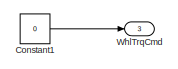
[diagram: root canvas - part 1/3, top right region]
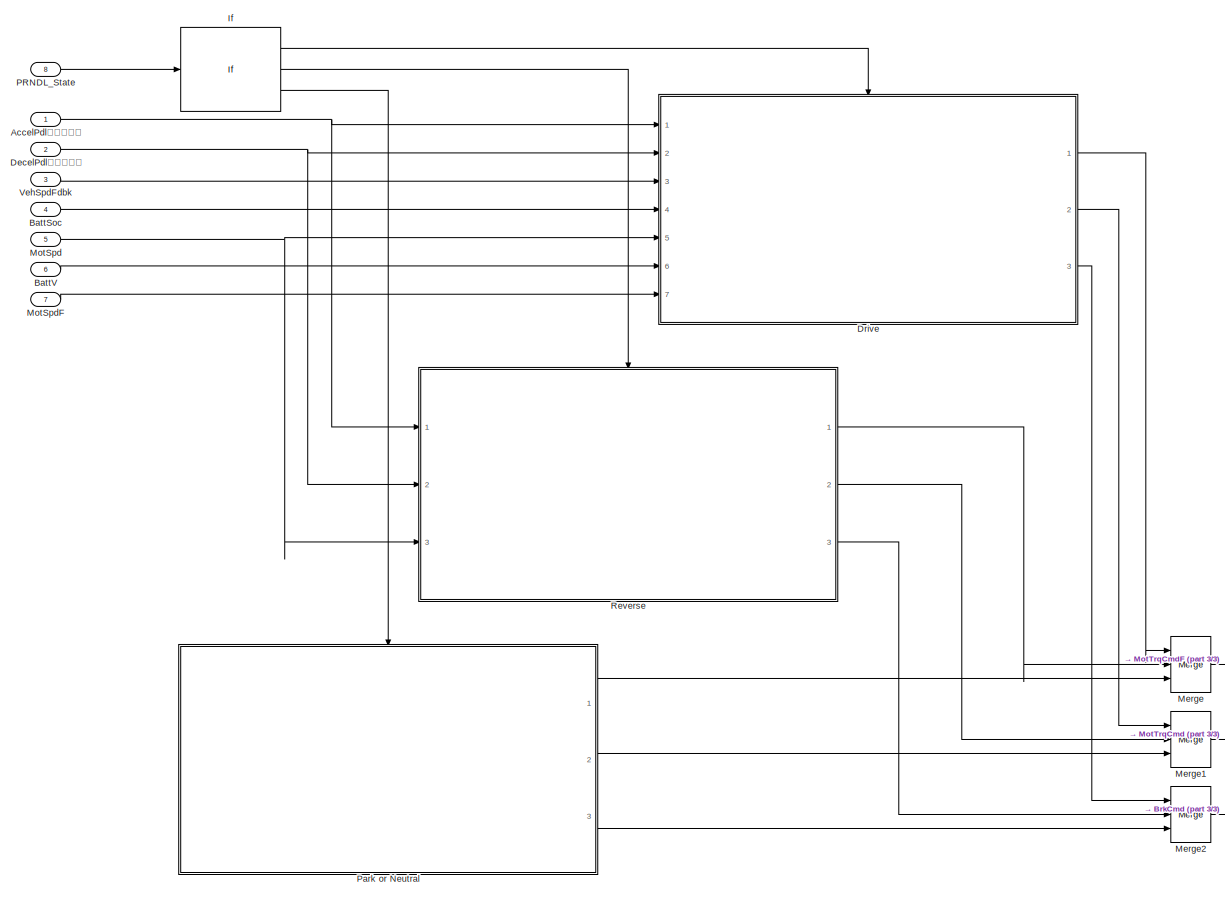
[diagram: root canvas - part 2/3, most of the canvas]
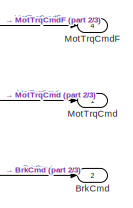
[diagram: root canvas - part 3/3, bottom right region]
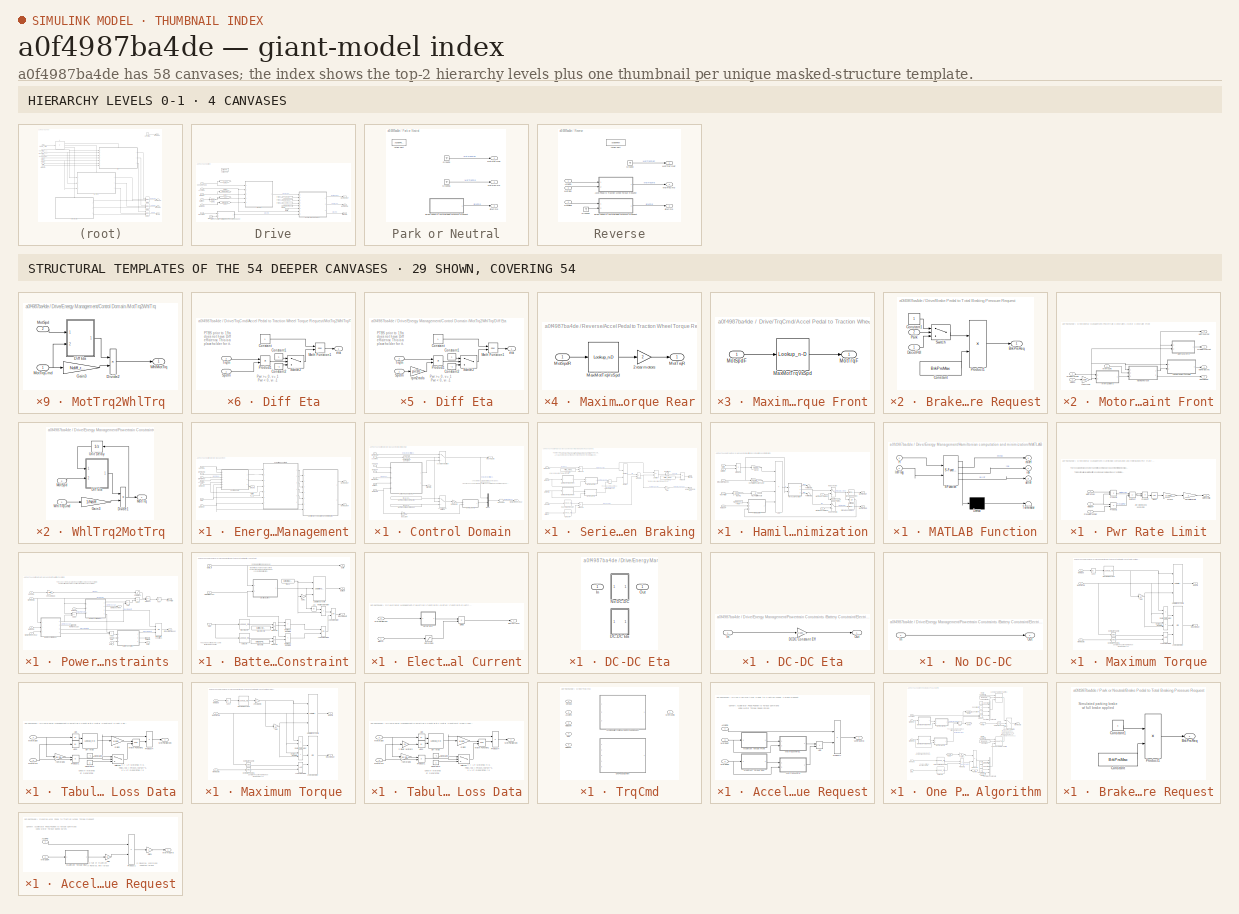
[diagram: thumbnail index - top-2 hierarchy levels (4 canvases) + 29 structural-template representatives of the remaining 54 canvases]
MODEL slx_a0f4987ba4de
KIND model
CONFIG AbsTol = auto
CONFIG EnableMultiTasking = on
CONFIG FixedStep = 0.01
CONFIG MaxStep = auto
CONFIG MinStep = auto
CONFIG RelTol = 1e-3
CONFIG SampleTimeConstraint = Unconstrained
CONFIG Solver = FixedStepDiscrete
CONFIG SolverName = FixedStepDiscrete
CONFIG StartTime = 0
CONFIG StopTime = inf
BLOCK [Inport] AccelPdl（加速器）
  OutDataTypeStr = double
  PortDimensions = 1
  SampleTime = [0.01,0]
  SamplingMode = Sample based
  SignalType = real
BLOCK [Inport] BattSoc
  OutDataTypeStr = double
  Port = 4
  PortDimensions = 1
  SampleTime = [0.01,0]
  SamplingMode = Sample based
  SignalType = real
BLOCK [Inport] BattV
  OutDataTypeStr = double
  Port = 6
  PortDimensions = 1
  SampleTime = [0.01,0]
  SamplingMode = Sample based
  SignalType = real
BLOCK [Outport] BrkCmd
  OutDataTypeStr = double
  Port = 2
  PortDimensions = 1
  SampleTime = [0.01,0]
  SamplingMode = Sample based
  SignalType = real
  VectorParamsAs1DForOutWhenUnconnected = off
BLOCK [Constant] Constant1
  SampleTime = 0.01
  Value = 0
BLOCK [Inport] DecelPdl（减速器）
  OutDataTypeStr = double
  Port = 2
  PortDimensions = 1
  SampleTime = [0.01,0]
  SamplingMode = Sample based
  SignalType = real
BLOCK [SubSystem] Drive
  Ports = [7, 3, 0, 0, 0, 0, 0, 1]
  RequestExecContextInheritance = off
  TreatAsAtomicUnit = on
BLOCK [Inport] Drive/AccelPdl
  OutDataTypeStr = double
  PortDimensions = 1
  SampleTime = [0.01,0]
  SamplingMode = Sample based
  SignalType = real
BLOCK [ActionPort] Drive/Action Port
  ActionPortLabel = if(u1 >= 1)
  InitializeStates = reset
BLOCK [Inport] Drive/BattSoc
  OutDataTypeStr = double
  Port = 4
  PortDimensions = 1
  SampleTime = [0.01,0]
  SamplingMode = Sample based
  SignalType = real
BLOCK [Inport] Drive/BattV
  OutDataTypeStr = double
  Port = 6
  PortDimensions = 1
  SampleTime = [0.01,0]
  SamplingMode = Sample based
  SignalType = real
BLOCK [SubSystem] Drive/Brake Pedal to Total Braking Pressure Request
  Ports = [2, 1]
  RequestExecContextInheritance = off
BLOCK [Outport] Drive/Brake Pedal to Total Braking Pressure Request/BrkPrsReq
  VectorParamsAs1DForOutWhenUnconnected = off
BLOCK [Constant] Drive/Brake Pedal to Total Braking Pressure Request/Constant
  Value = BrkPrsMax
BLOCK [Constant] Drive/Brake Pedal to Total Braking Pressure Request/Constant1
BLOCK [Inport] Drive/Brake Pedal to Total Braking Pressure Request/DecelPdl
BLOCK [Inport] Drive/Brake Pedal to Total Braking Pressure Request/Park
  Port = 2
BLOCK [Product] Drive/Brake Pedal to Total Braking Pressure Request/Product1
  Ports = [2, 1]
BLOCK [Switch] Drive/Brake Pedal to Total Braking Pressure Request/Switch
  Criteria = u2 > Threshold
  InputSameDT = off
  SaturateOnIntegerOverflow = off
BLOCK [Outport] Drive/BrkCmd
  OutDataTypeStr = double
  Port = 3
  PortDimensions = 1
  SampleTime = [0.01,0]
  SamplingMode = Sample based
  SignalType = real
  VectorParamsAs1DForOutWhenUnconnected = off
BLOCK [Inport] Drive/DecelPdl
  OutDataTypeStr = double
  Port = 2
  PortDimensions = 1
  SampleTime = [0.01,0]
  SamplingMode = Sample based
  SignalType = real
BLOCK [SubSystem] Drive/Energy Management
  InitFcn = [~] =  autosharedeval('1');
  Ports = [8, 3]
  RequestExecContextInheritance = off
  TreatAsAtomicUnit = on
BLOCK [Inport] Drive/Energy Management/AccelPdl
  Port = 7
BLOCK [Inport] Drive/Energy Management/BattV
  Port = 6
BLOCK [Outport] Drive/Energy Management/BrkCmd
  Port = 3
  VectorParamsAs1DForOutWhenUnconnected = off
BLOCK [Inport] Drive/Energy Management/BrkPrsReq 
  Port = 8
BLOCK [SubSystem] Drive/Energy Management/Control Domain 
  InitFcn = [~] =  autosharedeval('1');
  Ports = [7, 3]
  RequestExecContextInheritance = off
BLOCK [Gain] Drive/Energy Management/Control Domain /2 rear motors
  Gain = 2
BLOCK [Switch] Drive/Energy Management/Control Domain /Accel Decel Switch
  Criteria = u2 > Threshold
  InputSameDT = off
  SaturateOnIntegerOverflow = off
BLOCK [Switch] Drive/Energy Management/Control Domain /Accel Decel Switch1
  Criteria = u2 > Threshold
  InputSameDT = off
  SaturateOnIntegerOverflow = off
BLOCK [Inport] Drive/Energy Management/Control Domain /AccelPdl
  Port = 4
BLOCK [Inport] Drive/Energy Management/Control Domain /BattSoc
  Port = 6
BLOCK [Outport] Drive/Energy Management/Control Domain /BrkCmd
  Port = 3
  VectorParamsAs1DForOutWhenUnconnected = off
BLOCK [Inport] Drive/Energy Management/Control Domain /BrkPrsReq 
  Port = 3
BLOCK [Reference] Drive/Energy Management/Control Domain /Compare To Constant  REF=simulink/Logic and Bit
Operations/Compare
To Constant
  Ports = [1, 1]
  SourceBlock = simulink/Logic and Bit\nOperations/Compare\nTo Constant
  SourceProductBaseCode = SL
  SourceType = Compare To Constant
BLOCK [Inport] Drive/Energy Management/Control Domain /MotSpdF
  Port = 7
BLOCK [Inport] Drive/Energy Management/Control Domain /MotSpdR
  Port = 5
BLOCK [Constant] Drive/Energy Management/Control Domain /MotTrq Control Vector Regen
  Value = linspace( -max(T_t_EV_rear), 0, Ngrid)
BLOCK [Constant] Drive/Energy Management/Control Domain /MotTrq Control Vector Traction
  Value = linspace(0, max(T_t_EV_rear), Ngrid)
BLOCK [SubSystem] Drive/Energy Management/Control Domain /MotTrq2WhlTrq
  Ports = [2, 1]
  RequestExecContextInheritance = off
  VariantControl = 3
BLOCK [SubSystem] Drive/Energy Management/Control Domain /MotTrq2WhlTrq/Diff Eta
  Ports = [2, 1]
  RequestExecContextInheritance = off
BLOCK [Constant] Drive/Energy Management/Control Domain /MotTrq2WhlTrq/Diff Eta/Constant
BLOCK [Constant] Drive/Energy Management/Control Domain /MotTrq2WhlTrq/Diff Eta/Constant1
  SampleTime = -1
BLOCK [Constant] Drive/Energy Management/Control Domain /MotTrq2WhlTrq/Diff Eta/Constant2
  SampleTime = -1
  Value = -1
BLOCK [Math] Drive/Energy Management/Control Domain /MotTrq2WhlTrq/Diff Eta/Math Function1
  Operator = pow
  OutputSignalType = real
  Ports = [2, 1]
  SignedPower = on
BLOCK [Product] Drive/Energy Management/Control Domain /MotTrq2WhlTrq/Diff Eta/Product1
  Ports = [2, 1]
BLOCK [Inport] Drive/Energy Management/Control Domain /MotTrq2WhlTrq/Diff Eta/SpdIn
BLOCK [Switch] Drive/Energy Management/Control Domain /MotTrq2WhlTrq/Diff Eta/Switch2
  InputSameDT = off
  SaturateOnIntegerOverflow = off
BLOCK [Inport] Drive/Energy Management/Control Domain /MotTrq2WhlTrq/Diff Eta/TrqIn
  Port = 2
BLOCK [Outport] Drive/Energy Management/Control Domain /MotTrq2WhlTrq/Diff Eta/eta
  VectorParamsAs1DForOutWhenUnconnected = off
BLOCK [Gain] Drive/Energy Management/Control Domain /MotTrq2WhlTrq/Diff Eta/rpm2rads
  Gain = pi/30
BLOCK [Product] Drive/Energy Management/Control Domain /MotTrq2WhlTrq/Divide2
  Inputs = **
  Ports = [2, 1]
BLOCK [Gain] Drive/Energy Management/Control Domain /MotTrq2WhlTrq/Gain3
  Gain = Ndiff_rear
BLOCK [Inport] Drive/Energy Management/Control Domain /MotTrq2WhlTrq/MotSpd
  Port = 2
BLOCK [Inport] Drive/Energy Management/Control Domain /MotTrq2WhlTrq/MotTrqCmd
BLOCK [Outport] Drive/Energy Management/Control Domain /MotTrq2WhlTrq/WhlMotTrq
  VectorParamsAs1DForOutWhenUnconnected = off
BLOCK [Mux] Drive/Energy Management/Control Domain /Mux1
  DisplayOption = bar
  Inputs = 2
  Ports = [2, 1]
BLOCK [Reshape] Drive/Energy Management/Control Domain /Reshape
  Ports = [1, 1]
BLOCK [SubSystem] Drive/Energy Management/Control Domain /Series Regen Braking
  InitFcn = %[~]=autosharedicon('autolibutils',gcb,0);
  Ports = [5, 2]
  RequestExecContextInheritance = off
  VariantControl = Variant
BLOCK [Outport] Drive/Energy Management/Control Domain /Series Regen Braking/ BrkCmd
  Port = 2
  VectorParamsAs1DForOutWhenUnconnected = off
BLOCK [Outport] Drive/Energy Management/Control Domain /Series Regen Braking/ WhlMotTrqCmdRegen
  VectorParamsAs1DForOutWhenUnconnected = off
BLOCK [Sum] Drive/Energy Management/Control Domain /Series Regen Braking/Add
  IconShape = rectangular
  Ports = [2, 1]
BLOCK [Inport] Drive/Energy Management/Control Domain /Series Regen Braking/BattSoc
  Port = 4
BLOCK [Inport] Drive/Energy Management/Control Domain /Series Regen Braking/BrkPrsReq 
  Port = 3
BLOCK [Lookup_n-D] Drive/Energy Management/Control Domain /Series Regen Braking/ChrgLmt
  BeginIndexSearchUsingPreviousIndexResult = on
  BreakpointsForDimension1 = SOC_bpt
  ExtrapMethod = Clip
  InternalRulePriority = Speed
  NumberOfTableDimensions = 1
  Ports = [1, 1]
  RndMeth = Simplest
  Table = ChrgLmt_bpt
  UseLastTableValue = on
BLOCK [Constant] Drive/Energy Management/Control Domain /Series Regen Braking/Constant
  Value = 4*(mu_kinetic*pi*disk_abore^2*Rm*num_pads/4)
BLOCK [Constant] Drive/Energy Management/Control Domain /Series Regen Braking/Constant1
  Value = 4*(mu_kinetic*pi*disk_abore^2*Rm*num_pads/4)
BLOCK [Gain] Drive/Energy Management/Control Domain /Series Regen Braking/Gain
  Gain = -1
BLOCK [SubSystem] Drive/Energy Management/Control Domain /Series Regen Braking/Maximum Torque Front
  Ports = [1, 1]
  RequestExecContextInheritance = off
BLOCK [Lookup_n-D] Drive/Energy Management/Control Domain /Series Regen Braking/Maximum Torque Front/MaxMotTrqVsSpd
  BeginIndexSearchUsingPreviousIndexResult = on
  BreakpointsForDimension1 = w_eff_bp_EV_front
  ExtrapMethod = Clip
  InternalRulePriority = Speed
  NumberOfTableDimensions = 1
  OutDataTypeStr = Inherit: Inherit from 'Table data'
  Ports = [1, 1]
  RndMeth = Simplest
  Table = T_t_EV_front
  UseLastTableValue = on
BLOCK [Inport] Drive/Energy Management/Control Domain /Series Regen Braking/Maximum Torque Front/MotSpdF
BLOCK [Outport] Drive/Energy Management/Control Domain /Series Regen Braking/Maximum Torque Front/MotTrqF
  VectorParamsAs1DForOutWhenUnconnected = off
BLOCK [SubSystem] Drive/Energy Management/Control Domain /Series Regen Braking/Maximum Torque Rear
  Ports = [1, 1]
  RequestExecContextInheritance = off
BLOCK [Gain] Drive/Energy Management/Control Domain /Series Regen Braking/Maximum Torque Rear/2 rear motors
  Gain = 2
BLOCK [Lookup_n-D] Drive/Energy Management/Control Domain /Series Regen Braking/Maximum Torque Rear/MaxMotTrqVsSpd
  BeginIndexSearchUsingPreviousIndexResult = on
  BreakpointsForDimension1 = w_eff_bp_EV_rear
  ExtrapMethod = Clip
  InternalRulePriority = Speed
  NumberOfTableDimensions = 1
  OutDataTypeStr = Inherit: Inherit from 'Table data'
  Ports = [1, 1]
  RndMeth = Simplest
  Table = T_t_EV_rear
  UseLastTableValue = on
BLOCK [Inport] Drive/Energy Management/Control Domain /Series Regen Braking/Maximum Torque Rear/MotSpdR
BLOCK [Outport] Drive/Energy Management/Control Domain /Series Regen Braking/Maximum Torque Rear/MotTrqR
  VectorParamsAs1DForOutWhenUnconnected = off
BLOCK [MinMax] Drive/Energy Management/Control Domain /Series Regen Braking/MinMax
  Inputs = 2
  Ports = [2, 1]
BLOCK [Inport] Drive/Energy Management/Control Domain /Series Regen Braking/MotSpdF
  Port = 2
BLOCK [Inport] Drive/Energy Management/Control Domain /Series Regen Braking/MotSpdR
  Port = 5
BLOCK [SubSystem] Drive/Energy Management/Control Domain /Series Regen Braking/MotTrq2WhlTrq
  Ports = [2, 1]
  RequestExecContextInheritance = off
  VariantControl = 3
BLOCK [SubSystem] Drive/Energy Management/Control Domain /Series Regen Braking/MotTrq2WhlTrq/Diff Eta
  Ports = [2, 1]
  RequestExecContextInheritance = off
BLOCK [Constant] Drive/Energy Management/Control Domain /Series Regen Braking/MotTrq2WhlTrq/Diff Eta/Constant
BLOCK [Constant] Drive/Energy Management/Control Domain /Series Regen Braking/MotTrq2WhlTrq/Diff Eta/Constant1
  SampleTime = -1
BLOCK [Constant] Drive/Energy Management/Control Domain /Series Regen Braking/MotTrq2WhlTrq/Diff Eta/Constant2
  SampleTime = -1
  Value = -1
BLOCK [Math] Drive/Energy Management/Control Domain /Series Regen Braking/MotTrq2WhlTrq/Diff Eta/Math Function1
  Operator = pow
  OutputSignalType = real
  Ports = [2, 1]
  SignedPower = on
BLOCK [Product] Drive/Energy Management/Control Domain /Series Regen Braking/MotTrq2WhlTrq/Diff Eta/Product1
  Ports = [2, 1]
BLOCK [Inport] Drive/Energy Management/Control Domain /Series Regen Braking/MotTrq2WhlTrq/Diff Eta/SpdIn
BLOCK [Switch] Drive/Energy Management/Control Domain /Series Regen Braking/MotTrq2WhlTrq/Diff Eta/Switch2
  InputSameDT = off
  SaturateOnIntegerOverflow = off
BLOCK [Inport] Drive/Energy Management/Control Domain /Series Regen Braking/MotTrq2WhlTrq/Diff Eta/TrqIn
  Port = 2
BLOCK [Outport] Drive/Energy Management/Control Domain /Series Regen Braking/MotTrq2WhlTrq/Diff Eta/eta
  VectorParamsAs1DForOutWhenUnconnected = off
BLOCK [Product] Drive/Energy Management/Control Domain /Series Regen Braking/MotTrq2WhlTrq/Divide2
  Inputs = **
  Ports = [2, 1]
BLOCK [Gain] Drive/Energy Management/Control Domain /Series Regen Braking/MotTrq2WhlTrq/Gain3
  Gain = Ndiff_rear
BLOCK [Inport] Drive/Energy Management/Control Domain /Series Regen Braking/MotTrq2WhlTrq/MotSpd
  Port = 2
BLOCK [Inport] Drive/Energy Management/Control Domain /Series Regen Braking/MotTrq2WhlTrq/MotTrqCmd
BLOCK [Outport] Drive/Energy Management/Control Domain /Series Regen Braking/MotTrq2WhlTrq/WhlMotTrq
  VectorParamsAs1DForOutWhenUnconnected = off
BLOCK [SubSystem] Drive/Energy Management/Control Domain /Series Regen Braking/MotTrq2WhlTrq1
  Ports = [2, 1]
  RequestExecContextInheritance = off
  VariantControl = 3
BLOCK [SubSystem] Drive/Energy Management/Control Domain /Series Regen Braking/MotTrq2WhlTrq1/Diff Eta
  Ports = [2, 1]
  RequestExecContextInheritance = off
BLOCK [Constant] Drive/Energy Management/Control Domain /Series Regen Braking/MotTrq2WhlTrq1/Diff Eta/Constant
BLOCK [Constant] Drive/Energy Management/Control Domain /Series Regen Braking/MotTrq2WhlTrq1/Diff Eta/Constant1
  SampleTime = -1
BLOCK [Constant] Drive/Energy Management/Control Domain /Series Regen Braking/MotTrq2WhlTrq1/Diff Eta/Constant2
  SampleTime = -1
  Value = -1
BLOCK [Math] Drive/Energy Management/Control Domain /Series Regen Braking/MotTrq2WhlTrq1/Diff Eta/Math Function1
  Operator = pow
  OutputSignalType = real
  Ports = [2, 1]
  SignedPower = on
BLOCK [Product] Drive/Energy Management/Control Domain /Series Regen Braking/MotTrq2WhlTrq1/Diff Eta/Product1
  Ports = [2, 1]
BLOCK [Inport] Drive/Energy Management/Control Domain /Series Regen Braking/MotTrq2WhlTrq1/Diff Eta/SpdIn
BLOCK [Switch] Drive/Energy Management/Control Domain /Series Regen Braking/MotTrq2WhlTrq1/Diff Eta/Switch2
  InputSameDT = off
  SaturateOnIntegerOverflow = off
BLOCK [Inport] Drive/Energy Management/Control Domain /Series Regen Braking/MotTrq2WhlTrq1/Diff Eta/TrqIn
  Port = 2
BLOCK [Outport] Drive/Energy Management/Control Domain /Series Regen Braking/MotTrq2WhlTrq1/Diff Eta/eta
  VectorParamsAs1DForOutWhenUnconnected = off
BLOCK [Product] Drive/Energy Management/Control Domain /Series Regen Braking/MotTrq2WhlTrq1/Divide2
  Inputs = **
  Ports = [2, 1]
BLOCK [Gain] Drive/Energy Management/Control Domain /Series Regen Braking/MotTrq2WhlTrq1/Gain3
  Gain = Ndiff_front
BLOCK [Inport] Drive/Energy Management/Control Domain /Series Regen Braking/MotTrq2WhlTrq1/MotSpd
  Port = 2
BLOCK [Inport] Drive/Energy Management/Control Domain /Series Regen Braking/MotTrq2WhlTrq1/MotTrqCmd
BLOCK [Outport] Drive/Energy Management/Control Domain /Series Regen Braking/MotTrq2WhlTrq1/WhlMotTrq
  VectorParamsAs1DForOutWhenUnconnected = off
BLOCK [Saturate] Drive/Energy Management/Control Domain /Series Regen Braking/Negative 5
  LowerLimit = 0
  UpperLimit = inf
BLOCK [Product] Drive/Energy Management/Control Domain /Series Regen Braking/Product1
  Ports = [2, 1]
BLOCK [Product] Drive/Energy Management/Control Domain /Series Regen Braking/Product2
  Ports = [2, 1]
BLOCK [Product] Drive/Energy Management/Control Domain /Series Regen Braking/Product3
  Ports = [2, 1]
BLOCK [Product] Drive/Energy Management/Control Domain /Series Regen Braking/Product4
  Inputs = */
  Ports = [2, 1]
BLOCK [Lookup_n-D] Drive/Energy Management/Control Domain /Series Regen Braking/RegenBrakingCutoff
  BeginIndexSearchUsingPreviousIndexResult = on
  BreakpointsForDimension1 = RegenBrkSpd_bpt
  ExtrapMethod = Clip
  InternalRulePriority = Speed
  NumberOfTableDimensions = 1
  Ports = [1, 1]
  RndMeth = Simplest
  Table = RegenBrkCutOff
  UseLastTableValue = on
BLOCK [Sum] Drive/Energy Management/Control Domain /Series Regen Braking/Subtract
  IconShape = rectangular
  Inputs = +-
  Ports = [2, 1]
BLOCK [Inport] Drive/Energy Management/Control Domain /Series Regen Braking/VehSpd
BLOCK [Inport] Drive/Energy Management/Control Domain /VehSpd
BLOCK [Outport] Drive/Energy Management/Control Domain /WHLTQCMD
  VectorParamsAs1DForOutWhenUnconnected = off
BLOCK [Outport] Drive/Energy Management/Control Domain /WhlMotTrqVecRear
  Port = 2
  VectorParamsAs1DForOutWhenUnconnected = off
BLOCK [Inport] Drive/Energy Management/Control Domain /WhlTrqCmd
  Port = 2
BLOCK [Gain] Drive/Energy Management/Control Domain /rads2rpm
  Gain = 30/pi
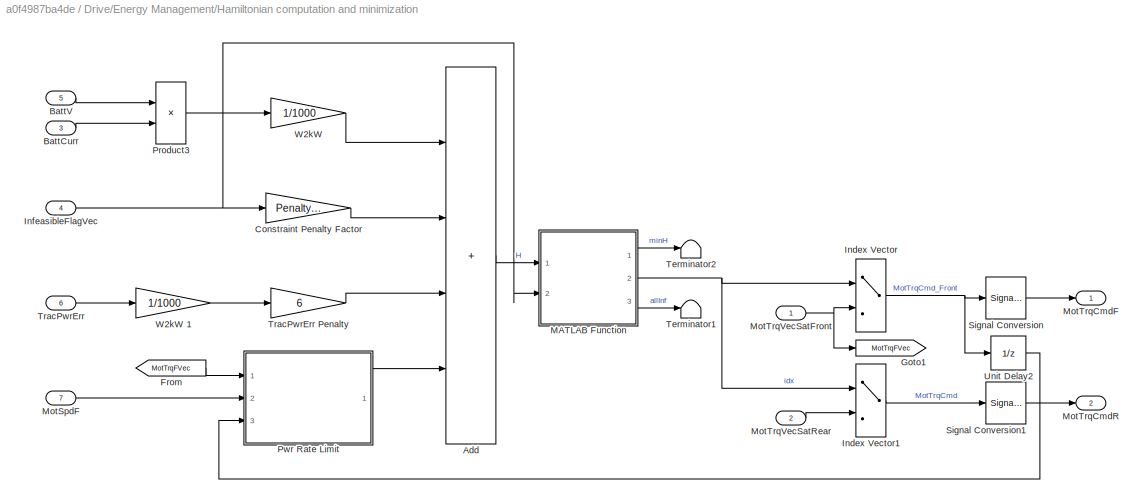
BLOCK [SubSystem] Drive/Energy Management/Hamiltonian computation and minimization
  InitFcn = [~] =  autosharedeval('1');
  Ports = [7, 2]
  RequestExecContextInheritance = off
BLOCK [Sum] Drive/Energy Management/Hamiltonian computation and minimization/Add
  IconShape = rectangular
  Inputs = ++++
  Ports = [4, 1]
BLOCK [Inport] Drive/Energy Management/Hamiltonian computation and minimization/BattCurr
  Port = 3
BLOCK [Inport] Drive/Energy Management/Hamiltonian computation and minimization/BattV
  Port = 5
BLOCK [Gain] Drive/Energy Management/Hamiltonian computation and minimization/Constraint Penalty Factor
  Gain = PenaltyFctr
BLOCK [From] Drive/Energy Management/Hamiltonian computation and minimization/From
  GotoTag = MotTrqFVec
BLOCK [Goto] Drive/Energy Management/Hamiltonian computation and minimization/Goto1
  GotoTag = MotTrqFVec
BLOCK [MultiPortSwitch] Drive/Energy Management/Hamiltonian computation and minimization/Index Vector
  InputSameDT = off
  Inputs = 1
  Ports = [2, 1]
  SaturateOnIntegerOverflow = off
BLOCK [MultiPortSwitch] Drive/Energy Management/Hamiltonian computation and minimization/Index Vector1
  InputSameDT = off
  Inputs = 1
  Ports = [2, 1]
  SaturateOnIntegerOverflow = off
BLOCK [Inport] Drive/Energy Management/Hamiltonian computation and minimization/InfeasibleFlagVec
  Port = 4
BLOCK [SubSystem] Drive/Energy Management/Hamiltonian computation and minimization/MATLAB Function
  ErrorFcn = Stateflow.Translate.translate
  InitFcn = [~] =  autosharedeval('1');
  PermitHierarchicalResolution = ExplicitOnly
  Ports = [2, 3]
  RequestExecContextInheritance = off
  SFBlockType = MATLAB Function
  TreatAsAtomicUnit = on
BLOCK [Demux] Drive/Energy Management/Hamiltonian computation and minimization/MATLAB Function/ Demux 
  Outputs = 1
  Ports = [1, 1]
BLOCK [S-Function] Drive/Energy Management/Hamiltonian computation and minimization/MATLAB Function/ SFunction 
  EnableBusSupport = on
  FunctionName = sf_sfun
  PortCounts = [2 4]
  Ports = [2, 4]
  SFcnIsStateOwnerBlock = off
  SFunctionDeploymentMode = off
  Tag = Stateflow S-Function 1
BLOCK [Terminator] Drive/Energy Management/Hamiltonian computation and minimization/MATLAB Function/ Terminator 
BLOCK [Inport] Drive/Energy Management/Hamiltonian computation and minimization/MATLAB Function/H
BLOCK [Inport] Drive/Energy Management/Hamiltonian computation and minimization/MATLAB Function/InfFlag
  Port = 2
BLOCK [Outport] Drive/Energy Management/Hamiltonian computation and minimization/MATLAB Function/allInf
  Port = 3
BLOCK [Outport] Drive/Energy Management/Hamiltonian computation and minimization/MATLAB Function/idx
  Port = 2
  VectorParamsAs1DForOutWhenUnconnected = off
BLOCK [Outport] Drive/Energy Management/Hamiltonian computation and minimization/MATLAB Function/minH
  VectorParamsAs1DForOutWhenUnconnected = off
BLOCK [Inport] Drive/Energy Management/Hamiltonian computation and minimization/MotSpdF
  Port = 7
BLOCK [Outport] Drive/Energy Management/Hamiltonian computation and minimization/MotTrqCmdF
  VectorParamsAs1DForOutWhenUnconnected = off
BLOCK [Outport] Drive/Energy Management/Hamiltonian computation and minimization/MotTrqCmdR
  Port = 2
  VectorParamsAs1DForOutWhenUnconnected = off
BLOCK [Inport] Drive/Energy Management/Hamiltonian computation and minimization/MotTrqVecSatFront
BLOCK [Inport] Drive/Energy Management/Hamiltonian computation and minimization/MotTrqVecSatRear
  Port = 2
BLOCK [Product] Drive/Energy Management/Hamiltonian computation and minimization/Product3
  Ports = [2, 1]
BLOCK [SubSystem] Drive/Energy Management/Hamiltonian computation and minimization/Pwr Rate Limit
  InitFcn = [~] =  autosharedeval('1');
  Ports = [3, 1]
  RequestExecContextInheritance = off
BLOCK [Outport] Drive/Energy Management/Hamiltonian computation and minimization/Pwr Rate Limit/MotPwrDelta
  VectorParamsAs1DForOutWhenUnconnected = off
BLOCK [Inport] Drive/Energy Management/Hamiltonian computation and minimization/Pwr Rate Limit/MotSpdF
  Port = 2
BLOCK [Inport] Drive/Energy Management/Hamiltonian computation and minimization/Pwr Rate Limit/MotTrqFVec
BLOCK [Inport] Drive/Energy Management/Hamiltonian computation and minimization/Pwr Rate Limit/PrevMotTrqCmdF
  Port = 3
BLOCK [Product] Drive/Energy Management/Hamiltonian computation and minimization/Pwr Rate Limit/Product1
  Ports = [2, 1]
BLOCK [Product] Drive/Energy Management/Hamiltonian computation and minimization/Pwr Rate Limit/Product6
  Ports = [2, 1]
BLOCK [Product] Drive/Energy Management/Hamiltonian computation and minimization/Pwr Rate Limit/Product7
  Ports = [2, 1]
BLOCK [Gain] Drive/Energy Management/Hamiltonian computation and minimization/Pwr Rate Limit/PwrDelta Penalty
  Gain = 2
BLOCK [Sqrt] Drive/Energy Management/Hamiltonian computation and minimization/Pwr Rate Limit/Sqrt1
BLOCK [Sum] Drive/Energy Management/Hamiltonian computation and minimization/Pwr Rate Limit/Subtract
  IconShape = rectangular
  Inputs = +-
  Ports = [2, 1]
BLOCK [Gain] Drive/Energy Management/Hamiltonian computation and minimization/Pwr Rate Limit/W2kW
  Gain = 1/1000
BLOCK [SignalConversion] Drive/Energy Management/Hamiltonian computation and minimization/Signal Conversion
  OverrideOpt = off
BLOCK [SignalConversion] Drive/Energy Management/Hamiltonian computation and minimization/Signal Conversion1
  OverrideOpt = off
BLOCK [Terminator] Drive/Energy Management/Hamiltonian computation and minimization/Terminator1
BLOCK [Terminator] Drive/Energy Management/Hamiltonian computation and minimization/Terminator2
BLOCK [Inport] Drive/Energy Management/Hamiltonian computation and minimization/TracPwrErr
  Port = 6
BLOCK [Gain] Drive/Energy Management/Hamiltonian computation and minimization/TracPwrErr Penalty
  Gain = 6
BLOCK [UnitDelay] Drive/Energy Management/Hamiltonian computation and minimization/Unit Delay2
  HasFrameUpgradeWarning = on
  SampleTime = -1
BLOCK [Gain] Drive/Energy Management/Hamiltonian computation and minimization/W2kW 
  Gain = 1/1000
BLOCK [Gain] Drive/Energy Management/Hamiltonian computation and minimization/W2kW 1
  Gain = 1/1000
BLOCK [Inport] Drive/Energy Management/MotSpdF
  Port = 5
BLOCK [Inport] Drive/Energy Management/MotSpdR
  Port = 3
BLOCK [Outport] Drive/Energy Management/MotTrqCmdF
  InitialOutput = 0
  VectorParamsAs1DForOutWhenUnconnected = off
BLOCK [Outport] Drive/Energy Management/MotTrqCmdR
  InitialOutput = 0
  Port = 2
  VectorParamsAs1DForOutWhenUnconnected = off
BLOCK [SubSystem] Drive/Energy Management/Powertrain Constraints 
  InitFcn = [~] =  autosharedeval('1');
  Ports = [7, 6]
  RequestExecContextInheritance = off
BLOCK [Abs] Drive/Energy Management/Powertrain Constraints /Abs
  SaturateOnIntegerOverflow = off
BLOCK [Sum] Drive/Energy Management/Powertrain Constraints /Add
  IconShape = rectangular
  Ports = [2, 1]
BLOCK [Sum] Drive/Energy Management/Powertrain Constraints /Add1
  IconShape = rectangular
  Inputs = +-
  Ports = [2, 1]
BLOCK [Sum] Drive/Energy Management/Powertrain Constraints /Add2
  IconShape = rectangular
  Ports = [2, 1]
BLOCK [Sum] Drive/Energy Management/Powertrain Constraints /Add3
  IconShape = rectangular
  Inputs = +-
  Ports = [2, 1]
BLOCK [Outport] Drive/Energy Management/Powertrain Constraints /BattCurr
  Port = 3
  VectorParamsAs1DForOutWhenUnconnected = off
BLOCK [Outport] Drive/Energy Management/Powertrain Constraints /BattV
  Port = 5
  VectorParamsAs1DForOutWhenUnconnected = off
BLOCK [Inport] Drive/Energy Management/Powertrain Constraints /BattV_in
  Port = 5
BLOCK [SubSystem] Drive/Energy Management/Powertrain Constraints /Battery Constraint
  InitFcn = [~] =  autosharedeval('1');
  Ports = [3, 3]
  RequestExecContextInheritance = off
BLOCK [Abs] Drive/Energy Management/Powertrain Constraints /Battery Constraint/Abs
  SaturateOnIntegerOverflow = off
BLOCK [Outport] Drive/Energy Management/Powertrain Constraints /Battery Constraint/BattCurr
  Port = 2
  VectorParamsAs1DForOutWhenUnconnected = off
BLOCK [Outport] Drive/Energy Management/Powertrain Constraints /Battery Constraint/BattV
  Port = 3
  VectorParamsAs1DForOutWhenUnconnected = off
BLOCK [Inport] Drive/Energy Management/Powertrain Constraints /Battery Constraint/BattV_in
  Port = 3
BLOCK [Lookup_n-D] Drive/Energy Management/Powertrain Constraints /Battery Constraint/ChrgLmt
  BeginIndexSearchUsingPreviousIndexResult = on
  BreakpointsForDimension1 = SOC_bpt
  ExtrapMethod = Clip
  InternalRulePriority = Speed
  NumberOfTableDimensions = 1
  Ports = [1, 1]
  RndMeth = Simplest
  Table = ChrgLmt_bpt
  UseLastTableValue = on
BLOCK [Lookup_n-D] Drive/Energy Management/Powertrain Constraints /Battery Constraint/DischrgLmt
  BeginIndexSearchUsingPreviousIndexResult = on
  BreakpointsForDimension1 = SOC_bpt
  ExtrapMethod = Clip
  InternalRulePriority = Speed
  NumberOfTableDimensions = 1
  Ports = [1, 1]
  RndMeth = Simplest
  Table = DischrgLmt_bpt
  UseLastTableValue = on
BLOCK [SubSystem] Drive/Energy Management/Powertrain Constraints /Battery Constraint/Electrical Current
  Ports = [2, 1]
  RequestExecContextInheritance = off
BLOCK [Inport] Drive/Energy Management/Powertrain Constraints /Battery Constraint/Electrical Current/BattV
BLOCK [Outport] Drive/Energy Management/Powertrain Constraints /Battery Constraint/Electrical Current/BatteryAmp
  VectorParamsAs1DForOutWhenUnconnected = off
BLOCK [SubSystem] Drive/Energy Management/Powertrain Constraints /Battery Constraint/Electrical Current/DC-DC Eta
  LabelModeActiveChoice = 0
  Ports = [1, 1]
  RequestExecContextInheritance = off
  Variant = on
  VariantControl = Variant1
  VariantControlMode = Label
BLOCK [SubSystem] Drive/Energy Management/Powertrain Constraints /Battery Constraint/Electrical Current/DC-DC Eta/DC-DC Eta
  Ports = [1, 1]
  RequestExecContextInheritance = off
  VariantControl = 1
BLOCK [Gain] Drive/Energy Management/Powertrain Constraints /Battery Constraint/Electrical Current/DC-DC Eta/DC-DC Eta/DCDC Constant Eff
  Gain = 1+(100-eff)/100
BLOCK [Inport] Drive/Energy Management/Powertrain Constraints /Battery Constraint/Electrical Current/DC-DC Eta/DC-DC Eta/In
BLOCK [Outport] Drive/Energy Management/Powertrain Constraints /Battery Constraint/Electrical Current/DC-DC Eta/DC-DC Eta/Out
  VectorParamsAs1DForOutWhenUnconnected = off
BLOCK [Inport] Drive/Energy Management/Powertrain Constraints /Battery Constraint/Electrical Current/DC-DC Eta/In
BLOCK [SubSystem] Drive/Energy Management/Powertrain Constraints /Battery Constraint/Electrical Current/DC-DC Eta/No DC-DC
  Ports = [1, 1]
  RequestExecContextInheritance = off
  VariantControl = 0
BLOCK [Inport] Drive/Energy Management/Powertrain Constraints /Battery Constraint/Electrical Current/DC-DC Eta/No DC-DC/In
BLOCK [Outport] Drive/Energy Management/Powertrain Constraints /Battery Constraint/Electrical Current/DC-DC Eta/No DC-DC/Out
  VectorParamsAs1DForOutWhenUnconnected = off
BLOCK [Outport] Drive/Energy Management/Powertrain Constraints /Battery Constraint/Electrical Current/DC-DC Eta/Out
  VectorParamsAs1DForOutWhenUnconnected = off
BLOCK [Product] Drive/Energy Management/Powertrain Constraints /Battery Constraint/Electrical Current/Divide
  Inputs = */
  Ports = [2, 1]
BLOCK [Inport] Drive/Energy Management/Powertrain Constraints /Battery Constraint/Electrical Current/MotPwrElecVec
  Port = 2
BLOCK [Saturate] Drive/Energy Management/Powertrain Constraints /Battery Constraint/Electrical Current/Saturation
  LowerLimit = 0.0001
  UpperLimit = Inf
BLOCK [Gain] Drive/Energy Management/Powertrain Constraints /Battery Constraint/Gain1
  Gain = -1
BLOCK [Constant] Drive/Energy Management/Powertrain Constraints /Battery Constraint/Imax3
  Value = BattCurrMax_EV
BLOCK [Outport] Drive/Energy Management/Powertrain Constraints /Battery Constraint/InfeasibleBatt
  VectorParamsAs1DForOutWhenUnconnected = off
BLOCK [Logic] Drive/Energy Management/Powertrain Constraints /Battery Constraint/Logical Operator
  AllPortsSameDT = off
  Operator = OR
  OutDataTypeStr = boolean
  Ports = [2, 1]
BLOCK [Logic] Drive/Energy Management/Powertrain Constraints /Battery Constraint/Logical Operator1
  AllPortsSameDT = off
  Operator = OR
  OutDataTypeStr = boolean
  Ports = [2, 1]
BLOCK [Constant] Drive/Energy Management/Powertrain Constraints /Battery Constraint/MaxChrg
  Value = BattChrgPwrMax_EV
BLOCK [Constant] Drive/Energy Management/Powertrain Constraints /Battery Constraint/MaxDischrg
  Value = BattDischrgPwrMax_EV
BLOCK [Inport] Drive/Energy Management/Powertrain Constraints /Battery Constraint/MotPwrElecVec
BLOCK [Product] Drive/Energy Management/Powertrain Constraints /Battery Constraint/Product5
  Ports = [2, 1]
BLOCK [Product] Drive/Energy Management/Powertrain Constraints /Battery Constraint/Product6
  Ports = [2, 1]
BLOCK [RelationalOperator] Drive/Energy Management/Powertrain Constraints /Battery Constraint/Relational Operator
  InputSameDT = off
  Operator = >
  OutDataTypeStr = boolean
  Ports = [2, 1]
BLOCK [RelationalOperator] Drive/Energy Management/Powertrain Constraints /Battery Constraint/Relational Operator1
  InputSameDT = off
  Operator = >
  OutDataTypeStr = boolean
  Ports = [2, 1]
BLOCK [RelationalOperator] Drive/Energy Management/Powertrain Constraints /Battery Constraint/Relational Operator2
  InputSameDT = off
  Operator = <
  OutDataTypeStr = boolean
  Ports = [2, 1]
BLOCK [Inport] Drive/Energy Management/Powertrain Constraints /Battery Constraint/SOC
  Port = 2
BLOCK [Reference] Drive/Energy Management/Powertrain Constraints /Battery Constraint/Saturation Dynamic  REF=simulink/Discontinuities/Saturation
Dynamic
  Ports = [3, 1]
  SourceBlock = simulink/Discontinuities/Saturation\nDynamic
  SourceProductBaseCode = SL
  SourceType = Saturation Dynamic
BLOCK [Logic] Drive/Energy Management/Powertrain Constraints /Infeasible conditions
  AllPortsSameDT = off
  Inputs = 3
  Operator = OR
  OutDataTypeStr = boolean
  Ports = [3, 1]
BLOCK [Outport] Drive/Energy Management/Powertrain Constraints /InfeasibleFlagVec
  Port = 4
  VectorParamsAs1DForOutWhenUnconnected = off
BLOCK [Inport] Drive/Energy Management/Powertrain Constraints /MotSpdF
  Port = 7
BLOCK [Inport] Drive/Energy Management/Powertrain Constraints /MotSpdR
  Port = 4
BLOCK [Outport] Drive/Energy Management/Powertrain Constraints /MotTrqVecFront
  VectorParamsAs1DForOutWhenUnconnected = off
BLOCK [Outport] Drive/Energy Management/Powertrain Constraints /MotTrqVecSat
  Port = 2
  VectorParamsAs1DForOutWhenUnconnected = off
BLOCK [SubSystem] Drive/Energy Management/Powertrain Constraints /Motor Constraint Front
  InitFcn = [~] =  autosharedeval('1');
  Ports = [3, 4]
  RequestExecContextInheritance = off
BLOCK [Outport] Drive/Energy Management/Powertrain Constraints /Motor Constraint Front/InfeasibleMot
  Port = 3
  VectorParamsAs1DForOutWhenUnconnected = off
BLOCK [SubSystem] Drive/Energy Management/Powertrain Constraints /Motor Constraint Front/Maximum Torque
  Ports = [3, 2]
  RequestExecContextInheritance = off
BLOCK [Abs] Drive/Energy Management/Powertrain Constraints /Motor Constraint Front/Maximum Torque/Abs1
  SaturateOnIntegerOverflow = off
BLOCK [Reference] Drive/Energy Management/Powertrain Constraints /Motor Constraint Front/Maximum Torque/Compare To Zero  REF=simulink/Logic and Bit
Operations/Compare
To Zero
  Ports = [1, 1]
  SourceBlock = simulink/Logic and Bit\nOperations/Compare\nTo Zero
  SourceProductBaseCode = SL
  SourceType = Compare To Zero
BLOCK [Reference] Drive/Energy Management/Powertrain Constraints /Motor Constraint Front/Maximum Torque/Compare To Zero1  REF=simulink/Logic and Bit
Operations/Compare
To Zero
  Ports = [1, 1]
  SourceBlock = simulink/Logic and Bit\nOperations/Compare\nTo Zero
  SourceProductBaseCode = SL
  SourceType = Compare To Zero
BLOCK [Gain] Drive/Energy Management/Powertrain Constraints /Motor Constraint Front/Maximum Torque/Gain
  Gain = -1
BLOCK [Outport] Drive/Energy Management/Powertrain Constraints /Motor Constraint Front/Maximum Torque/InfeasibleMot
  Port = 2
  VectorParamsAs1DForOutWhenUnconnected = off
BLOCK [Logic] Drive/Energy Management/Powertrain Constraints /Motor Constraint Front/Maximum Torque/Logical Operator
  AllPortsSameDT = off
  Inputs = 3
  Operator = OR
  OutDataTypeStr = boolean
  Ports = [3, 1]
BLOCK [Logic] Drive/Energy Management/Powertrain Constraints /Motor Constraint Front/Maximum Torque/Logical Operator1
  AllPortsSameDT = off
  OutDataTypeStr = boolean
  Ports = [2, 1]
BLOCK [Lookup_n-D] Drive/Energy Management/Powertrain Constraints /Motor Constraint Front/Maximum Torque/MaxMotTrqVsSpd
  BeginIndexSearchUsingPreviousIndexResult = on
  BreakpointsForDimension1 = w_eff_bp_EV_front
  ExtrapMethod = Clip
  InternalRulePriority = Speed
  NumberOfTableDimensions = 1
  OutDataTypeStr = Inherit: Inherit from 'Table data'
  Ports = [1, 1]
  RndMeth = Simplest
  Table = T_t_EV_front
  UseLastTableValue = on
BLOCK [Inport] Drive/Energy Management/Powertrain Constraints /Motor Constraint Front/Maximum Torque/MotorSpd
BLOCK [Outport] Drive/Energy Management/Powertrain Constraints /Motor Constraint Front/Maximum Torque/MotorTrq
  VectorParamsAs1DForOutWhenUnconnected = off
BLOCK [Inport] Drive/Energy Management/Powertrain Constraints /Motor Constraint Front/Maximum Torque/MotorTrqCmd
  Port = 3
BLOCK [RelationalOperator] Drive/Energy Management/Powertrain Constraints /Motor Constraint Front/Maximum Torque/Relational Operator
  InputSameDT = off
  Operator = <
  OutDataTypeStr = boolean
  Ports = [2, 1]
  RndMeth = Simplest
BLOCK [RelationalOperator] Drive/Energy Management/Powertrain Constraints /Motor Constraint Front/Maximum Torque/Relational Operator1
  InputSameDT = off
  Operator = <
  OutDataTypeStr = boolean
  Ports = [2, 1]
  RndMeth = Simplest
BLOCK [Reference] Drive/Energy Management/Powertrain Constraints /Motor Constraint Front/Maximum Torque/Saturation Dynamic  REF=simulink/Discontinuities/Saturation
Dynamic
  Ports = [3, 1]
  SourceBlock = simulink/Discontinuities/Saturation\nDynamic
  SourceProductBaseCode = SL
  SourceType = Saturation Dynamic
BLOCK [Inport] Drive/Energy Management/Powertrain Constraints /Motor Constraint Front/Maximum Torque/WhlTrqCmd
  Port = 2
BLOCK [Outport] Drive/Energy Management/Powertrain Constraints /Motor Constraint Front/MotPwrElecVec
  Port = 4
  VectorParamsAs1DForOutWhenUnconnected = off
BLOCK [Inport] Drive/Energy Management/Powertrain Constraints /Motor Constraint Front/MotSpd
  Port = 2
BLOCK [SubSystem] Drive/Energy Management/Powertrain Constraints /Motor Constraint Front/MotTrq2WhlTrq
  Ports = [2, 1]
  RequestExecContextInheritance = off
  VariantControl = 3
BLOCK [SubSystem] Drive/Energy Management/Powertrain Constraints /Motor Constraint Front/MotTrq2WhlTrq/Diff Eta
  Ports = [2, 1]
  RequestExecContextInheritance = off
BLOCK [Constant] Drive/Energy Management/Powertrain Constraints /Motor Constraint Front/MotTrq2WhlTrq/Diff Eta/Constant
BLOCK [Constant] Drive/Energy Management/Powertrain Constraints /Motor Constraint Front/MotTrq2WhlTrq/Diff Eta/Constant1
  SampleTime = -1
BLOCK [Constant] Drive/Energy Management/Powertrain Constraints /Motor Constraint Front/MotTrq2WhlTrq/Diff Eta/Constant2
  SampleTime = -1
  Value = -1
BLOCK [Math] Drive/Energy Management/Powertrain Constraints /Motor Constraint Front/MotTrq2WhlTrq/Diff Eta/Math Function1
  Operator = pow
  OutputSignalType = real
  Ports = [2, 1]
  SignedPower = on
BLOCK [Product] Drive/Energy Management/Powertrain Constraints /Motor Constraint Front/MotTrq2WhlTrq/Diff Eta/Product1
  Ports = [2, 1]
BLOCK [Inport] Drive/Energy Management/Powertrain Constraints /Motor Constraint Front/MotTrq2WhlTrq/Diff Eta/SpdIn
BLOCK [Switch] Drive/Energy Management/Powertrain Constraints /Motor Constraint Front/MotTrq2WhlTrq/Diff Eta/Switch2
  InputSameDT = off
  SaturateOnIntegerOverflow = off
BLOCK [Inport] Drive/Energy Management/Powertrain Constraints /Motor Constraint Front/MotTrq2WhlTrq/Diff Eta/TrqIn
  Port = 2
BLOCK [Outport] Drive/Energy Management/Powertrain Constraints /Motor Constraint Front/MotTrq2WhlTrq/Diff Eta/eta
  VectorParamsAs1DForOutWhenUnconnected = off
BLOCK [Gain] Drive/Energy Management/Powertrain Constraints /Motor Constraint Front/MotTrq2WhlTrq/Diff Eta/rpm2rads
  Gain = pi/30
BLOCK [Product] Drive/Energy Management/Powertrain Constraints /Motor Constraint Front/MotTrq2WhlTrq/Divide2
  Inputs = **
  Ports = [2, 1]
BLOCK [Gain] Drive/Energy Management/Powertrain Constraints /Motor Constraint Front/MotTrq2WhlTrq/Gain3
  Gain = Ndiff_front
BLOCK [Inport] Drive/Energy Management/Powertrain Constraints /Motor Constraint Front/MotTrq2WhlTrq/MotSpd
  Port = 2
BLOCK [Inport] Drive/Energy Management/Powertrain Constraints /Motor Constraint Front/MotTrq2WhlTrq/MotTrqCmd
BLOCK [Outport] Drive/Energy Management/Powertrain Constraints /Motor Constraint Front/MotTrq2WhlTrq/WhlMotTrq
  VectorParamsAs1DForOutWhenUnconnected = off
BLOCK [Outport] Drive/Energy Management/Powertrain Constraints /Motor Constraint Front/MotTrqVecSat
  Port = 2
  VectorParamsAs1DForOutWhenUnconnected = off
BLOCK [SubSystem] Drive/Energy Management/Powertrain Constraints /Motor Constraint Front/Tabular Power Loss Data
  Ports = [2, 1]
  RequestExecContextInheritance = off
BLOCK [Abs] Drive/Energy Management/Powertrain Constraints /Motor Constraint Front/Tabular Power Loss Data/Abs
  SaturateOnIntegerOverflow = off
BLOCK [Abs] Drive/Energy Management/Powertrain Constraints /Motor Constraint Front/Tabular Power Loss Data/Abs1
  SaturateOnIntegerOverflow = off
BLOCK [Constant] Drive/Energy Management/Powertrain Constraints /Motor Constraint Front/Tabular Power Loss Data/Constant1
  SampleTime = -1
  Value = -1
BLOCK [Constant] Drive/Energy Management/Powertrain Constraints /Motor Constraint Front/Tabular Power Loss Data/Constant2
  SampleTime = -1
BLOCK [Lookup_n-D] Drive/Energy Management/Powertrain Constraints /Motor Constraint Front/Tabular Power Loss Data/Eff Map
  BeginIndexSearchUsingPreviousIndexResult = on
  BreakpointsForDimension1 = w_eff_bp_EV_front
  BreakpointsForDimension2 = T_eff_bp_EV_front
  ExtrapMethod = Clip
  InternalRulePriority = Speed
  OutDataTypeStr = Inherit: Inherit from 'Table data'
  Ports = [2, 1]
  RndMeth = Simplest
  Table = efficiency_table_EV
  UseLastTableValue = on
BLOCK [Gain] Drive/Energy Management/Powertrain Constraints /Motor Constraint Front/Tabular Power Loss Data/Gain2
  Gain = 1/100
BLOCK [Math] Drive/Energy Management/Powertrain Constraints /Motor Constraint Front/Tabular Power Loss Data/Math Function1
  Operator = pow
  OutputSignalType = real
  Ports = [2, 1]
  SignedPower = on
BLOCK [Outport] Drive/Energy Management/Powertrain Constraints /Motor Constraint Front/Tabular Power Loss Data/MotPwrElecVec
  VectorParamsAs1DForOutWhenUnconnected = off
BLOCK [Inport] Drive/Energy Management/Powertrain Constraints /Motor Constraint Front/Tabular Power Loss Data/MotorSpd
BLOCK [Inport] Drive/Energy Management/Powertrain Constraints /Motor Constraint Front/Tabular Power Loss Data/MotorTrq
  Port = 2
BLOCK [Product] Drive/Energy Management/Powertrain Constraints /Motor Constraint Front/Tabular Power Loss Data/Product1
  Ports = [2, 1]
BLOCK [Product] Drive/Energy Management/Powertrain Constraints /Motor Constraint Front/Tabular Power Loss Data/Product4
  Ports = [2, 1]
BLOCK [Switch] Drive/Energy Management/Powertrain Constraints /Motor Constraint Front/Tabular Power Loss Data/Switch2
  InputSameDT = off
  SaturateOnIntegerOverflow = off
BLOCK [Gain] Drive/Energy Management/Powertrain Constraints /Motor Constraint Front/Tabular Power Loss Data/rpm2rads
  Gain = pi/30
BLOCK [Inport] Drive/Energy Management/Powertrain Constraints /Motor Constraint Front/WhlMotTrqFCmd
  Port = 3
BLOCK [Outport] Drive/Energy Management/Powertrain Constraints /Motor Constraint Front/WhlMotTrqVecSat
  VectorParamsAs1DForOutWhenUnconnected = off
BLOCK [SubSystem] Drive/Energy Management/Powertrain Constraints /Motor Constraint Front/WhlTrq2MotTrq
  Ports = [2, 1]
  RequestExecContextInheritance = off
  VariantControl = 3
BLOCK [SubSystem] Drive/Energy Management/Powertrain Constraints /Motor Constraint Front/WhlTrq2MotTrq/Diff Eta
  Ports = [2, 1]
  RequestExecContextInheritance = off
BLOCK [Constant] Drive/Energy Management/Powertrain Constraints /Motor Constraint Front/WhlTrq2MotTrq/Diff Eta/Constant
BLOCK [Constant] Drive/Energy Management/Powertrain Constraints /Motor Constraint Front/WhlTrq2MotTrq/Diff Eta/Constant1
  SampleTime = -1
BLOCK [Constant] Drive/Energy Management/Powertrain Constraints /Motor Constraint Front/WhlTrq2MotTrq/Diff Eta/Constant2
  SampleTime = -1
  Value = -1
BLOCK [Math] Drive/Energy Management/Powertrain Constraints /Motor Constraint Front/WhlTrq2MotTrq/Diff Eta/Math Function1
  Operator = pow
  OutputSignalType = real
  Ports = [2, 1]
  SignedPower = on
BLOCK [Product] Drive/Energy Management/Powertrain Constraints /Motor Constraint Front/WhlTrq2MotTrq/Diff Eta/Product1
  Ports = [2, 1]
BLOCK [Inport] Drive/Energy Management/Powertrain Constraints /Motor Constraint Front/WhlTrq2MotTrq/Diff Eta/SpdIn
  Port = 2
BLOCK [Switch] Drive/Energy Management/Powertrain Constraints /Motor Constraint Front/WhlTrq2MotTrq/Diff Eta/Switch2
  InputSameDT = off
  SaturateOnIntegerOverflow = off
BLOCK [Inport] Drive/Energy Management/Powertrain Constraints /Motor Constraint Front/WhlTrq2MotTrq/Diff Eta/TrqIn
BLOCK [Outport] Drive/Energy Management/Powertrain Constraints /Motor Constraint Front/WhlTrq2MotTrq/Diff Eta/eta
  VectorParamsAs1DForOutWhenUnconnected = off
BLOCK [Gain] Drive/Energy Management/Powertrain Constraints /Motor Constraint Front/WhlTrq2MotTrq/Diff Eta/rpm2rads
  Gain = pi/30
BLOCK [Product] Drive/Energy Management/Powertrain Constraints /Motor Constraint Front/WhlTrq2MotTrq/Divide1
  Inputs = /*
  Ports = [2, 1]
BLOCK [Gain] Drive/Energy Management/Powertrain Constraints /Motor Constraint Front/WhlTrq2MotTrq/Gain3
  Gain = 1/Ndiff_front
BLOCK [Inport] Drive/Energy Management/Powertrain Constraints /Motor Constraint Front/WhlTrq2MotTrq/MotSpd
  Port = 2
BLOCK [Outport] Drive/Energy Management/Powertrain Constraints /Motor Constraint Front/WhlTrq2MotTrq/MotTrq
  VectorParamsAs1DForOutWhenUnconnected = off
BLOCK [UnitDelay] Drive/Energy Management/Powertrain Constraints /Motor Constraint Front/WhlTrq2MotTrq/Unit Delay
  HasFrameUpgradeWarning = on
  SampleTime = -1
BLOCK [Inport] Drive/Energy Management/Powertrain Constraints /Motor Constraint Front/WhlTrq2MotTrq/WhlTrqCmd
BLOCK [Inport] Drive/Energy Management/Powertrain Constraints /Motor Constraint Front/WhlTrqCmd
BLOCK [Gain] Drive/Energy Management/Powertrain Constraints /Motor Constraint Front/rads2rpm1
  Gain = 30/pi
BLOCK [SubSystem] Drive/Energy Management/Powertrain Constraints /Motor Constraint Rear
  InitFcn = [~] =  autosharedeval('1');
  Ports = [3, 4]
  RequestExecContextInheritance = off
BLOCK [Outport] Drive/Energy Management/Powertrain Constraints /Motor Constraint Rear/InfeasibleMot
  Port = 3
  VectorParamsAs1DForOutWhenUnconnected = off
BLOCK [SubSystem] Drive/Energy Management/Powertrain Constraints /Motor Constraint Rear/Maximum Torque
  Ports = [3, 2]
  RequestExecContextInheritance = off
BLOCK [Gain] Drive/Energy Management/Powertrain Constraints /Motor Constraint Rear/Maximum Torque/2 Rear Motors
  Gain = 2
BLOCK [Abs] Drive/Energy Management/Powertrain Constraints /Motor Constraint Rear/Maximum Torque/Abs1
  SaturateOnIntegerOverflow = off
BLOCK [Reference] Drive/Energy Management/Powertrain Constraints /Motor Constraint Rear/Maximum Torque/Compare To Zero  REF=simulink/Logic and Bit
Operations/Compare
To Zero
  Ports = [1, 1]
  SourceBlock = simulink/Logic and Bit\nOperations/Compare\nTo Zero
  SourceProductBaseCode = SL
  SourceType = Compare To Zero
BLOCK [Reference] Drive/Energy Management/Powertrain Constraints /Motor Constraint Rear/Maximum Torque/Compare To Zero1  REF=simulink/Logic and Bit
Operations/Compare
To Zero
  Ports = [1, 1]
  SourceBlock = simulink/Logic and Bit\nOperations/Compare\nTo Zero
  SourceProductBaseCode = SL
  SourceType = Compare To Zero
BLOCK [Gain] Drive/Energy Management/Powertrain Constraints /Motor Constraint Rear/Maximum Torque/Gain
  Gain = -1
BLOCK [Outport] Drive/Energy Management/Powertrain Constraints /Motor Constraint Rear/Maximum Torque/InfeasibleMot
  Port = 2
  VectorParamsAs1DForOutWhenUnconnected = off
BLOCK [Logic] Drive/Energy Management/Powertrain Constraints /Motor Constraint Rear/Maximum Torque/Logical Operator
  AllPortsSameDT = off
  Inputs = 3
  Operator = OR
  OutDataTypeStr = boolean
  Ports = [3, 1]
BLOCK [Logic] Drive/Energy Management/Powertrain Constraints /Motor Constraint Rear/Maximum Torque/Logical Operator1
  AllPortsSameDT = off
  OutDataTypeStr = boolean
  Ports = [2, 1]
BLOCK [Lookup_n-D] Drive/Energy Management/Powertrain Constraints /Motor Constraint Rear/Maximum Torque/MaxMotTrqVsSpd
  BeginIndexSearchUsingPreviousIndexResult = on
  BreakpointsForDimension1 = w_eff_bp_EV_rear
  ExtrapMethod = Clip
  InternalRulePriority = Speed
  NumberOfTableDimensions = 1
  OutDataTypeStr = Inherit: Inherit from 'Table data'
  Ports = [1, 1]
  RndMeth = Simplest
  Table = T_t_EV_rear
  UseLastTableValue = on
BLOCK [Inport] Drive/Energy Management/Powertrain Constraints /Motor Constraint Rear/Maximum Torque/MotorSpd
BLOCK [Outport] Drive/Energy Management/Powertrain Constraints /Motor Constraint Rear/Maximum Torque/MotorTrq
  VectorParamsAs1DForOutWhenUnconnected = off
BLOCK [Inport] Drive/Energy Management/Powertrain Constraints /Motor Constraint Rear/Maximum Torque/MotorTrqCmd
  Port = 3
BLOCK [RelationalOperator] Drive/Energy Management/Powertrain Constraints /Motor Constraint Rear/Maximum Torque/Relational Operator
  InputSameDT = off
  Operator = <
  OutDataTypeStr = boolean
  Ports = [2, 1]
  RndMeth = Simplest
BLOCK [RelationalOperator] Drive/Energy Management/Powertrain Constraints /Motor Constraint Rear/Maximum Torque/Relational Operator1
  InputSameDT = off
  Operator = <
  OutDataTypeStr = boolean
  Ports = [2, 1]
  RndMeth = Simplest
BLOCK [Reference] Drive/Energy Management/Powertrain Constraints /Motor Constraint Rear/Maximum Torque/Saturation Dynamic  REF=simulink/Discontinuities/Saturation
Dynamic
  Ports = [3, 1]
  SourceBlock = simulink/Discontinuities/Saturation\nDynamic
  SourceProductBaseCode = SL
  SourceType = Saturation Dynamic
BLOCK [Inport] Drive/Energy Management/Powertrain Constraints /Motor Constraint Rear/Maximum Torque/WhlTrqCmd
  Port = 2
BLOCK [Outport] Drive/Energy Management/Powertrain Constraints /Motor Constraint Rear/MotPwrElecVec
  Port = 4
  VectorParamsAs1DForOutWhenUnconnected = off
BLOCK [Inport] Drive/Energy Management/Powertrain Constraints /Motor Constraint Rear/MotSpd
  Port = 2
BLOCK [SubSystem] Drive/Energy Management/Powertrain Constraints /Motor Constraint Rear/MotTrq2WhlTrq
  Ports = [2, 1]
  RequestExecContextInheritance = off
  VariantControl = 3
BLOCK [SubSystem] Drive/Energy Management/Powertrain Constraints /Motor Constraint Rear/MotTrq2WhlTrq/Diff Eta
  Ports = [2, 1]
  RequestExecContextInheritance = off
BLOCK [Constant] Drive/Energy Management/Powertrain Constraints /Motor Constraint Rear/MotTrq2WhlTrq/Diff Eta/Constant
BLOCK [Constant] Drive/Energy Management/Powertrain Constraints /Motor Constraint Rear/MotTrq2WhlTrq/Diff Eta/Constant1
  SampleTime = -1
BLOCK [Constant] Drive/Energy Management/Powertrain Constraints /Motor Constraint Rear/MotTrq2WhlTrq/Diff Eta/Constant2
  SampleTime = -1
  Value = -1
BLOCK [Math] Drive/Energy Management/Powertrain Constraints /Motor Constraint Rear/MotTrq2WhlTrq/Diff Eta/Math Function1
  Operator = pow
  OutputSignalType = real
  Ports = [2, 1]
  SignedPower = on
BLOCK [Product] Drive/Energy Management/Powertrain Constraints /Motor Constraint Rear/MotTrq2WhlTrq/Diff Eta/Product1
  Ports = [2, 1]
BLOCK [Inport] Drive/Energy Management/Powertrain Constraints /Motor Constraint Rear/MotTrq2WhlTrq/Diff Eta/SpdIn
BLOCK [Switch] Drive/Energy Management/Powertrain Constraints /Motor Constraint Rear/MotTrq2WhlTrq/Diff Eta/Switch2
  InputSameDT = off
  SaturateOnIntegerOverflow = off
BLOCK [Inport] Drive/Energy Management/Powertrain Constraints /Motor Constraint Rear/MotTrq2WhlTrq/Diff Eta/TrqIn
  Port = 2
BLOCK [Outport] Drive/Energy Management/Powertrain Constraints /Motor Constraint Rear/MotTrq2WhlTrq/Diff Eta/eta
  VectorParamsAs1DForOutWhenUnconnected = off
BLOCK [Gain] Drive/Energy Management/Powertrain Constraints /Motor Constraint Rear/MotTrq2WhlTrq/Diff Eta/rpm2rads
  Gain = pi/30
BLOCK [Product] Drive/Energy Management/Powertrain Constraints /Motor Constraint Rear/MotTrq2WhlTrq/Divide2
  Inputs = **
  Ports = [2, 1]
BLOCK [Gain] Drive/Energy Management/Powertrain Constraints /Motor Constraint Rear/MotTrq2WhlTrq/Gain3
  Gain = Ndiff_rear
BLOCK [Inport] Drive/Energy Management/Powertrain Constraints /Motor Constraint Rear/MotTrq2WhlTrq/MotSpd
  Port = 2
BLOCK [Inport] Drive/Energy Management/Powertrain Constraints /Motor Constraint Rear/MotTrq2WhlTrq/MotTrqCmd
BLOCK [Outport] Drive/Energy Management/Powertrain Constraints /Motor Constraint Rear/MotTrq2WhlTrq/WhlMotTrq
  VectorParamsAs1DForOutWhenUnconnected = off
BLOCK [Outport] Drive/Energy Management/Powertrain Constraints /Motor Constraint Rear/MotTrqVecSat
  Port = 2
  VectorParamsAs1DForOutWhenUnconnected = off
BLOCK [SubSystem] Drive/Energy Management/Powertrain Constraints /Motor Constraint Rear/Tabular Power Loss Data
  Ports = [2, 1]
  RequestExecContextInheritance = off
BLOCK [Gain] Drive/Energy Management/Powertrain Constraints /Motor Constraint Rear/Tabular Power Loss Data/2 Rear Motors
  Gain = 1/2
BLOCK [Abs] Drive/Energy Management/Powertrain Constraints /Motor Constraint Rear/Tabular Power Loss Data/Abs
  SaturateOnIntegerOverflow = off
BLOCK [Abs] Drive/Energy Management/Powertrain Constraints /Motor Constraint Rear/Tabular Power Loss Data/Abs1
  SaturateOnIntegerOverflow = off
BLOCK [Constant] Drive/Energy Management/Powertrain Constraints /Motor Constraint Rear/Tabular Power Loss Data/Constant1
  SampleTime = -1
  Value = -1
BLOCK [Constant] Drive/Energy Management/Powertrain Constraints /Motor Constraint Rear/Tabular Power Loss Data/Constant2
  SampleTime = -1
BLOCK [Lookup_n-D] Drive/Energy Management/Powertrain Constraints /Motor Constraint Rear/Tabular Power Loss Data/Eff Map
  BeginIndexSearchUsingPreviousIndexResult = on
  BreakpointsForDimension1 = w_eff_bp_EV_rear
  BreakpointsForDimension2 = T_eff_bp_EV_rear
  ExtrapMethod = Clip
  InternalRulePriority = Speed
  OutDataTypeStr = Inherit: Inherit from 'Table data'
  Ports = [2, 1]
  RndMeth = Simplest
  Table = efficiency_table_EV
  UseLastTableValue = on
BLOCK [Gain] Drive/Energy Management/Powertrain Constraints /Motor Constraint Rear/Tabular Power Loss Data/Gain2
  Gain = 1/100
BLOCK [Math] Drive/Energy Management/Powertrain Constraints /Motor Constraint Rear/Tabular Power Loss Data/Math Function1
  Operator = pow
  OutputSignalType = real
  Ports = [2, 1]
  SignedPower = on
BLOCK [Outport] Drive/Energy Management/Powertrain Constraints /Motor Constraint Rear/Tabular Power Loss Data/MotPwrElecVec
  VectorParamsAs1DForOutWhenUnconnected = off
BLOCK [Inport] Drive/Energy Management/Powertrain Constraints /Motor Constraint Rear/Tabular Power Loss Data/MotorSpd
BLOCK [Inport] Drive/Energy Management/Powertrain Constraints /Motor Constraint Rear/Tabular Power Loss Data/MotorTrq
  Port = 2
BLOCK [Product] Drive/Energy Management/Powertrain Constraints /Motor Constraint Rear/Tabular Power Loss Data/Product1
  Ports = [2, 1]
BLOCK [Product] Drive/Energy Management/Powertrain Constraints /Motor Constraint Rear/Tabular Power Loss Data/Product4
  Ports = [2, 1]
BLOCK [Switch] Drive/Energy Management/Powertrain Constraints /Motor Constraint Rear/Tabular Power Loss Data/Switch2
  InputSameDT = off
  SaturateOnIntegerOverflow = off
BLOCK [Gain] Drive/Energy Management/Powertrain Constraints /Motor Constraint Rear/Tabular Power Loss Data/rpm2rads
  Gain = pi/30
BLOCK [Inport] Drive/Energy Management/Powertrain Constraints /Motor Constraint Rear/WhlMotTrqRCmd
  Port = 3
BLOCK [Outport] Drive/Energy Management/Powertrain Constraints /Motor Constraint Rear/WhlMotTrqVecSat
  VectorParamsAs1DForOutWhenUnconnected = off
BLOCK [SubSystem] Drive/Energy Management/Powertrain Constraints /Motor Constraint Rear/WhlTrq2MotTrq
  Ports = [2, 1]
  RequestExecContextInheritance = off
  VariantControl = 3
BLOCK [SubSystem] Drive/Energy Management/Powertrain Constraints /Motor Constraint Rear/WhlTrq2MotTrq/Diff Eta
  Ports = [2, 1]
  RequestExecContextInheritance = off
BLOCK [Constant] Drive/Energy Management/Powertrain Constraints /Motor Constraint Rear/WhlTrq2MotTrq/Diff Eta/Constant
BLOCK [Constant] Drive/Energy Management/Powertrain Constraints /Motor Constraint Rear/WhlTrq2MotTrq/Diff Eta/Constant1
  SampleTime = -1
BLOCK [Constant] Drive/Energy Management/Powertrain Constraints /Motor Constraint Rear/WhlTrq2MotTrq/Diff Eta/Constant2
  SampleTime = -1
  Value = -1
BLOCK [Math] Drive/Energy Management/Powertrain Constraints /Motor Constraint Rear/WhlTrq2MotTrq/Diff Eta/Math Function1
  Operator = pow
  OutputSignalType = real
  Ports = [2, 1]
  SignedPower = on
BLOCK [Product] Drive/Energy Management/Powertrain Constraints /Motor Constraint Rear/WhlTrq2MotTrq/Diff Eta/Product1
  Ports = [2, 1]
BLOCK [Inport] Drive/Energy Management/Powertrain Constraints /Motor Constraint Rear/WhlTrq2MotTrq/Diff Eta/SpdIn
  Port = 2
BLOCK [Switch] Drive/Energy Management/Powertrain Constraints /Motor Constraint Rear/WhlTrq2MotTrq/Diff Eta/Switch2
  InputSameDT = off
  SaturateOnIntegerOverflow = off
BLOCK [Inport] Drive/Energy Management/Powertrain Constraints /Motor Constraint Rear/WhlTrq2MotTrq/Diff Eta/TrqIn
BLOCK [Outport] Drive/Energy Management/Powertrain Constraints /Motor Constraint Rear/WhlTrq2MotTrq/Diff Eta/eta
  VectorParamsAs1DForOutWhenUnconnected = off
BLOCK [Gain] Drive/Energy Management/Powertrain Constraints /Motor Constraint Rear/WhlTrq2MotTrq/Diff Eta/rpm2rads
  Gain = pi/30
BLOCK [Product] Drive/Energy Management/Powertrain Constraints /Motor Constraint Rear/WhlTrq2MotTrq/Divide1
  Inputs = /*
  Ports = [2, 1]
BLOCK [Gain] Drive/Energy Management/Powertrain Constraints /Motor Constraint Rear/WhlTrq2MotTrq/Gain3
  Gain = 1/Ndiff_rear
BLOCK [Inport] Drive/Energy Management/Powertrain Constraints /Motor Constraint Rear/WhlTrq2MotTrq/MotSpd
  Port = 2
BLOCK [Outport] Drive/Energy Management/Powertrain Constraints /Motor Constraint Rear/WhlTrq2MotTrq/MotTrq
  VectorParamsAs1DForOutWhenUnconnected = off
BLOCK [UnitDelay] Drive/Energy Management/Powertrain Constraints /Motor Constraint Rear/WhlTrq2MotTrq/Unit Delay
  HasFrameUpgradeWarning = on
  SampleTime = -1
BLOCK [Inport] Drive/Energy Management/Powertrain Constraints /Motor Constraint Rear/WhlTrq2MotTrq/WhlTrqCmd
BLOCK [Inport] Drive/Energy Management/Powertrain Constraints /Motor Constraint Rear/WhlTrqCmd
BLOCK [Gain] Drive/Energy Management/Powertrain Constraints /Motor Constraint Rear/rads2rpm1
  Gain = 30/pi
BLOCK [Product] Drive/Energy Management/Powertrain Constraints /Product
  Ports = [2, 1]
BLOCK [Inport] Drive/Energy Management/Powertrain Constraints /SOC
  Port = 6
BLOCK [Saturate] Drive/Energy Management/Powertrain Constraints /Saturation1
  LowerLimit = 0.001
  UpperLimit = inf
BLOCK [Outport] Drive/Energy Management/Powertrain Constraints /TracPwrErr
  Port = 6
  VectorParamsAs1DForOutWhenUnconnected = off
BLOCK [Gain] Drive/Energy Management/Powertrain Constraints /Veh2WhlSpd
  Gain = 1 / Re
BLOCK [Inport] Drive/Energy Management/Powertrain Constraints /VehSpd
BLOCK [Inport] Drive/Energy Management/Powertrain Constraints /WhlMotTrqVecRear
  Port = 3
BLOCK [Inport] Drive/Energy Management/Powertrain Constraints /WhlTrqCmd
  Port = 2
BLOCK [Inport] Drive/Energy Management/SOC
  Port = 4
BLOCK [Inport] Drive/Energy Management/VehSpd
  Port = 2
BLOCK [Inport] Drive/Energy Management/WhlTrqCmd
BLOCK [From] Drive/From2
  GotoTag = MotSpdRear
BLOCK [From] Drive/From3
  GotoTag = VehSpd
BLOCK [From] Drive/From5
  GotoTag = MotSpdFront
BLOCK [From] Drive/From6
  GotoTag = SOC
BLOCK [Gain] Drive/Gain2
  Gain = 1/100
BLOCK [Goto] Drive/Goto1
  GotoTag = MotSpdFront
BLOCK [Goto] Drive/Goto2
  GotoTag = VehSpd
BLOCK [Goto] Drive/Goto3
  GotoTag = MotSpdRear
BLOCK [Goto] Drive/Goto4
  GotoTag = SOC
BLOCK [Ground] Drive/Ground2
BLOCK [Inport] Drive/MotSpd
  OutDataTypeStr = double
  Port = 5
  PortDimensions = 1
  SampleTime = [0.01,0]
  SamplingMode = Sample based
  SignalType = real
BLOCK [Inport] Drive/MotSpdF
  OutDataTypeStr = double
  Port = 7
  PortDimensions = 1
  SampleTime = [0.01,0]
  SamplingMode = Sample based
  SignalType = real
BLOCK [Outport] Drive/MotTrqCmd
  OutDataTypeStr = double
  Port = 2
  PortDimensions = 1
  SampleTime = [0.01,0]
  SamplingMode = Sample based
  SignalType = real
  VectorParamsAs1DForOutWhenUnconnected = off
BLOCK [Outport] Drive/MotTrqCmdF
  OutDataTypeStr = double
  PortDimensions = 1
  SampleTime = [0.01,0]
  SamplingMode = Sample based
  SignalType = real
  VectorParamsAs1DForOutWhenUnconnected = off
BLOCK [SubSystem] Drive/TrqCmd
  LabelModeActiveChoice = 0
  Ports = [5, 1]
  RequestExecContextInheritance = off
  Variant = on
  VariantControlMode = Label
BLOCK [SubSystem] Drive/TrqCmd/Accel Pedal to Traction Wheel Torque Request
  Ports = [3, 1]
  RequestExecContextInheritance = off
  VariantControl = 0
BLOCK [Inport] Drive/TrqCmd/Accel Pedal to Traction Wheel Torque Request/AccelPdl
BLOCK [Sum] Drive/TrqCmd/Accel Pedal to Traction Wheel Torque Request/Add
  IconShape = rectangular
  Ports = [2, 1]
BLOCK [SubSystem] Drive/TrqCmd/Accel Pedal to Traction Wheel Torque Request/Maximum Torque Front
  Ports = [1, 1]
  RequestExecContextInheritance = off
BLOCK [Lookup_n-D] Drive/TrqCmd/Accel Pedal to Traction Wheel Torque Request/Maximum Torque Front/MaxMotTrqVsSpd
  BeginIndexSearchUsingPreviousIndexResult = on
  BreakpointsForDimension1 = w_eff_bp_EV_front
  ExtrapMethod = Clip
  InternalRulePriority = Speed
  NumberOfTableDimensions = 1
  OutDataTypeStr = Inherit: Inherit from 'Table data'
  Ports = [1, 1]
  RndMeth = Simplest
  Table = T_t_EV_front
  UseLastTableValue = on
BLOCK [Inport] Drive/TrqCmd/Accel Pedal to Traction Wheel Torque Request/Maximum Torque Front/MotSpdF
BLOCK [Outport] Drive/TrqCmd/Accel Pedal to Traction Wheel Torque Request/Maximum Torque Front/MotTrqF
  VectorParamsAs1DForOutWhenUnconnected = off
BLOCK [SubSystem] Drive/TrqCmd/Accel Pedal to Traction Wheel Torque Request/Maximum Torque Rear
  Ports = [1, 1]
  RequestExecContextInheritance = off
BLOCK [Gain] Drive/TrqCmd/Accel Pedal to Traction Wheel Torque Request/Maximum Torque Rear/2 rear motors
  Gain = 2
BLOCK [Lookup_n-D] Drive/TrqCmd/Accel Pedal to Traction Wheel Torque Request/Maximum Torque Rear/MaxMotTrqVsSpd
  BeginIndexSearchUsingPreviousIndexResult = on
  BreakpointsForDimension1 = w_eff_bp_EV_rear
  ExtrapMethod = Clip
  InternalRulePriority = Speed
  NumberOfTableDimensions = 1
  OutDataTypeStr = Inherit: Inherit from 'Table data'
  Ports = [1, 1]
  RndMeth = Simplest
  Table = T_t_EV_rear
  UseLastTableValue = on
BLOCK [Inport] Drive/TrqCmd/Accel Pedal to Traction Wheel Torque Request/Maximum Torque Rear/MotSpdR
BLOCK [Outport] Drive/TrqCmd/Accel Pedal to Traction Wheel Torque Request/Maximum Torque Rear/MotTrqR
  VectorParamsAs1DForOutWhenUnconnected = off
BLOCK [Inport] Drive/TrqCmd/Accel Pedal to Traction Wheel Torque Request/MotSpdF
  Port = 3
BLOCK [Inport] Drive/TrqCmd/Accel Pedal to Traction Wheel Torque Request/MotSpdR
  Port = 2
BLOCK [SubSystem] Drive/TrqCmd/Accel Pedal to Traction Wheel Torque Request/MotTrq2WhlTrq
  Ports = [2, 1]
  RequestExecContextInheritance = off
  VariantControl = 3
BLOCK [SubSystem] Drive/TrqCmd/Accel Pedal to Traction Wheel Torque Request/MotTrq2WhlTrq/Diff Eta
  Ports = [2, 1]
  RequestExecContextInheritance = off
BLOCK [Constant] Drive/TrqCmd/Accel Pedal to Traction Wheel Torque Request/MotTrq2WhlTrq/Diff Eta/Constant
BLOCK [Constant] Drive/TrqCmd/Accel Pedal to Traction Wheel Torque Request/MotTrq2WhlTrq/Diff Eta/Constant1
  SampleTime = -1
BLOCK [Constant] Drive/TrqCmd/Accel Pedal to Traction Wheel Torque Request/MotTrq2WhlTrq/Diff Eta/Constant2
  SampleTime = -1
  Value = -1
BLOCK [Math] Drive/TrqCmd/Accel Pedal to Traction Wheel Torque Request/MotTrq2WhlTrq/Diff Eta/Math Function1
  Operator = pow
  OutputSignalType = real
  Ports = [2, 1]
  SignedPower = on
BLOCK [Product] Drive/TrqCmd/Accel Pedal to Traction Wheel Torque Request/MotTrq2WhlTrq/Diff Eta/Product1
  Ports = [2, 1]
BLOCK [Inport] Drive/TrqCmd/Accel Pedal to Traction Wheel Torque Request/MotTrq2WhlTrq/Diff Eta/SpdIn
BLOCK [Switch] Drive/TrqCmd/Accel Pedal to Traction Wheel Torque Request/MotTrq2WhlTrq/Diff Eta/Switch2
  InputSameDT = off
  SaturateOnIntegerOverflow = off
BLOCK [Inport] Drive/TrqCmd/Accel Pedal to Traction Wheel Torque Request/MotTrq2WhlTrq/Diff Eta/TrqIn
  Port = 2
BLOCK [Outport] Drive/TrqCmd/Accel Pedal to Traction Wheel Torque Request/MotTrq2WhlTrq/Diff Eta/eta
  VectorParamsAs1DForOutWhenUnconnected = off
BLOCK [Product] Drive/TrqCmd/Accel Pedal to Traction Wheel Torque Request/MotTrq2WhlTrq/Divide2
  Inputs = **
  Ports = [2, 1]
BLOCK [Gain] Drive/TrqCmd/Accel Pedal to Traction Wheel Torque Request/MotTrq2WhlTrq/Gain3
  Gain = Ndiff_rear
BLOCK [Inport] Drive/TrqCmd/Accel Pedal to Traction Wheel Torque Request/MotTrq2WhlTrq/MotSpd
  Port = 2
BLOCK [Inport] Drive/TrqCmd/Accel Pedal to Traction Wheel Torque Request/MotTrq2WhlTrq/MotTrqCmd
BLOCK [Outport] Drive/TrqCmd/Accel Pedal to Traction Wheel Torque Request/MotTrq2WhlTrq/WhlMotTrq
  VectorParamsAs1DForOutWhenUnconnected = off
BLOCK [SubSystem] Drive/TrqCmd/Accel Pedal to Traction Wheel Torque Request/MotTrq2WhlTrq1
  Ports = [2, 1]
  RequestExecContextInheritance = off
  VariantControl = 3
BLOCK [SubSystem] Drive/TrqCmd/Accel Pedal to Traction Wheel Torque Request/MotTrq2WhlTrq1/Diff Eta
  Ports = [2, 1]
  RequestExecContextInheritance = off
BLOCK [Constant] Drive/TrqCmd/Accel Pedal to Traction Wheel Torque Request/MotTrq2WhlTrq1/Diff Eta/Constant
BLOCK [Constant] Drive/TrqCmd/Accel Pedal to Traction Wheel Torque Request/MotTrq2WhlTrq1/Diff Eta/Constant1
  SampleTime = -1
BLOCK [Constant] Drive/TrqCmd/Accel Pedal to Traction Wheel Torque Request/MotTrq2WhlTrq1/Diff Eta/Constant2
  SampleTime = -1
  Value = -1
BLOCK [Math] Drive/TrqCmd/Accel Pedal to Traction Wheel Torque Request/MotTrq2WhlTrq1/Diff Eta/Math Function1
  Operator = pow
  OutputSignalType = real
  Ports = [2, 1]
  SignedPower = on
BLOCK [Product] Drive/TrqCmd/Accel Pedal to Traction Wheel Torque Request/MotTrq2WhlTrq1/Diff Eta/Product1
  Ports = [2, 1]
BLOCK [Inport] Drive/TrqCmd/Accel Pedal to Traction Wheel Torque Request/MotTrq2WhlTrq1/Diff Eta/SpdIn
BLOCK [Switch] Drive/TrqCmd/Accel Pedal to Traction Wheel Torque Request/MotTrq2WhlTrq1/Diff Eta/Switch2
  InputSameDT = off
  SaturateOnIntegerOverflow = off
BLOCK [Inport] Drive/TrqCmd/Accel Pedal to Traction Wheel Torque Request/MotTrq2WhlTrq1/Diff Eta/TrqIn
  Port = 2
BLOCK [Outport] Drive/TrqCmd/Accel Pedal to Traction Wheel Torque Request/MotTrq2WhlTrq1/Diff Eta/eta
  VectorParamsAs1DForOutWhenUnconnected = off
BLOCK [Product] Drive/TrqCmd/Accel Pedal to Traction Wheel Torque Request/MotTrq2WhlTrq1/Divide2
  Inputs = **
  Ports = [2, 1]
BLOCK [Gain] Drive/TrqCmd/Accel Pedal to Traction Wheel Torque Request/MotTrq2WhlTrq1/Gain3
  Gain = Ndiff_front
BLOCK [Inport] Drive/TrqCmd/Accel Pedal to Traction Wheel Torque Request/MotTrq2WhlTrq1/MotSpd
  Port = 2
BLOCK [Inport] Drive/TrqCmd/Accel Pedal to Traction Wheel Torque Request/MotTrq2WhlTrq1/MotTrqCmd
BLOCK [Outport] Drive/TrqCmd/Accel Pedal to Traction Wheel Torque Request/MotTrq2WhlTrq1/WhlMotTrq
  VectorParamsAs1DForOutWhenUnconnected = off
BLOCK [Product] Drive/TrqCmd/Accel Pedal to Traction Wheel Torque Request/Product1
  Ports = [2, 1]
BLOCK [Outport] Drive/TrqCmd/Accel Pedal to Traction Wheel Torque Request/WhlTrqCmd
  VectorParamsAs1DForOutWhenUnconnected = off
BLOCK [Inport] Drive/TrqCmd/AccelPdl
  Port = 2
BLOCK [Inport] Drive/TrqCmd/MotSpdF
  Port = 5
BLOCK [Inport] Drive/TrqCmd/MotSpdR
  Port = 3
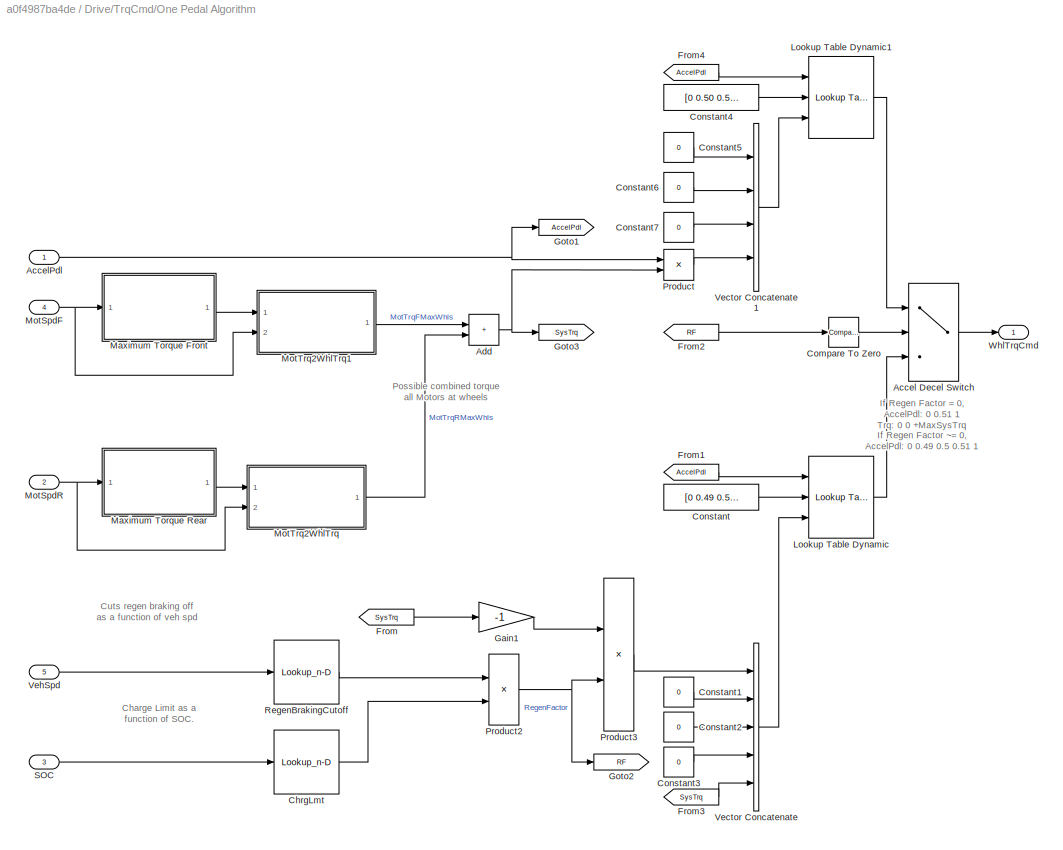
BLOCK [SubSystem] Drive/TrqCmd/One Pedal Algorithm
  InitFcn = [~] =  autosharedeval('1');
  Ports = [5, 1]
  RequestExecContextInheritance = off
  VariantControl = 1
BLOCK [Switch] Drive/TrqCmd/One Pedal Algorithm/Accel Decel Switch
  Criteria = u2 > Threshold
  InputSameDT = off
  SaturateOnIntegerOverflow = off
BLOCK [Inport] Drive/TrqCmd/One Pedal Algorithm/AccelPdl
BLOCK [Sum] Drive/TrqCmd/One Pedal Algorithm/Add
  IconShape = rectangular
  Ports = [2, 1]
BLOCK [Lookup_n-D] Drive/TrqCmd/One Pedal Algorithm/ChrgLmt
  BreakpointsForDimension1 = SOC_bpt
  ExtrapMethod = Clip
  InternalRulePriority = Speed
  NumberOfTableDimensions = 1
  Ports = [1, 1]
  RndMeth = Simplest
  Table = ChrgLmt_bpt
  UseLastTableValue = on
BLOCK [Reference] Drive/TrqCmd/One Pedal Algorithm/Compare To Zero  REF=simulink/Logic and Bit
Operations/Compare
To Zero
  Ports = [1, 1]
  SourceBlock = simulink/Logic and Bit\nOperations/Compare\nTo Zero
  SourceProductBaseCode = SL
  SourceType = Compare To Zero
BLOCK [Constant] Drive/TrqCmd/One Pedal Algorithm/Constant
  Value = [0 0.49 0.50 0.51 1]
BLOCK [Constant] Drive/TrqCmd/One Pedal Algorithm/Constant1
  Value = 0
BLOCK [Constant] Drive/TrqCmd/One Pedal Algorithm/Constant2
  Value = 0
BLOCK [Constant] Drive/TrqCmd/One Pedal Algorithm/Constant3
  Value = 0
BLOCK [Constant] Drive/TrqCmd/One Pedal Algorithm/Constant4
  Value = [0 0.50 0.51 1]
BLOCK [Constant] Drive/TrqCmd/One Pedal Algorithm/Constant5
  Value = 0
BLOCK [Constant] Drive/TrqCmd/One Pedal Algorithm/Constant6
  Value = 0
BLOCK [Constant] Drive/TrqCmd/One Pedal Algorithm/Constant7
  Value = 0
BLOCK [From] Drive/TrqCmd/One Pedal Algorithm/From
  GotoTag = SysTrq
BLOCK [From] Drive/TrqCmd/One Pedal Algorithm/From1
  GotoTag = AccelPdl
BLOCK [From] Drive/TrqCmd/One Pedal Algorithm/From2
  GotoTag = RF
BLOCK [From] Drive/TrqCmd/One Pedal Algorithm/From3
  GotoTag = SysTrq
BLOCK [From] Drive/TrqCmd/One Pedal Algorithm/From4
  GotoTag = AccelPdl
BLOCK [Gain] Drive/TrqCmd/One Pedal Algorithm/Gain1
  Gain = -1
BLOCK [Goto] Drive/TrqCmd/One Pedal Algorithm/Goto1
  GotoTag = AccelPdl
BLOCK [Goto] Drive/TrqCmd/One Pedal Algorithm/Goto2
  GotoTag = RF
BLOCK [Goto] Drive/TrqCmd/One Pedal Algorithm/Goto3
  GotoTag = SysTrq
BLOCK [Reference] Drive/TrqCmd/One Pedal Algorithm/Lookup Table Dynamic  REF=simulink/Lookup
Tables/Lookup
Table
Dynamic
  Ports = [3, 1]
  SourceBlock = simulink/Lookup\nTables/Lookup\nTable\nDynamic
  SourceProductBaseCode = SL
  SourceType = Lookup Table Dynamic
BLOCK [Reference] Drive/TrqCmd/One Pedal Algorithm/Lookup Table Dynamic1  REF=simulink/Lookup
Tables/Lookup
Table
Dynamic
  Ports = [3, 1]
  SourceBlock = simulink/Lookup\nTables/Lookup\nTable\nDynamic
  SourceProductBaseCode = SL
  SourceType = Lookup Table Dynamic
BLOCK [SubSystem] Drive/TrqCmd/One Pedal Algorithm/Maximum Torque Front
  Ports = [1, 1]
  RequestExecContextInheritance = off
BLOCK [Lookup_n-D] Drive/TrqCmd/One Pedal Algorithm/Maximum Torque Front/MaxMotTrqVsSpd
  BreakpointsForDimension1 = w_eff_bp_EV_front
  ExtrapMethod = Clip
  InternalRulePriority = Speed
  NumberOfTableDimensions = 1
  OutDataTypeStr = Inherit: Inherit from 'Table data'
  Ports = [1, 1]
  RndMeth = Simplest
  Table = T_t_EV_front
  UseLastTableValue = on
BLOCK [Inport] Drive/TrqCmd/One Pedal Algorithm/Maximum Torque Front/MotSpdF
BLOCK [Outport] Drive/TrqCmd/One Pedal Algorithm/Maximum Torque Front/MotTrqF
  VectorParamsAs1DForOutWhenUnconnected = off
BLOCK [SubSystem] Drive/TrqCmd/One Pedal Algorithm/Maximum Torque Rear
  Ports = [1, 1]
  RequestExecContextInheritance = off
BLOCK [Gain] Drive/TrqCmd/One Pedal Algorithm/Maximum Torque Rear/2 rear motors
  Gain = 2
BLOCK [Lookup_n-D] Drive/TrqCmd/One Pedal Algorithm/Maximum Torque Rear/MaxMotTrqVsSpd
  BreakpointsForDimension1 = w_eff_bp_EV_rear
  ExtrapMethod = Clip
  InternalRulePriority = Speed
  NumberOfTableDimensions = 1
  OutDataTypeStr = Inherit: Inherit from 'Table data'
  Ports = [1, 1]
  RndMeth = Simplest
  Table = T_t_EV_rear
  UseLastTableValue = on
BLOCK [Inport] Drive/TrqCmd/One Pedal Algorithm/Maximum Torque Rear/MotSpdR
BLOCK [Outport] Drive/TrqCmd/One Pedal Algorithm/Maximum Torque Rear/MotTrqR
  VectorParamsAs1DForOutWhenUnconnected = off
BLOCK [Inport] Drive/TrqCmd/One Pedal Algorithm/MotSpdF
  Port = 4
BLOCK [Inport] Drive/TrqCmd/One Pedal Algorithm/MotSpdR
  Port = 2
BLOCK [SubSystem] Drive/TrqCmd/One Pedal Algorithm/MotTrq2WhlTrq
  Ports = [2, 1]
  RequestExecContextInheritance = off
  VariantControl = 3
BLOCK [SubSystem] Drive/TrqCmd/One Pedal Algorithm/MotTrq2WhlTrq/Diff Eta
  Ports = [2, 1]
  RequestExecContextInheritance = off
BLOCK [Constant] Drive/TrqCmd/One Pedal Algorithm/MotTrq2WhlTrq/Diff Eta/Constant
BLOCK [Constant] Drive/TrqCmd/One Pedal Algorithm/MotTrq2WhlTrq/Diff Eta/Constant1
  SampleTime = -1
BLOCK [Constant] Drive/TrqCmd/One Pedal Algorithm/MotTrq2WhlTrq/Diff Eta/Constant2
  SampleTime = -1
  Value = -1
BLOCK [Math] Drive/TrqCmd/One Pedal Algorithm/MotTrq2WhlTrq/Diff Eta/Math Function1
  Operator = pow
  OutputSignalType = real
  Ports = [2, 1]
  SignedPower = on
BLOCK [Product] Drive/TrqCmd/One Pedal Algorithm/MotTrq2WhlTrq/Diff Eta/Product1
  Ports = [2, 1]
BLOCK [Inport] Drive/TrqCmd/One Pedal Algorithm/MotTrq2WhlTrq/Diff Eta/SpdIn
BLOCK [Switch] Drive/TrqCmd/One Pedal Algorithm/MotTrq2WhlTrq/Diff Eta/Switch2
  InputSameDT = off
  SaturateOnIntegerOverflow = off
BLOCK [Inport] Drive/TrqCmd/One Pedal Algorithm/MotTrq2WhlTrq/Diff Eta/TrqIn
  Port = 2
BLOCK [Outport] Drive/TrqCmd/One Pedal Algorithm/MotTrq2WhlTrq/Diff Eta/eta
  VectorParamsAs1DForOutWhenUnconnected = off
BLOCK [Product] Drive/TrqCmd/One Pedal Algorithm/MotTrq2WhlTrq/Divide2
  Inputs = **
  Ports = [2, 1]
BLOCK [Gain] Drive/TrqCmd/One Pedal Algorithm/MotTrq2WhlTrq/Gain3
  Gain = Ndiff_rear
BLOCK [Inport] Drive/TrqCmd/One Pedal Algorithm/MotTrq2WhlTrq/MotSpd
  Port = 2
BLOCK [Inport] Drive/TrqCmd/One Pedal Algorithm/MotTrq2WhlTrq/MotTrqCmd
BLOCK [Outport] Drive/TrqCmd/One Pedal Algorithm/MotTrq2WhlTrq/WhlMotTrq
  VectorParamsAs1DForOutWhenUnconnected = off
BLOCK [SubSystem] Drive/TrqCmd/One Pedal Algorithm/MotTrq2WhlTrq1
  Ports = [2, 1]
  RequestExecContextInheritance = off
  VariantControl = 3
BLOCK [SubSystem] Drive/TrqCmd/One Pedal Algorithm/MotTrq2WhlTrq1/Diff Eta
  Ports = [2, 1]
  RequestExecContextInheritance = off
BLOCK [Constant] Drive/TrqCmd/One Pedal Algorithm/MotTrq2WhlTrq1/Diff Eta/Constant
BLOCK [Constant] Drive/TrqCmd/One Pedal Algorithm/MotTrq2WhlTrq1/Diff Eta/Constant1
  SampleTime = -1
BLOCK [Constant] Drive/TrqCmd/One Pedal Algorithm/MotTrq2WhlTrq1/Diff Eta/Constant2
  SampleTime = -1
  Value = -1
BLOCK [Math] Drive/TrqCmd/One Pedal Algorithm/MotTrq2WhlTrq1/Diff Eta/Math Function1
  Operator = pow
  OutputSignalType = real
  Ports = [2, 1]
  SignedPower = on
BLOCK [Product] Drive/TrqCmd/One Pedal Algorithm/MotTrq2WhlTrq1/Diff Eta/Product1
  Ports = [2, 1]
BLOCK [Inport] Drive/TrqCmd/One Pedal Algorithm/MotTrq2WhlTrq1/Diff Eta/SpdIn
BLOCK [Switch] Drive/TrqCmd/One Pedal Algorithm/MotTrq2WhlTrq1/Diff Eta/Switch2
  InputSameDT = off
  SaturateOnIntegerOverflow = off
BLOCK [Inport] Drive/TrqCmd/One Pedal Algorithm/MotTrq2WhlTrq1/Diff Eta/TrqIn
  Port = 2
BLOCK [Outport] Drive/TrqCmd/One Pedal Algorithm/MotTrq2WhlTrq1/Diff Eta/eta
  VectorParamsAs1DForOutWhenUnconnected = off
BLOCK [Product] Drive/TrqCmd/One Pedal Algorithm/MotTrq2WhlTrq1/Divide2
  Inputs = **
  Ports = [2, 1]
BLOCK [Gain] Drive/TrqCmd/One Pedal Algorithm/MotTrq2WhlTrq1/Gain3
  Gain = Ndiff_front
BLOCK [Inport] Drive/TrqCmd/One Pedal Algorithm/MotTrq2WhlTrq1/MotSpd
  Port = 2
BLOCK [Inport] Drive/TrqCmd/One Pedal Algorithm/MotTrq2WhlTrq1/MotTrqCmd
BLOCK [Outport] Drive/TrqCmd/One Pedal Algorithm/MotTrq2WhlTrq1/WhlMotTrq
  VectorParamsAs1DForOutWhenUnconnected = off
BLOCK [Product] Drive/TrqCmd/One Pedal Algorithm/Product
  Ports = [2, 1]
BLOCK [Product] Drive/TrqCmd/One Pedal Algorithm/Product2
  Ports = [2, 1]
BLOCK [Product] Drive/TrqCmd/One Pedal Algorithm/Product3
  Ports = [2, 1]
BLOCK [Lookup_n-D] Drive/TrqCmd/One Pedal Algorithm/RegenBrakingCutoff
  BreakpointsForDimension1 = RegenBrkSpd_bpt
  ExtrapMethod = Clip
  InternalRulePriority = Speed
  NumberOfTableDimensions = 1
  Ports = [1, 1]
  RndMeth = Simplest
  Table = RegenBrkCutOff
  UseLastTableValue = on
BLOCK [Inport] Drive/TrqCmd/One Pedal Algorithm/SOC
  Port = 3
BLOCK [Concatenate] Drive/TrqCmd/One Pedal Algorithm/Vector Concatenate
  NumInputs = 5
  Ports = [5, 1]
BLOCK [Concatenate] Drive/TrqCmd/One Pedal Algorithm/Vector Concatenate1
  NumInputs = 4
  Ports = [4, 1]
BLOCK [Inport] Drive/TrqCmd/One Pedal Algorithm/VehSpd
  Port = 5
BLOCK [Outport] Drive/TrqCmd/One Pedal Algorithm/WhlTrqCmd
  VectorParamsAs1DForOutWhenUnconnected = off
BLOCK [Inport] Drive/TrqCmd/SOC
  Port = 4
BLOCK [Inport] Drive/TrqCmd/VehSpd
BLOCK [Outport] Drive/TrqCmd/WhlTrqCmd
  VectorParamsAs1DForOutWhenUnconnected = off
BLOCK [Inport] Drive/VehSpdFdbk
  OutDataTypeStr = double
  Port = 3
  PortDimensions = 1
  SampleTime = [0.01,0]
  SamplingMode = Sample based
  SignalType = real
BLOCK [If] If
  ElseIfExpressions = u1 == -1
  IfExpression = u1 >= 1
  Ports = [1, 3]
BLOCK [Merge] Merge
  Inputs = 3
  Ports = [3, 1]
BLOCK [Merge] Merge1
  Inputs = 3
  Ports = [3, 1]
BLOCK [Merge] Merge2
  Inputs = 3
  Ports = [3, 1]
BLOCK [Inport] MotSpd
  OutDataTypeStr = double
  Port = 5
  PortDimensions = 1
  SampleTime = [0.01,0]
  SamplingMode = Sample based
  SignalType = real
BLOCK [Inport] MotSpdF
  OutDataTypeStr = double
  Port = 7
  PortDimensions = 1
  SampleTime = [0.01,0]
  SamplingMode = Sample based
  SignalType = real
BLOCK [Outport] MotTrqCmd
  OutDataTypeStr = double
  PortDimensions = 1
  SampleTime = [0.01,0]
  SamplingMode = Sample based
  SignalType = real
  VectorParamsAs1DForOutWhenUnconnected = off
BLOCK [Outport] MotTrqCmdF
  OutDataTypeStr = double
  Port = 4
  PortDimensions = 1
  SampleTime = [0.01,0]
  SamplingMode = Sample based
  SignalType = real
  VectorParamsAs1DForOutWhenUnconnected = off
BLOCK [Inport] PRNDL_State
  OutDataTypeStr = double
  Port = 8
  PortDimensions = 1
  SampleTime = [0.01,0]
  SamplingMode = Sample based
  SignalType = real
BLOCK [SubSystem] Park or Neutral
  Ports = [0, 3, 0, 0, 0, 0, 0, 1]
  RequestExecContextInheritance = off
  TreatAsAtomicUnit = on
BLOCK [ActionPort] Park or Neutral/Action Port
  ActionPortLabel = else
  InitializeStates = reset
BLOCK [SubSystem] Park or Neutral/Brake Pedal to Total Braking Pressure Request
  Ports = [0, 1]
  RequestExecContextInheritance = off
BLOCK [Outport] Park or Neutral/Brake Pedal to Total Braking Pressure Request/BrkPrsReq
  VectorParamsAs1DForOutWhenUnconnected = off
BLOCK [Constant] Park or Neutral/Brake Pedal to Total Braking Pressure Request/Constant
  Value = BrkPrsMax
BLOCK [Constant] Park or Neutral/Brake Pedal to Total Braking Pressure Request/Constant1
BLOCK [Product] Park or Neutral/Brake Pedal to Total Braking Pressure Request/Product1
  Ports = [2, 1]
BLOCK [Outport] Park or Neutral/BrkCmd
  OutDataTypeStr = double
  Port = 3
  PortDimensions = 1
  SampleTime = [0.01,0]
  SamplingMode = Sample based
  SignalType = real
  VectorParamsAs1DForOutWhenUnconnected = off
BLOCK [Ground] Park or Neutral/Ground
BLOCK [Ground] Park or Neutral/Ground1
BLOCK [Outport] Park or Neutral/MotTrqCmd
  OutDataTypeStr = double
  Port = 2
  PortDimensions = 1
  SampleTime = [0.01,0]
  SamplingMode = Sample based
  SignalType = real
  VectorParamsAs1DForOutWhenUnconnected = off
BLOCK [Outport] Park or Neutral/MotTrqCmdF
  OutDataTypeStr = double
  PortDimensions = 1
  SampleTime = [0.01,0]
  SamplingMode = Sample based
  SignalType = real
  VectorParamsAs1DForOutWhenUnconnected = off
BLOCK [SubSystem] Reverse
  Ports = [3, 3, 0, 0, 0, 0, 0, 1]
  RequestExecContextInheritance = off
  TreatAsAtomicUnit = on
BLOCK [SubSystem] Reverse/Accel Pedal to Traction Wheel Torque Request
  Ports = [2, 1]
  RequestExecContextInheritance = off
  VariantControl = 0
BLOCK [Inport] Reverse/Accel Pedal to Traction Wheel Torque Request/AccelPdl
BLOCK [Gain] Reverse/Accel Pedal to Traction Wheel Torque Request/Gain
  Gain = 1/2
BLOCK [Gain] Reverse/Accel Pedal to Traction Wheel Torque Request/Gain1
  Gain = -1
BLOCK [SubSystem] Reverse/Accel Pedal to Traction Wheel Torque Request/Maximum Torque Rear
  Ports = [1, 1]
  RequestExecContextInheritance = off
BLOCK [Gain] Reverse/Accel Pedal to Traction Wheel Torque Request/Maximum Torque Rear/2 rear motors
  Gain = 2
BLOCK [Lookup_n-D] Reverse/Accel Pedal to Traction Wheel Torque Request/Maximum Torque Rear/MaxMotTrqVsSpd
  BeginIndexSearchUsingPreviousIndexResult = on
  BreakpointsForDimension1 = w_eff_bp_EV_rear
  ExtrapMethod = Clip
  InternalRulePriority = Speed
  NumberOfTableDimensions = 1
  OutDataTypeStr = Inherit: Inherit from 'Table data'
  Ports = [1, 1]
  RndMeth = Simplest
  Table = T_t_EV_rear
  UseLastTableValue = on
BLOCK [Inport] Reverse/Accel Pedal to Traction Wheel Torque Request/Maximum Torque Rear/MotSpdR
BLOCK [Outport] Reverse/Accel Pedal to Traction Wheel Torque Request/Maximum Torque Rear/MotTrqR
  VectorParamsAs1DForOutWhenUnconnected = off
BLOCK [Inport] Reverse/Accel Pedal to Traction Wheel Torque Request/MotSpdR
  Port = 2
BLOCK [Outport] Reverse/Accel Pedal to Traction Wheel Torque Request/MotTrqCmd
  VectorParamsAs1DForOutWhenUnconnected = off
BLOCK [Product] Reverse/Accel Pedal to Traction Wheel Torque Request/Product1
  Ports = [2, 1]
BLOCK [Inport] Reverse/AccelPdl
  OutDataTypeStr = double
  PortDimensions = 1
  SampleTime = [0.01,0]
  SamplingMode = Sample based
  SignalType = real
BLOCK [ActionPort] Reverse/Action Port
  ActionPortLabel = elseif(u1 == -1)
  InitializeStates = reset
BLOCK [SubSystem] Reverse/Brake Pedal to Total Braking Pressure Request
  Ports = [2, 1]
  RequestExecContextInheritance = off
BLOCK [Outport] Reverse/Brake Pedal to Total Braking Pressure Request/BrkPrsReq
  VectorParamsAs1DForOutWhenUnconnected = off
BLOCK [Constant] Reverse/Brake Pedal to Total Braking Pressure Request/Constant
  Value = BrkPrsMax
BLOCK [Constant] Reverse/Brake Pedal to Total Braking Pressure Request/Constant1
BLOCK [Inport] Reverse/Brake Pedal to Total Braking Pressure Request/DecelPdl
BLOCK [Inport] Reverse/Brake Pedal to Total Braking Pressure Request/Park
  Port = 2
BLOCK [Product] Reverse/Brake Pedal to Total Braking Pressure Request/Product1
  Ports = [2, 1]
BLOCK [Switch] Reverse/Brake Pedal to Total Braking Pressure Request/Switch
  Criteria = u2 > Threshold
  InputSameDT = off
  SaturateOnIntegerOverflow = off
BLOCK [Outport] Reverse/BrkCmd
  OutDataTypeStr = double
  Port = 3
  PortDimensions = 1
  SampleTime = [0.01,0]
  SamplingMode = Sample based
  SignalType = real
  VectorParamsAs1DForOutWhenUnconnected = off
BLOCK [Inport] Reverse/DecelPdl
  OutDataTypeStr = double
  Port = 2
  PortDimensions = 1
  SampleTime = [0.01,0]
  SamplingMode = Sample based
  SignalType = real
BLOCK [Ground] Reverse/Ground
BLOCK [Ground] Reverse/Ground2
BLOCK [Inport] Reverse/MotSpd
  OutDataTypeStr = double
  Port = 3
  PortDimensions = 1
  SampleTime = [0.01,0]
  SamplingMode = Sample based
  SignalType = real
BLOCK [Outport] Reverse/MotTrqCmd
  OutDataTypeStr = double
  Port = 2
  PortDimensions = 1
  SampleTime = [0.01,0]
  SamplingMode = Sample based
  SignalType = real
  VectorParamsAs1DForOutWhenUnconnected = off
BLOCK [Outport] Reverse/MotTrqCmdF
  OutDataTypeStr = double
  PortDimensions = 1
  SampleTime = [0.01,0]
  SamplingMode = Sample based
  SignalType = real
  VectorParamsAs1DForOutWhenUnconnected = off
BLOCK [Inport] VehSpdFdbk
  OutDataTypeStr = double
  Port = 3
  PortDimensions = 1
  SampleTime = [0.01,0]
  SamplingMode = Sample based
  SignalType = real
BLOCK [Outport] WhlTrqCmd
  Port = 3
  SamplingMode = Sample based
  VectorParamsAs1DForOutWhenUnconnected = off
ANNOTATION Drive/Energy Management/Control Domain : A vector of possible motor torques includes: Whl Trq Demand Linearly spaced Rear Motor vector (linspace) of min to max motor torque, in desired increments
ANNOTATION Drive/Energy Management/Control Domain /MotTrq2WhlTrq/Diff Eta: PTBS prior to 19a does not have Diff efficiency. This is a placeholder for it.
ANNOTATION Drive/Energy Management/Control Domain /MotTrq2WhlTrq/Diff Eta: Pwr >= 0, v = 1 Pwr < 0, v= -1
ANNOTATION Drive/Energy Management/Control Domain /Series Regen Braking: 4 brakes*(muk*pi*Ba^2*Rm*Npads/4)*P
ANNOTATION Drive/Energy Management/Control Domain /Series Regen Braking: - Total brake torque request based on brake pressure and parameters of disc brakes - Use as much regenerative motor braking as possible - Any braking torque request that cannot be provided by the motor, will be provided by the friction brakes
ANNOTATION Drive/Energy Management/Control Domain /Series Regen Braking: Possible combined torque of all Motor at wheels
ANNOTATION Drive/Energy Management/Control Domain /Series Regen Braking: T / 4 brakes*(muk*pi*Ba^2*Rm*Npads/4)
ANNOTATION Drive/Energy Management/Control Domain /Series Regen Braking/MotTrq2WhlTrq/Diff Eta: PTBS prior to 19a does not have Diff efficiency. This is a placeholder for it.
ANNOTATION Drive/Energy Management/Control Domain /Series Regen Braking/MotTrq2WhlTrq/Diff Eta: Pwr >= 0, v = 1 Pwr < 0, v= -1
ANNOTATION Drive/Energy Management/Control Domain /Series Regen Braking/MotTrq2WhlTrq1/Diff Eta: PTBS prior to 19a does not have Diff efficiency. This is a placeholder for it.
ANNOTATION Drive/Energy Management/Control Domain /Series Regen Braking/MotTrq2WhlTrq1/Diff Eta: Pwr >= 0, v = 1 Pwr < 0, v= -1
ANNOTATION Drive/Energy Management/Hamiltonian computation and minimization/Pwr Rate Limit: Alternative to using abs funciton
ANNOTATION Drive/Energy Management/Hamiltonian computation and minimization/Pwr Rate Limit: There could be instances where an mot trq command produces the minimum cost, but differs greatly from the previously selected mot trq. This function will calculate the difference in power between the current mot power vector and the previously selected mot pwr. This term is added to the total cost function, and will help limit the rate at which the mot power (and torque) can change from time step ...<+13ch>
ANNOTATION Drive/Energy Management/Powertrain Constraints : This subsystem calculates the powertrain component constraints and identifies infeasible conditions (i.e. violations of constraints).
ANNOTATION Drive/Energy Management/Powertrain Constraints /Battery Constraint: Some BMS will provide a lookup table with discharge / charge currents as a function of SOC and temp. Using a constant for simplification.
ANNOTATION Drive/Energy Management/Powertrain Constraints /Battery Constraint: These types of tables may come from the BMS supplier
ANNOTATION Drive/Energy Management/Powertrain Constraints /Motor Constraint Front/Maximum Torque: Don't allow negative MotTrq when WhlTrqCmd is >= 0
ANNOTATION Drive/Energy Management/Powertrain Constraints /Motor Constraint Front/MotTrq2WhlTrq/Diff Eta: PTBS prior to 19a does not have Diff efficiency. This is a placeholder for it.
ANNOTATION Drive/Energy Management/Powertrain Constraints /Motor Constraint Front/MotTrq2WhlTrq/Diff Eta: Pwr >= 0, v = 1 Pwr < 0, v= -1
ANNOTATION Drive/Energy Management/Powertrain Constraints /Motor Constraint Front/Tabular Power Loss Data: Check if Motoring or Generating
ANNOTATION Drive/Energy Management/Powertrain Constraints /Motor Constraint Front/Tabular Power Loss Data: Pelec_req = Pmech_req*Eff^k, k = -1 if Motoring >= 0, k = 1 if Generating < 0
ANNOTATION Drive/Energy Management/Powertrain Constraints /Motor Constraint Front/WhlTrq2MotTrq/Diff Eta: PTBS prior to 19a does not have Diff efficiency. This is a placeholder for it.
ANNOTATION Drive/Energy Management/Powertrain Constraints /Motor Constraint Front/WhlTrq2MotTrq/Diff Eta: Pwr >= 0, v = 1 Pwr < 0, v= -1
ANNOTATION Drive/Energy Management/Powertrain Constraints /Motor Constraint Rear/Maximum Torque: Don't allow negative MotTrq when WhlTrqCmd is >= 0
ANNOTATION Drive/Energy Management/Powertrain Constraints /Motor Constraint Rear/MotTrq2WhlTrq/Diff Eta: PTBS prior to 19a does not have Diff efficiency. This is a placeholder for it.
ANNOTATION Drive/Energy Management/Powertrain Constraints /Motor Constraint Rear/MotTrq2WhlTrq/Diff Eta: Pwr >= 0, v = 1 Pwr < 0, v= -1
ANNOTATION Drive/Energy Management/Powertrain Constraints /Motor Constraint Rear/Tabular Power Loss Data: Check if Motoring or Generating
ANNOTATION Drive/Energy Management/Powertrain Constraints /Motor Constraint Rear/Tabular Power Loss Data: Pelec_req = Pmech_req*Eff^k, k = -1 if Motoring >= 0, k = 1 if Generating < 0
ANNOTATION Drive/Energy Management/Powertrain Constraints /Motor Constraint Rear/WhlTrq2MotTrq/Diff Eta: PTBS prior to 19a does not have Diff efficiency. This is a placeholder for it.
ANNOTATION Drive/Energy Management/Powertrain Constraints /Motor Constraint Rear/WhlTrq2MotTrq/Diff Eta: Pwr >= 0, v = 1 Pwr < 0, v= -1
ANNOTATION Drive/TrqCmd/Accel Pedal to Traction Wheel Torque Request: Convert Accelerator Pedal Position to Torque Command using Motor Torque Speed Curves
ANNOTATION Drive/TrqCmd/Accel Pedal to Traction Wheel Torque Request/MotTrq2WhlTrq/Diff Eta: PTBS prior to 19a does not have Diff efficiency. This is a placeholder for it.
ANNOTATION Drive/TrqCmd/Accel Pedal to Traction Wheel Torque Request/MotTrq2WhlTrq/Diff Eta: Pwr >= 0, v = 1 Pwr < 0, v= -1
ANNOTATION Drive/TrqCmd/Accel Pedal to Traction Wheel Torque Request/MotTrq2WhlTrq1/Diff Eta: PTBS prior to 19a does not have Diff efficiency. This is a placeholder for it.
ANNOTATION Drive/TrqCmd/Accel Pedal to Traction Wheel Torque Request/MotTrq2WhlTrq1/Diff Eta: Pwr >= 0, v = 1 Pwr < 0, v= -1
ANNOTATION Drive/TrqCmd/One Pedal Algorithm: Charge Limit as a function of SOC.
ANNOTATION Drive/TrqCmd/One Pedal Algorithm: Cuts regen braking off as a function of veh spd
ANNOTATION Drive/TrqCmd/One Pedal Algorithm: If Regen Factor = 0, AccelPdl: 0 0.51 1 Trq: 0 0 +MaxSysTrq If Regen Factor ~= 0, AccelPdl: 0 0.49 0.5 0.51 1 Trq: -MaxSysTrq 0 0 0 +MaxSysTrq
ANNOTATION Drive/TrqCmd/One Pedal Algorithm: Possible combined torque all Motors at wheels
ANNOTATION Drive/TrqCmd/One Pedal Algorithm/MotTrq2WhlTrq/Diff Eta: PTBS prior to 19a does not have Diff efficiency. This is a placeholder for it.
ANNOTATION Drive/TrqCmd/One Pedal Algorithm/MotTrq2WhlTrq/Diff Eta: Pwr >= 0, v = 1 Pwr < 0, v= -1
ANNOTATION Drive/TrqCmd/One Pedal Algorithm/MotTrq2WhlTrq1/Diff Eta: PTBS prior to 19a does not have Diff efficiency. This is a placeholder for it.
ANNOTATION Drive/TrqCmd/One Pedal Algorithm/MotTrq2WhlTrq1/Diff Eta: Pwr >= 0, v = 1 Pwr < 0, v= -1
ANNOTATION Park or Neutral/Brake Pedal to Total Braking Pressure Request: Simulated parking brake w/ full brake applied
ANNOTATION Reverse/Accel Pedal to Traction Wheel Torque Request: Convert Accelerator Pedal Position to Torque Command using Motor Torque Speed Curves
ANNOTATION Reverse/Accel Pedal to Traction Wheel Torque Request: In Reverse, command negative torque
ANNOTATION Reverse/Accel Pedal to Traction Wheel Torque Request: In Reverse, limit torque to half of maximum
NET AccelPdl（加速器）:1 -> Drive:1, Reverse:1
LINE BattSoc:1 -> Drive:4
LINE BattV:1 -> Drive:6
LINE Constant1:1 -> WhlTrqCmd:1
NET DecelPdl（减速器）:1 -> Drive:2, Reverse:2
NET Drive/AccelPdl:1 -> Drive/Energy Management:7, Drive/TrqCmd:2
LINE Drive/BattSoc:1 -> Drive/Gain2:1
LINE Drive/BattV:1 -> Drive/Energy Management:6
LINE Drive/Brake Pedal to Total Braking Pressure Request/Constant1:1 -> Drive/Brake Pedal to Total Braking Pressure Request/Switch:1
LINE Drive/Brake Pedal to Total Braking Pressure Request/Constant:1 -> Drive/Brake Pedal to Total Braking Pressure Request/Product1:2
LINE Drive/Brake Pedal to Total Braking Pressure Request/DecelPdl:1 -> Drive/Brake Pedal to Total Braking Pressure Request/Switch:3
LINE Drive/Brake Pedal to Total Braking Pressure Request/Park:1 -> Drive/Brake Pedal to Total Braking Pressure Request/Switch:2
LINE Drive/Brake Pedal to Total Braking Pressure Request/Product1:1 -> Drive/Brake Pedal to Total Braking Pressure Request/BrkPrsReq:1
LINE Drive/Brake Pedal to Total Braking Pressure Request/Switch:1 -> Drive/Brake Pedal to Total Braking Pressure Request/Product1:1
LINE Drive/Brake Pedal to Total Braking Pressure Request:1 -> Drive/Energy Management:8
LINE Drive/DecelPdl:1 -> Drive/Brake Pedal to Total Braking Pressure Request:1
LINE Drive/Energy Management/AccelPdl:1 -> Drive/Energy Management/Control Domain :4
LINE Drive/Energy Management/BattV:1 -> Drive/Energy Management/Powertrain Constraints :5
LINE Drive/Energy Management/BrkPrsReq :1 -> Drive/Energy Management/Control Domain :3
LINE Drive/Energy Management/Control Domain /2 rear motors:1 -> Drive/Energy Management/Control Domain /MotTrq2WhlTrq:1
LINE Drive/Energy Management/Control Domain /Accel Decel Switch1:1 -> Drive/Energy Management/Control Domain /2 rear motors:1
NET Drive/Energy Management/Control Domain /Accel Decel Switch:1 -> Drive/Energy Management/Control Domain /Mux1:1, Drive/Energy Management/Control Domain /WHLTQCMD:1
LINE Drive/Energy Management/Control Domain /AccelPdl:1 -> Drive/Energy Management/Control Domain /Compare To Constant:1
LINE Drive/Energy Management/Control Domain /BattSoc:1 -> Drive/Energy Management/Control Domain /Series Regen Braking:4
LINE Drive/Energy Management/Control Domain /BrkPrsReq :1 -> Drive/Energy Management/Control Domain /Series Regen Braking:3
NET Drive/Energy Management/Control Domain /Compare To Constant:1 -> Drive/Energy Management/Control Domain /Accel Decel Switch1:2, Drive/Energy Management/Control Domain /Accel Decel Switch:2
LINE Drive/Energy Management/Control Domain /MotSpdF:1 -> Drive/Energy Management/Control Domain /Series Regen Braking:2
NET Drive/Energy Management/Control Domain /MotSpdR:1 -> Drive/Energy Management/Control Domain /Series Regen Braking:5, Drive/Energy Management/Control Domain /rads2rpm:1
LINE Drive/Energy Management/Control Domain /MotTrq Control Vector Regen:1 -> Drive/Energy Management/Control Domain /Accel Decel Switch1:3
LINE Drive/Energy Management/Control Domain /MotTrq Control Vector Traction:1 -> Drive/Energy Management/Control Domain /Accel Decel Switch1:1
LINE Drive/Energy Management/Control Domain /MotTrq2WhlTrq/Diff Eta/Constant1:1 -> Drive/Energy Management/Control Domain /MotTrq2WhlTrq/Diff Eta/Switch2:1
LINE Drive/Energy Management/Control Domain /MotTrq2WhlTrq/Diff Eta/Constant2:1 -> Drive/Energy Management/Control Domain /MotTrq2WhlTrq/Diff Eta/Switch2:3
LINE Drive/Energy Management/Control Domain /MotTrq2WhlTrq/Diff Eta/Constant:1 -> Drive/Energy Management/Control Domain /MotTrq2WhlTrq/Diff Eta/Math Function1:1
LINE Drive/Energy Management/Control Domain /MotTrq2WhlTrq/Diff Eta/Math Function1:1 -> Drive/Energy Management/Control Domain /MotTrq2WhlTrq/Diff Eta/eta:1
LINE Drive/Energy Management/Control Domain /MotTrq2WhlTrq/Diff Eta/Product1:1 -> Drive/Energy Management/Control Domain /MotTrq2WhlTrq/Diff Eta/Switch2:2
LINE Drive/Energy Management/Control Domain /MotTrq2WhlTrq/Diff Eta/SpdIn:1 -> Drive/Energy Management/Control Domain /MotTrq2WhlTrq/Diff Eta/rpm2rads:1
LINE Drive/Energy Management/Control Domain /MotTrq2WhlTrq/Diff Eta/Switch2:1 -> Drive/Energy Management/Control Domain /MotTrq2WhlTrq/Diff Eta/Math Function1:2
LINE Drive/Energy Management/Control Domain /MotTrq2WhlTrq/Diff Eta/TrqIn:1 -> Drive/Energy Management/Control Domain /MotTrq2WhlTrq/Diff Eta/Product1:1
LINE Drive/Energy Management/Control Domain /MotTrq2WhlTrq/Diff Eta/rpm2rads:1 -> Drive/Energy Management/Control Domain /MotTrq2WhlTrq/Diff Eta/Product1:2
LINE Drive/Energy Management/Control Domain /MotTrq2WhlTrq/Diff Eta:1 -> Drive/Energy Management/Control Domain /MotTrq2WhlTrq/Divide2:1
LINE Drive/Energy Management/Control Domain /MotTrq2WhlTrq/Divide2:1 -> Drive/Energy Management/Control Domain /MotTrq2WhlTrq/WhlMotTrq:1
LINE Drive/Energy Management/Control Domain /MotTrq2WhlTrq/Gain3:1 -> Drive/Energy Management/Control Domain /MotTrq2WhlTrq/Divide2:2
LINE Drive/Energy Management/Control Domain /MotTrq2WhlTrq/MotSpd:1 -> Drive/Energy Management/Control Domain /MotTrq2WhlTrq/Diff Eta:1
NET Drive/Energy Management/Control Domain /MotTrq2WhlTrq/MotTrqCmd:1 -> Drive/Energy Management/Control Domain /MotTrq2WhlTrq/Diff Eta:2, Drive/Energy Management/Control Domain /MotTrq2WhlTrq/Gain3:1
LINE Drive/Energy Management/Control Domain /MotTrq2WhlTrq:1 -> Drive/Energy Management/Control Domain /Mux1:2
LINE Drive/Energy Management/Control Domain /Mux1:1 -> Drive/Energy Management/Control Domain /Reshape:1
LINE Drive/Energy Management/Control Domain /Reshape:1 -> Drive/Energy Management/Control Domain /WhlMotTrqVecRear:1
LINE Drive/Energy Management/Control Domain /Series Regen Braking/Add:1 -> Drive/Energy Management/Control Domain /Series Regen Braking/MinMax:2
LINE Drive/Energy Management/Control Domain /Series Regen Braking/BattSoc:1 -> Drive/Energy Management/Control Domain /Series Regen Braking/ChrgLmt:1
LINE Drive/Energy Management/Control Domain /Series Regen Braking/BrkPrsReq :1 -> Drive/Energy Management/Control Domain /Series Regen Braking/Product2:1
LINE Drive/Energy Management/Control Domain /Series Regen Braking/ChrgLmt:1 -> Drive/Energy Management/Control Domain /Series Regen Braking/Product1:2
LINE Drive/Energy Management/Control Domain /Series Regen Braking/Constant1:1 -> Drive/Energy Management/Control Domain /Series Regen Braking/Product4:2
LINE Drive/Energy Management/Control Domain /Series Regen Braking/Constant:1 -> Drive/Energy Management/Control Domain /Series Regen Braking/Product2:2
LINE Drive/Energy Management/Control Domain /Series Regen Braking/Gain:1 -> Drive/Energy Management/Control Domain /Series Regen Braking/ WhlMotTrqCmdRegen:1
LINE Drive/Energy Management/Control Domain /Series Regen Braking/Maximum Torque Front/MaxMotTrqVsSpd:1 -> Drive/Energy Management/Control Domain /Series Regen Braking/Maximum Torque Front/MotTrqF:1
LINE Drive/Energy Management/Control Domain /Series Regen Braking/Maximum Torque Front/MotSpdF:1 -> Drive/Energy Management/Control Domain /Series Regen Braking/Maximum Torque Front/MaxMotTrqVsSpd:1
LINE Drive/Energy Management/Control Domain /Series Regen Braking/Maximum Torque Front:1 -> Drive/Energy Management/Control Domain /Series Regen Braking/MotTrq2WhlTrq1:1
LINE Drive/Energy Management/Control Domain /Series Regen Braking/Maximum Torque Rear/2 rear motors:1 -> Drive/Energy Management/Control Domain /Series Regen Braking/Maximum Torque Rear/MotTrqR:1
LINE Drive/Energy Management/Control Domain /Series Regen Braking/Maximum Torque Rear/MaxMotTrqVsSpd:1 -> Drive/Energy Management/Control Domain /Series Regen Braking/Maximum Torque Rear/2 rear motors:1
LINE Drive/Energy Management/Control Domain /Series Regen Braking/Maximum Torque Rear/MotSpdR:1 -> Drive/Energy Management/Control Domain /Series Regen Braking/Maximum Torque Rear/MaxMotTrqVsSpd:1
LINE Drive/Energy Management/Control Domain /Series Regen Braking/Maximum Torque Rear:1 -> Drive/Energy Management/Control Domain /Series Regen Braking/MotTrq2WhlTrq:1
LINE Drive/Energy Management/Control Domain /Series Regen Braking/MinMax:1 -> Drive/Energy Management/Control Domain /Series Regen Braking/Product3:1
NET Drive/Energy Management/Control Domain /Series Regen Braking/MotSpdF:1 -> Drive/Energy Management/Control Domain /Series Regen Braking/Maximum Torque Front:1, Drive/Energy Management/Control Domain /Series Regen Braking/MotTrq2WhlTrq1:2
NET Drive/Energy Management/Control Domain /Series Regen Braking/MotSpdR:1 -> Drive/Energy Management/Control Domain /Series Regen Braking/Maximum Torque Rear:1, Drive/Energy Management/Control Domain /Series Regen Braking/MotTrq2WhlTrq:2
LINE Drive/Energy Management/Control Domain /Series Regen Braking/MotTrq2WhlTrq/Diff Eta/Constant1:1 -> Drive/Energy Management/Control Domain /Series Regen Braking/MotTrq2WhlTrq/Diff Eta/Switch2:1
LINE Drive/Energy Management/Control Domain /Series Regen Braking/MotTrq2WhlTrq/Diff Eta/Constant2:1 -> Drive/Energy Management/Control Domain /Series Regen Braking/MotTrq2WhlTrq/Diff Eta/Switch2:3
LINE Drive/Energy Management/Control Domain /Series Regen Braking/MotTrq2WhlTrq/Diff Eta/Constant:1 -> Drive/Energy Management/Control Domain /Series Regen Braking/MotTrq2WhlTrq/Diff Eta/Math Function1:1
LINE Drive/Energy Management/Control Domain /Series Regen Braking/MotTrq2WhlTrq/Diff Eta/Math Function1:1 -> Drive/Energy Management/Control Domain /Series Regen Braking/MotTrq2WhlTrq/Diff Eta/eta:1
LINE Drive/Energy Management/Control Domain /Series Regen Braking/MotTrq2WhlTrq/Diff Eta/Product1:1 -> Drive/Energy Management/Control Domain /Series Regen Braking/MotTrq2WhlTrq/Diff Eta/Switch2:2
LINE Drive/Energy Management/Control Domain /Series Regen Braking/MotTrq2WhlTrq/Diff Eta/SpdIn:1 -> Drive/Energy Management/Control Domain /Series Regen Braking/MotTrq2WhlTrq/Diff Eta/Product1:2
LINE Drive/Energy Management/Control Domain /Series Regen Braking/MotTrq2WhlTrq/Diff Eta/Switch2:1 -> Drive/Energy Management/Control Domain /Series Regen Braking/MotTrq2WhlTrq/Diff Eta/Math Function1:2
LINE Drive/Energy Management/Control Domain /Series Regen Braking/MotTrq2WhlTrq/Diff Eta/TrqIn:1 -> Drive/Energy Management/Control Domain /Series Regen Braking/MotTrq2WhlTrq/Diff Eta/Product1:1
LINE Drive/Energy Management/Control Domain /Series Regen Braking/MotTrq2WhlTrq/Diff Eta:1 -> Drive/Energy Management/Control Domain /Series Regen Braking/MotTrq2WhlTrq/Divide2:1
LINE Drive/Energy Management/Control Domain /Series Regen Braking/MotTrq2WhlTrq/Divide2:1 -> Drive/Energy Management/Control Domain /Series Regen Braking/MotTrq2WhlTrq/WhlMotTrq:1
LINE Drive/Energy Management/Control Domain /Series Regen Braking/MotTrq2WhlTrq/Gain3:1 -> Drive/Energy Management/Control Domain /Series Regen Braking/MotTrq2WhlTrq/Divide2:2
LINE Drive/Energy Management/Control Domain /Series Regen Braking/MotTrq2WhlTrq/MotSpd:1 -> Drive/Energy Management/Control Domain /Series Regen Braking/MotTrq2WhlTrq/Diff Eta:1
NET Drive/Energy Management/Control Domain /Series Regen Braking/MotTrq2WhlTrq/MotTrqCmd:1 -> Drive/Energy Management/Control Domain /Series Regen Braking/MotTrq2WhlTrq/Diff Eta:2, Drive/Energy Management/Control Domain /Series Regen Braking/MotTrq2WhlTrq/Gain3:1
LINE Drive/Energy Management/Control Domain /Series Regen Braking/MotTrq2WhlTrq1/Diff Eta/Constant1:1 -> Drive/Energy Management/Control Domain /Series Regen Braking/MotTrq2WhlTrq1/Diff Eta/Switch2:1
LINE Drive/Energy Management/Control Domain /Series Regen Braking/MotTrq2WhlTrq1/Diff Eta/Constant2:1 -> Drive/Energy Management/Control Domain /Series Regen Braking/MotTrq2WhlTrq1/Diff Eta/Switch2:3
LINE Drive/Energy Management/Control Domain /Series Regen Braking/MotTrq2WhlTrq1/Diff Eta/Constant:1 -> Drive/Energy Management/Control Domain /Series Regen Braking/MotTrq2WhlTrq1/Diff Eta/Math Function1:1
LINE Drive/Energy Management/Control Domain /Series Regen Braking/MotTrq2WhlTrq1/Diff Eta/Math Function1:1 -> Drive/Energy Management/Control Domain /Series Regen Braking/MotTrq2WhlTrq1/Diff Eta/eta:1
LINE Drive/Energy Management/Control Domain /Series Regen Braking/MotTrq2WhlTrq1/Diff Eta/Product1:1 -> Drive/Energy Management/Control Domain /Series Regen Braking/MotTrq2WhlTrq1/Diff Eta/Switch2:2
LINE Drive/Energy Management/Control Domain /Series Regen Braking/MotTrq2WhlTrq1/Diff Eta/SpdIn:1 -> Drive/Energy Management/Control Domain /Series Regen Braking/MotTrq2WhlTrq1/Diff Eta/Product1:2
LINE Drive/Energy Management/Control Domain /Series Regen Braking/MotTrq2WhlTrq1/Diff Eta/Switch2:1 -> Drive/Energy Management/Control Domain /Series Regen Braking/MotTrq2WhlTrq1/Diff Eta/Math Function1:2
LINE Drive/Energy Management/Control Domain /Series Regen Braking/MotTrq2WhlTrq1/Diff Eta/TrqIn:1 -> Drive/Energy Management/Control Domain /Series Regen Braking/MotTrq2WhlTrq1/Diff Eta/Product1:1
LINE Drive/Energy Management/Control Domain /Series Regen Braking/MotTrq2WhlTrq1/Diff Eta:1 -> Drive/Energy Management/Control Domain /Series Regen Braking/MotTrq2WhlTrq1/Divide2:1
LINE Drive/Energy Management/Control Domain /Series Regen Braking/MotTrq2WhlTrq1/Divide2:1 -> Drive/Energy Management/Control Domain /Series Regen Braking/MotTrq2WhlTrq1/WhlMotTrq:1
LINE Drive/Energy Management/Control Domain /Series Regen Braking/MotTrq2WhlTrq1/Gain3:1 -> Drive/Energy Management/Control Domain /Series Regen Braking/MotTrq2WhlTrq1/Divide2:2
LINE Drive/Energy Management/Control Domain /Series Regen Braking/MotTrq2WhlTrq1/MotSpd:1 -> Drive/Energy Management/Control Domain /Series Regen Braking/MotTrq2WhlTrq1/Diff Eta:1
NET Drive/Energy Management/Control Domain /Series Regen Braking/MotTrq2WhlTrq1/MotTrqCmd:1 -> Drive/Energy Management/Control Domain /Series Regen Braking/MotTrq2WhlTrq1/Diff Eta:2, Drive/Energy Management/Control Domain /Series Regen Braking/MotTrq2WhlTrq1/Gain3:1
LINE Drive/Energy Management/Control Domain /Series Regen Braking/MotTrq2WhlTrq1:1 -> Drive/Energy Management/Control Domain /Series Regen Braking/Add:1
LINE Drive/Energy Management/Control Domain /Series Regen Braking/MotTrq2WhlTrq:1 -> Drive/Energy Management/Control Domain /Series Regen Braking/Add:2
LINE Drive/Energy Management/Control Domain /Series Regen Braking/Negative 5:1 -> Drive/Energy Management/Control Domain /Series Regen Braking/Product4:1
LINE Drive/Energy Management/Control Domain /Series Regen Braking/Product1:1 -> Drive/Energy Management/Control Domain /Series Regen Braking/Product3:2
NET Drive/Energy Management/Control Domain /Series Regen Braking/Product2:1 -> Drive/Energy Management/Control Domain /Series Regen Braking/MinMax:1, Drive/Energy Management/Control Domain /Series Regen Braking/Subtract:1
NET Drive/Energy Management/Control Domain /Series Regen Braking/Product3:1 -> Drive/Energy Management/Control Domain /Series Regen Braking/Gain:1, Drive/Energy Management/Control Domain /Series Regen Braking/Subtract:2
LINE Drive/Energy Management/Control Domain /Series Regen Braking/Product4:1 -> Drive/Energy Management/Control Domain /Series Regen Braking/ BrkCmd:1
LINE Drive/Energy Management/Control Domain /Series Regen Braking/RegenBrakingCutoff:1 -> Drive/Energy Management/Control Domain /Series Regen Braking/Product1:1
LINE Drive/Energy Management/Control Domain /Series Regen Braking/Subtract:1 -> Drive/Energy Management/Control Domain /Series Regen Braking/Negative 5:1
LINE Drive/Energy Management/Control Domain /Series Regen Braking/VehSpd:1 -> Drive/Energy Management/Control Domain /Series Regen Braking/RegenBrakingCutoff:1
LINE Drive/Energy Management/Control Domain /Series Regen Braking:1 -> Drive/Energy Management/Control Domain /Accel Decel Switch:3
LINE Drive/Energy Management/Control Domain /Series Regen Braking:2 -> Drive/Energy Management/Control Domain /BrkCmd:1
LINE Drive/Energy Management/Control Domain /VehSpd:1 -> Drive/Energy Management/Control Domain /Series Regen Braking:1
LINE Drive/Energy Management/Control Domain /WhlTrqCmd:1 -> Drive/Energy Management/Control Domain /Accel Decel Switch:1
LINE Drive/Energy Management/Control Domain /rads2rpm:1 -> Drive/Energy Management/Control Domain /MotTrq2WhlTrq:2
LINE Drive/Energy Management/Control Domain :1 -> Drive/Energy Management/Powertrain Constraints :2
LINE Drive/Energy Management/Control Domain :2 -> Drive/Energy Management/Powertrain Constraints :3
LINE Drive/Energy Management/Control Domain :3 -> Drive/Energy Management/BrkCmd:1
LINE Drive/Energy Management/Hamiltonian computation and minimization/Add:1 -> Drive/Energy Management/Hamiltonian computation and minimization/MATLAB Function:1
LINE Drive/Energy Management/Hamiltonian computation and minimization/BattCurr:1 -> Drive/Energy Management/Hamiltonian computation and minimization/Product3:2
LINE Drive/Energy Management/Hamiltonian computation and minimization/BattV:1 -> Drive/Energy Management/Hamiltonian computation and minimization/Product3:1
LINE Drive/Energy Management/Hamiltonian computation and minimization/Constraint Penalty Factor:1 -> Drive/Energy Management/Hamiltonian computation and minimization/Add:2
LINE Drive/Energy Management/Hamiltonian computation and minimization/From:1 -> Drive/Energy Management/Hamiltonian computation and minimization/Pwr Rate Limit:1
LINE Drive/Energy Management/Hamiltonian computation and minimization/Index Vector1:1 -> Drive/Energy Management/Hamiltonian computation and minimization/Signal Conversion1:1
NET Drive/Energy Management/Hamiltonian computation and minimization/Index Vector:1 -> Drive/Energy Management/Hamiltonian computation and minimization/Signal Conversion:1, Drive/Energy Management/Hamiltonian computation and minimization/Unit Delay2:1
NET Drive/Energy Management/Hamiltonian computation and minimization/InfeasibleFlagVec:1 -> Drive/Energy Management/Hamiltonian computation and minimization/Constraint Penalty Factor:1, Drive/Energy Management/Hamiltonian computation and minimization/MATLAB Function:2
LINE Drive/Energy Management/Hamiltonian computation and minimization/MATLAB Function:1 -> Drive/Energy Management/Hamiltonian computation and minimization/Terminator2:1
NET Drive/Energy Management/Hamiltonian computation and minimization/MATLAB Function:2 -> Drive/Energy Management/Hamiltonian computation and minimization/Index Vector1:1, Drive/Energy Management/Hamiltonian computation and minimization/Index Vector:1
LINE Drive/Energy Management/Hamiltonian computation and minimization/MATLAB Function:3 -> Drive/Energy Management/Hamiltonian computation and minimization/Terminator1:1
LINE Drive/Energy Management/Hamiltonian computation and minimization/MotSpdF:1 -> Drive/Energy Management/Hamiltonian computation and minimization/Pwr Rate Limit:2
NET Drive/Energy Management/Hamiltonian computation and minimization/MotTrqVecSatFront:1 -> Drive/Energy Management/Hamiltonian computation and minimization/Goto1:1, Drive/Energy Management/Hamiltonian computation and minimization/Index Vector:2
LINE Drive/Energy Management/Hamiltonian computation and minimization/MotTrqVecSatRear:1 -> Drive/Energy Management/Hamiltonian computation and minimization/Index Vector1:2
LINE Drive/Energy Management/Hamiltonian computation and minimization/Product3:1 -> Drive/Energy Management/Hamiltonian computation and minimization/W2kW :1
NET Drive/Energy Management/Hamiltonian computation and minimization/Pwr Rate Limit/MotSpdF:1 -> Drive/Energy Management/Hamiltonian computation and minimization/Pwr Rate Limit/Product1:1, Drive/Energy Management/Hamiltonian computation and minimization/Pwr Rate Limit/Product6:2
LINE Drive/Energy Management/Hamiltonian computation and minimization/Pwr Rate Limit/MotTrqFVec:1 -> Drive/Energy Management/Hamiltonian computation and minimization/Pwr Rate Limit/Product6:1
LINE Drive/Energy Management/Hamiltonian computation and minimization/Pwr Rate Limit/PrevMotTrqCmdF:1 -> Drive/Energy Management/Hamiltonian computation and minimization/Pwr Rate Limit/Product1:2
LINE Drive/Energy Management/Hamiltonian computation and minimization/Pwr Rate Limit/Product1:1 -> Drive/Energy Management/Hamiltonian computation and minimization/Pwr Rate Limit/Subtract:2
LINE Drive/Energy Management/Hamiltonian computation and minimization/Pwr Rate Limit/Product6:1 -> Drive/Energy Management/Hamiltonian computation and minimization/Pwr Rate Limit/Subtract:1
LINE Drive/Energy Management/Hamiltonian computation and minimization/Pwr Rate Limit/Product7:1 -> Drive/Energy Management/Hamiltonian computation and minimization/Pwr Rate Limit/Sqrt1:1
LINE Drive/Energy Management/Hamiltonian computation and minimization/Pwr Rate Limit/PwrDelta Penalty:1 -> Drive/Energy Management/Hamiltonian computation and minimization/Pwr Rate Limit/MotPwrDelta:1
LINE Drive/Energy Management/Hamiltonian computation and minimization/Pwr Rate Limit/Sqrt1:1 -> Drive/Energy Management/Hamiltonian computation and minimization/Pwr Rate Limit/W2kW:1
NET Drive/Energy Management/Hamiltonian computation and minimization/Pwr Rate Limit/Subtract:1 -> Drive/Energy Management/Hamiltonian computation and minimization/Pwr Rate Limit/Product7:1, Drive/Energy Management/Hamiltonian computation and minimization/Pwr Rate Limit/Product7:2
LINE Drive/Energy Management/Hamiltonian computation and minimization/Pwr Rate Limit/W2kW:1 -> Drive/Energy Management/Hamiltonian computation and minimization/Pwr Rate Limit/PwrDelta Penalty:1
LINE Drive/Energy Management/Hamiltonian computation and minimization/Pwr Rate Limit:1 -> Drive/Energy Management/Hamiltonian computation and minimization/Add:4
LINE Drive/Energy Management/Hamiltonian computation and minimization/Signal Conversion1:1 -> Drive/Energy Management/Hamiltonian computation and minimization/MotTrqCmdR:1
LINE Drive/Energy Management/Hamiltonian computation and minimization/Signal Conversion:1 -> Drive/Energy Management/Hamiltonian computation and minimization/MotTrqCmdF:1
LINE Drive/Energy Management/Hamiltonian computation and minimization/TracPwrErr Penalty:1 -> Drive/Energy Management/Hamiltonian computation and minimization/Add:3
LINE Drive/Energy Management/Hamiltonian computation and minimization/TracPwrErr:1 -> Drive/Energy Management/Hamiltonian computation and minimization/W2kW 1:1
LINE Drive/Energy Management/Hamiltonian computation and minimization/Unit Delay2:1 -> Drive/Energy Management/Hamiltonian computation and minimization/Pwr Rate Limit:3
LINE Drive/Energy Management/Hamiltonian computation and minimization/W2kW 1:1 -> Drive/Energy Management/Hamiltonian computation and minimization/TracPwrErr Penalty:1
LINE Drive/Energy Management/Hamiltonian computation and minimization/W2kW :1 -> Drive/Energy Management/Hamiltonian computation and minimization/Add:1
LINE Drive/Energy Management/Hamiltonian computation and minimization:1 -> Drive/Energy Management/MotTrqCmdF:1
LINE Drive/Energy Management/Hamiltonian computation and minimization:2 -> Drive/Energy Management/MotTrqCmdR:1
NET Drive/Energy Management/MotSpdF:1 -> Drive/Energy Management/Control Domain :7, Drive/Energy Management/Hamiltonian computation and minimization:7, Drive/Energy Management/Powertrain Constraints :7
NET Drive/Energy Management/MotSpdR:1 -> Drive/Energy Management/Control Domain :5, Drive/Energy Management/Powertrain Constraints :4
LINE Drive/Energy Management/Powertrain Constraints /Abs:1 -> Drive/Energy Management/Powertrain Constraints /TracPwrErr:1
LINE Drive/Energy Management/Powertrain Constraints /Add1:1 -> Drive/Energy Management/Powertrain Constraints /Product:2
LINE Drive/Energy Management/Powertrain Constraints /Add2:1 -> Drive/Energy Management/Powertrain Constraints /Battery Constraint:1
LINE Drive/Energy Management/Powertrain Constraints /Add3:1 -> Drive/Energy Management/Powertrain Constraints /Motor Constraint Front:3
LINE Drive/Energy Management/Powertrain Constraints /Add:1 -> Drive/Energy Management/Powertrain Constraints /Add1:2
LINE Drive/Energy Management/Powertrain Constraints /BattV_in:1 -> Drive/Energy Management/Powertrain Constraints /Battery Constraint:3
LINE Drive/Energy Management/Powertrain Constraints /Battery Constraint/Abs:1 -> Drive/Energy Management/Powertrain Constraints /Battery Constraint/Relational Operator:1
NET Drive/Energy Management/Powertrain Constraints /Battery Constraint/BattV_in:1 -> Drive/Energy Management/Powertrain Constraints /Battery Constraint/BattV:1, Drive/Energy Management/Powertrain Constraints /Battery Constraint/Electrical Current:1
LINE Drive/Energy Management/Powertrain Constraints /Battery Constraint/ChrgLmt:1 -> Drive/Energy Management/Powertrain Constraints /Battery Constraint/Product6:1
LINE Drive/Energy Management/Powertrain Constraints /Battery Constraint/DischrgLmt:1 -> Drive/Energy Management/Powertrain Constraints /Battery Constraint/Product5:1
LINE Drive/Energy Management/Powertrain Constraints /Battery Constraint/Electrical Current/BattV:1 -> Drive/Energy Management/Powertrain Constraints /Battery Constraint/Electrical Current/Saturation:1
LINE Drive/Energy Management/Powertrain Constraints /Battery Constraint/Electrical Current/DC-DC Eta/DC-DC Eta/DCDC Constant Eff:1 -> Drive/Energy Management/Powertrain Constraints /Battery Constraint/Electrical Current/DC-DC Eta/DC-DC Eta/Out:1
LINE Drive/Energy Management/Powertrain Constraints /Battery Constraint/Electrical Current/DC-DC Eta/DC-DC Eta/In:1 -> Drive/Energy Management/Powertrain Constraints /Battery Constraint/Electrical Current/DC-DC Eta/DC-DC Eta/DCDC Constant Eff:1
LINE Drive/Energy Management/Powertrain Constraints /Battery Constraint/Electrical Current/DC-DC Eta/No DC-DC/In:1 -> Drive/Energy Management/Powertrain Constraints /Battery Constraint/Electrical Current/DC-DC Eta/No DC-DC/Out:1
LINE Drive/Energy Management/Powertrain Constraints /Battery Constraint/Electrical Current/DC-DC Eta:1 -> Drive/Energy Management/Powertrain Constraints /Battery Constraint/Electrical Current/Divide:1
LINE Drive/Energy Management/Powertrain Constraints /Battery Constraint/Electrical Current/Divide:1 -> Drive/Energy Management/Powertrain Constraints /Battery Constraint/Electrical Current/BatteryAmp:1
LINE Drive/Energy Management/Powertrain Constraints /Battery Constraint/Electrical Current/MotPwrElecVec:1 -> Drive/Energy Management/Powertrain Constraints /Battery Constraint/Electrical Current/DC-DC Eta:1
LINE Drive/Energy Management/Powertrain Constraints /Battery Constraint/Electrical Current/Saturation:1 -> Drive/Energy Management/Powertrain Constraints /Battery Constraint/Electrical Current/Divide:2
NET Drive/Energy Management/Powertrain Constraints /Battery Constraint/Electrical Current:1 -> Drive/Energy Management/Powertrain Constraints /Battery Constraint/Abs:1, Drive/Energy Management/Powertrain Constraints /Battery Constraint/Saturation Dynamic:2
LINE Drive/Energy Management/Powertrain Constraints /Battery Constraint/Gain1:1 -> Drive/Energy Management/Powertrain Constraints /Battery Constraint/Saturation Dynamic:3
NET Drive/Energy Management/Powertrain Constraints /Battery Constraint/Imax3:1 -> Drive/Energy Management/Powertrain Constraints /Battery Constraint/Gain1:1, Drive/Energy Management/Powertrain Constraints /Battery Constraint/Relational Operator:2, Drive/Energy Management/Powertrain Constraints /Battery Constraint/Saturation Dynamic:1
LINE Drive/Energy Management/Powertrain Constraints /Battery Constraint/Logical Operator1:1 -> Drive/Energy Management/Powertrain Constraints /Battery Constraint/Logical Operator:2
LINE Drive/Energy Management/Powertrain Constraints /Battery Constraint/Logical Operator:1 -> Drive/Energy Management/Powertrain Constraints /Battery Constraint/InfeasibleBatt:1
LINE Drive/Energy Management/Powertrain Constraints /Battery Constraint/MaxChrg:1 -> Drive/Energy Management/Powertrain Constraints /Battery Constraint/Product6:2
LINE Drive/Energy Management/Powertrain Constraints /Battery Constraint/MaxDischrg:1 -> Drive/Energy Management/Powertrain Constraints /Battery Constraint/Product5:2
NET Drive/Energy Management/Powertrain Constraints /Battery Constraint/MotPwrElecVec:1 -> Drive/Energy Management/Powertrain Constraints /Battery Constraint/Electrical Current:2, Drive/Energy Management/Powertrain Constraints /Battery Constraint/Relational Operator1:1, Drive/Energy Management/Powertrain Constraints /Battery Constraint/Relational Operator2:1
LINE Drive/Energy Management/Powertrain Constraints /Battery Constraint/Product5:1 -> Drive/Energy Management/Powertrain Constraints /Battery Constraint/Relational Operator1:2
LINE Drive/Energy Management/Powertrain Constraints /Battery Constraint/Product6:1 -> Drive/Energy Management/Powertrain Constraints /Battery Constraint/Relational Operator2:2
LINE Drive/Energy Management/Powertrain Constraints /Battery Constraint/Relational Operator1:1 -> Drive/Energy Management/Powertrain Constraints /Battery Constraint/Logical Operator1:1
LINE Drive/Energy Management/Powertrain Constraints /Battery Constraint/Relational Operator2:1 -> Drive/Energy Management/Powertrain Constraints /Battery Constraint/Logical Operator1:2
LINE Drive/Energy Management/Powertrain Constraints /Battery Constraint/Relational Operator:1 -> Drive/Energy Management/Powertrain Constraints /Battery Constraint/Logical Operator:1
NET Drive/Energy Management/Powertrain Constraints /Battery Constraint/SOC:1 -> Drive/Energy Management/Powertrain Constraints /Battery Constraint/ChrgLmt:1, Drive/Energy Management/Powertrain Constraints /Battery Constraint/DischrgLmt:1
LINE Drive/Energy Management/Powertrain Constraints /Battery Constraint/Saturation Dynamic:1 -> Drive/Energy Management/Powertrain Constraints /Battery Constraint/BattCurr:1
LINE Drive/Energy Management/Powertrain Constraints /Battery Constraint:1 -> Drive/Energy Management/Powertrain Constraints /Infeasible conditions:3
LINE Drive/Energy Management/Powertrain Constraints /Battery Constraint:2 -> Drive/Energy Management/Powertrain Constraints /BattCurr:1
LINE Drive/Energy Management/Powertrain Constraints /Battery Constraint:3 -> Drive/Energy Management/Powertrain Constraints /BattV:1
LINE Drive/Energy Management/Powertrain Constraints /Infeasible conditions:1 -> Drive/Energy Management/Powertrain Constraints /InfeasibleFlagVec:1
LINE Drive/Energy Management/Powertrain Constraints /MotSpdF:1 -> Drive/Energy Management/Powertrain Constraints /Motor Constraint Front:2
LINE Drive/Energy Management/Powertrain Constraints /MotSpdR:1 -> Drive/Energy Management/Powertrain Constraints /Motor Constraint Rear:2
LINE Drive/Energy Management/Powertrain Constraints /Motor Constraint Front/Maximum Torque/Abs1:1 -> Drive/Energy Management/Powertrain Constraints /Motor Constraint Front/Maximum Torque/MaxMotTrqVsSpd:1
LINE Drive/Energy Management/Powertrain Constraints /Motor Constraint Front/Maximum Torque/Compare To Zero1:1 -> Drive/Energy Management/Powertrain Constraints /Motor Constraint Front/Maximum Torque/Logical Operator1:2
LINE Drive/Energy Management/Powertrain Constraints /Motor Constraint Front/Maximum Torque/Compare To Zero:1 -> Drive/Energy Management/Powertrain Constraints /Motor Constraint Front/Maximum Torque/Logical Operator1:1
NET Drive/Energy Management/Powertrain Constraints /Motor Constraint Front/Maximum Torque/Gain:1 -> Drive/Energy Management/Powertrain Constraints /Motor Constraint Front/Maximum Torque/Relational Operator1:2, Drive/Energy Management/Powertrain Constraints /Motor Constraint Front/Maximum Torque/Saturation Dynamic:3
LINE Drive/Energy Management/Powertrain Constraints /Motor Constraint Front/Maximum Torque/Logical Operator1:1 -> Drive/Energy Management/Powertrain Constraints /Motor Constraint Front/Maximum Torque/Logical Operator:3
LINE Drive/Energy Management/Powertrain Constraints /Motor Constraint Front/Maximum Torque/Logical Operator:1 -> Drive/Energy Management/Powertrain Constraints /Motor Constraint Front/Maximum Torque/InfeasibleMot:1
NET Drive/Energy Management/Powertrain Constraints /Motor Constraint Front/Maximum Torque/MaxMotTrqVsSpd:1 -> Drive/Energy Management/Powertrain Constraints /Motor Constraint Front/Maximum Torque/Gain:1, Drive/Energy Management/Powertrain Constraints /Motor Constraint Front/Maximum Torque/Relational Operator:1, Drive/Energy Management/Powertrain Constraints /Motor Constraint Front/Maximum Torque/Saturation Dynamic:1
LINE Drive/Energy Management/Powertrain Constraints /Motor Constraint Front/Maximum Torque/MotorSpd:1 -> Drive/Energy Management/Powertrain Constraints /Motor Constraint Front/Maximum Torque/Abs1:1
NET Drive/Energy Management/Powertrain Constraints /Motor Constraint Front/Maximum Torque/MotorTrqCmd:1 -> Drive/Energy Management/Powertrain Constraints /Motor Constraint Front/Maximum Torque/Compare To Zero:1, Drive/Energy Management/Powertrain Constraints /Motor Constraint Front/Maximum Torque/Relational Operator1:1, Drive/Energy Management/Powertrain Constraints /Motor Constraint Front/Maximum Torque/Relational Operator:2, Drive/Energy Management/Powertrain Constraints /Motor Constraint Front/Maximum Torque/Saturation Dynamic:2
LINE Drive/Energy Management/Powertrain Constraints /Motor Constraint Front/Maximum Torque/Relational Operator1:1 -> Drive/Energy Management/Powertrain Constraints /Motor Constraint Front/Maximum Torque/Logical Operator:2
LINE Drive/Energy Management/Powertrain Constraints /Motor Constraint Front/Maximum Torque/Relational Operator:1 -> Drive/Energy Management/Powertrain Constraints /Motor Constraint Front/Maximum Torque/Logical Operator:1
LINE Drive/Energy Management/Powertrain Constraints /Motor Constraint Front/Maximum Torque/Saturation Dynamic:1 -> Drive/Energy Management/Powertrain Constraints /Motor Constraint Front/Maximum Torque/MotorTrq:1
LINE Drive/Energy Management/Powertrain Constraints /Motor Constraint Front/Maximum Torque/WhlTrqCmd:1 -> Drive/Energy Management/Powertrain Constraints /Motor Constraint Front/Maximum Torque/Compare To Zero1:1
NET Drive/Energy Management/Powertrain Constraints /Motor Constraint Front/Maximum Torque:1 -> Drive/Energy Management/Powertrain Constraints /Motor Constraint Front/MotTrq2WhlTrq:1, Drive/Energy Management/Powertrain Constraints /Motor Constraint Front/MotTrqVecSat:1, Drive/Energy Management/Powertrain Constraints /Motor Constraint Front/Tabular Power Loss Data:2
LINE Drive/Energy Management/Powertrain Constraints /Motor Constraint Front/Maximum Torque:2 -> Drive/Energy Management/Powertrain Constraints /Motor Constraint Front/InfeasibleMot:1
LINE Drive/Energy Management/Powertrain Constraints /Motor Constraint Front/MotSpd:1 -> Drive/Energy Management/Powertrain Constraints /Motor Constraint Front/rads2rpm1:1
LINE Drive/Energy Management/Powertrain Constraints /Motor Constraint Front/MotTrq2WhlTrq/Diff Eta/Constant1:1 -> Drive/Energy Management/Powertrain Constraints /Motor Constraint Front/MotTrq2WhlTrq/Diff Eta/Switch2:1
LINE Drive/Energy Management/Powertrain Constraints /Motor Constraint Front/MotTrq2WhlTrq/Diff Eta/Constant2:1 -> Drive/Energy Management/Powertrain Constraints /Motor Constraint Front/MotTrq2WhlTrq/Diff Eta/Switch2:3
LINE Drive/Energy Management/Powertrain Constraints /Motor Constraint Front/MotTrq2WhlTrq/Diff Eta/Constant:1 -> Drive/Energy Management/Powertrain Constraints /Motor Constraint Front/MotTrq2WhlTrq/Diff Eta/Math Function1:1
LINE Drive/Energy Management/Powertrain Constraints /Motor Constraint Front/MotTrq2WhlTrq/Diff Eta/Math Function1:1 -> Drive/Energy Management/Powertrain Constraints /Motor Constraint Front/MotTrq2WhlTrq/Diff Eta/eta:1
LINE Drive/Energy Management/Powertrain Constraints /Motor Constraint Front/MotTrq2WhlTrq/Diff Eta/Product1:1 -> Drive/Energy Management/Powertrain Constraints /Motor Constraint Front/MotTrq2WhlTrq/Diff Eta/Switch2:2
LINE Drive/Energy Management/Powertrain Constraints /Motor Constraint Front/MotTrq2WhlTrq/Diff Eta/SpdIn:1 -> Drive/Energy Management/Powertrain Constraints /Motor Constraint Front/MotTrq2WhlTrq/Diff Eta/rpm2rads:1
LINE Drive/Energy Management/Powertrain Constraints /Motor Constraint Front/MotTrq2WhlTrq/Diff Eta/Switch2:1 -> Drive/Energy Management/Powertrain Constraints /Motor Constraint Front/MotTrq2WhlTrq/Diff Eta/Math Function1:2
LINE Drive/Energy Management/Powertrain Constraints /Motor Constraint Front/MotTrq2WhlTrq/Diff Eta/TrqIn:1 -> Drive/Energy Management/Powertrain Constraints /Motor Constraint Front/MotTrq2WhlTrq/Diff Eta/Product1:1
LINE Drive/Energy Management/Powertrain Constraints /Motor Constraint Front/MotTrq2WhlTrq/Diff Eta/rpm2rads:1 -> Drive/Energy Management/Powertrain Constraints /Motor Constraint Front/MotTrq2WhlTrq/Diff Eta/Product1:2
LINE Drive/Energy Management/Powertrain Constraints /Motor Constraint Front/MotTrq2WhlTrq/Diff Eta:1 -> Drive/Energy Management/Powertrain Constraints /Motor Constraint Front/MotTrq2WhlTrq/Divide2:1
LINE Drive/Energy Management/Powertrain Constraints /Motor Constraint Front/MotTrq2WhlTrq/Divide2:1 -> Drive/Energy Management/Powertrain Constraints /Motor Constraint Front/MotTrq2WhlTrq/WhlMotTrq:1
LINE Drive/Energy Management/Powertrain Constraints /Motor Constraint Front/MotTrq2WhlTrq/Gain3:1 -> Drive/Energy Management/Powertrain Constraints /Motor Constraint Front/MotTrq2WhlTrq/Divide2:2
LINE Drive/Energy Management/Powertrain Constraints /Motor Constraint Front/MotTrq2WhlTrq/MotSpd:1 -> Drive/Energy Management/Powertrain Constraints /Motor Constraint Front/MotTrq2WhlTrq/Diff Eta:1
NET Drive/Energy Management/Powertrain Constraints /Motor Constraint Front/MotTrq2WhlTrq/MotTrqCmd:1 -> Drive/Energy Management/Powertrain Constraints /Motor Constraint Front/MotTrq2WhlTrq/Diff Eta:2, Drive/Energy Management/Powertrain Constraints /Motor Constraint Front/MotTrq2WhlTrq/Gain3:1
LINE Drive/Energy Management/Powertrain Constraints /Motor Constraint Front/MotTrq2WhlTrq:1 -> Drive/Energy Management/Powertrain Constraints /Motor Constraint Front/WhlMotTrqVecSat:1
LINE Drive/Energy Management/Powertrain Constraints /Motor Constraint Front/Tabular Power Loss Data/Abs1:1 -> Drive/Energy Management/Powertrain Constraints /Motor Constraint Front/Tabular Power Loss Data/Eff Map:2
LINE Drive/Energy Management/Powertrain Constraints /Motor Constraint Front/Tabular Power Loss Data/Abs:1 -> Drive/Energy Management/Powertrain Constraints /Motor Constraint Front/Tabular Power Loss Data/Eff Map:1
LINE Drive/Energy Management/Powertrain Constraints /Motor Constraint Front/Tabular Power Loss Data/Constant1:1 -> Drive/Energy Management/Powertrain Constraints /Motor Constraint Front/Tabular Power Loss Data/Switch2:1
LINE Drive/Energy Management/Powertrain Constraints /Motor Constraint Front/Tabular Power Loss Data/Constant2:1 -> Drive/Energy Management/Powertrain Constraints /Motor Constraint Front/Tabular Power Loss Data/Switch2:3
LINE Drive/Energy Management/Powertrain Constraints /Motor Constraint Front/Tabular Power Loss Data/Eff Map:1 -> Drive/Energy Management/Powertrain Constraints /Motor Constraint Front/Tabular Power Loss Data/Gain2:1
LINE Drive/Energy Management/Powertrain Constraints /Motor Constraint Front/Tabular Power Loss Data/Gain2:1 -> Drive/Energy Management/Powertrain Constraints /Motor Constraint Front/Tabular Power Loss Data/Math Function1:1
LINE Drive/Energy Management/Powertrain Constraints /Motor Constraint Front/Tabular Power Loss Data/Math Function1:1 -> Drive/Energy Management/Powertrain Constraints /Motor Constraint Front/Tabular Power Loss Data/Product4:2
NET Drive/Energy Management/Powertrain Constraints /Motor Constraint Front/Tabular Power Loss Data/MotorSpd:1 -> Drive/Energy Management/Powertrain Constraints /Motor Constraint Front/Tabular Power Loss Data/Abs:1, Drive/Energy Management/Powertrain Constraints /Motor Constraint Front/Tabular Power Loss Data/rpm2rads:1
NET Drive/Energy Management/Powertrain Constraints /Motor Constraint Front/Tabular Power Loss Data/MotorTrq:1 -> Drive/Energy Management/Powertrain Constraints /Motor Constraint Front/Tabular Power Loss Data/Abs1:1, Drive/Energy Management/Powertrain Constraints /Motor Constraint Front/Tabular Power Loss Data/Product1:2
NET Drive/Energy Management/Powertrain Constraints /Motor Constraint Front/Tabular Power Loss Data/Product1:1 -> Drive/Energy Management/Powertrain Constraints /Motor Constraint Front/Tabular Power Loss Data/Product4:1, Drive/Energy Management/Powertrain Constraints /Motor Constraint Front/Tabular Power Loss Data/Switch2:2
LINE Drive/Energy Management/Powertrain Constraints /Motor Constraint Front/Tabular Power Loss Data/Product4:1 -> Drive/Energy Management/Powertrain Constraints /Motor Constraint Front/Tabular Power Loss Data/MotPwrElecVec:1
LINE Drive/Energy Management/Powertrain Constraints /Motor Constraint Front/Tabular Power Loss Data/Switch2:1 -> Drive/Energy Management/Powertrain Constraints /Motor Constraint Front/Tabular Power Loss Data/Math Function1:2
LINE Drive/Energy Management/Powertrain Constraints /Motor Constraint Front/Tabular Power Loss Data/rpm2rads:1 -> Drive/Energy Management/Powertrain Constraints /Motor Constraint Front/Tabular Power Loss Data/Product1:1
LINE Drive/Energy Management/Powertrain Constraints /Motor Constraint Front/Tabular Power Loss Data:1 -> Drive/Energy Management/Powertrain Constraints /Motor Constraint Front/MotPwrElecVec:1
LINE Drive/Energy Management/Powertrain Constraints /Motor Constraint Front/WhlMotTrqFCmd:1 -> Drive/Energy Management/Powertrain Constraints /Motor Constraint Front/WhlTrq2MotTrq:1
LINE Drive/Energy Management/Powertrain Constraints /Motor Constraint Front/WhlTrq2MotTrq/Diff Eta/Constant1:1 -> Drive/Energy Management/Powertrain Constraints /Motor Constraint Front/WhlTrq2MotTrq/Diff Eta/Switch2:1
LINE Drive/Energy Management/Powertrain Constraints /Motor Constraint Front/WhlTrq2MotTrq/Diff Eta/Constant2:1 -> Drive/Energy Management/Powertrain Constraints /Motor Constraint Front/WhlTrq2MotTrq/Diff Eta/Switch2:3
LINE Drive/Energy Management/Powertrain Constraints /Motor Constraint Front/WhlTrq2MotTrq/Diff Eta/Constant:1 -> Drive/Energy Management/Powertrain Constraints /Motor Constraint Front/WhlTrq2MotTrq/Diff Eta/Math Function1:1
LINE Drive/Energy Management/Powertrain Constraints /Motor Constraint Front/WhlTrq2MotTrq/Diff Eta/Math Function1:1 -> Drive/Energy Management/Powertrain Constraints /Motor Constraint Front/WhlTrq2MotTrq/Diff Eta/eta:1
LINE Drive/Energy Management/Powertrain Constraints /Motor Constraint Front/WhlTrq2MotTrq/Diff Eta/Product1:1 -> Drive/Energy Management/Powertrain Constraints /Motor Constraint Front/WhlTrq2MotTrq/Diff Eta/Switch2:2
LINE Drive/Energy Management/Powertrain Constraints /Motor Constraint Front/WhlTrq2MotTrq/Diff Eta/SpdIn:1 -> Drive/Energy Management/Powertrain Constraints /Motor Constraint Front/WhlTrq2MotTrq/Diff Eta/rpm2rads:1
LINE Drive/Energy Management/Powertrain Constraints /Motor Constraint Front/WhlTrq2MotTrq/Diff Eta/Switch2:1 -> Drive/Energy Management/Powertrain Constraints /Motor Constraint Front/WhlTrq2MotTrq/Diff Eta/Math Function1:2
LINE Drive/Energy Management/Powertrain Constraints /Motor Constraint Front/WhlTrq2MotTrq/Diff Eta/TrqIn:1 -> Drive/Energy Management/Powertrain Constraints /Motor Constraint Front/WhlTrq2MotTrq/Diff Eta/Product1:1
LINE Drive/Energy Management/Powertrain Constraints /Motor Constraint Front/WhlTrq2MotTrq/Diff Eta/rpm2rads:1 -> Drive/Energy Management/Powertrain Constraints /Motor Constraint Front/WhlTrq2MotTrq/Diff Eta/Product1:2
LINE Drive/Energy Management/Powertrain Constraints /Motor Constraint Front/WhlTrq2MotTrq/Diff Eta:1 -> Drive/Energy Management/Powertrain Constraints /Motor Constraint Front/WhlTrq2MotTrq/Divide1:1
NET Drive/Energy Management/Powertrain Constraints /Motor Constraint Front/WhlTrq2MotTrq/Divide1:1 -> Drive/Energy Management/Powertrain Constraints /Motor Constraint Front/WhlTrq2MotTrq/MotTrq:1, Drive/Energy Management/Powertrain Constraints /Motor Constraint Front/WhlTrq2MotTrq/Unit Delay:1
LINE Drive/Energy Management/Powertrain Constraints /Motor Constraint Front/WhlTrq2MotTrq/Gain3:1 -> Drive/Energy Management/Powertrain Constraints /Motor Constraint Front/WhlTrq2MotTrq/Divide1:2
LINE Drive/Energy Management/Powertrain Constraints /Motor Constraint Front/WhlTrq2MotTrq/MotSpd:1 -> Drive/Energy Management/Powertrain Constraints /Motor Constraint Front/WhlTrq2MotTrq/Diff Eta:2
LINE Drive/Energy Management/Powertrain Constraints /Motor Constraint Front/WhlTrq2MotTrq/Unit Delay:1 -> Drive/Energy Management/Powertrain Constraints /Motor Constraint Front/WhlTrq2MotTrq/Diff Eta:1
LINE Drive/Energy Management/Powertrain Constraints /Motor Constraint Front/WhlTrq2MotTrq/WhlTrqCmd:1 -> Drive/Energy Management/Powertrain Constraints /Motor Constraint Front/WhlTrq2MotTrq/Gain3:1
LINE Drive/Energy Management/Powertrain Constraints /Motor Constraint Front/WhlTrq2MotTrq:1 -> Drive/Energy Management/Powertrain Constraints /Motor Constraint Front/Maximum Torque:3
LINE Drive/Energy Management/Powertrain Constraints /Motor Constraint Front/WhlTrqCmd:1 -> Drive/Energy Management/Powertrain Constraints /Motor Constraint Front/Maximum Torque:2
NET Drive/Energy Management/Powertrain Constraints /Motor Constraint Front/rads2rpm1:1 -> Drive/Energy Management/Powertrain Constraints /Motor Constraint Front/Maximum Torque:1, Drive/Energy Management/Powertrain Constraints /Motor Constraint Front/MotTrq2WhlTrq:2, Drive/Energy Management/Powertrain Constraints /Motor Constraint Front/Tabular Power Loss Data:1, Drive/Energy Management/Powertrain Constraints /Motor Constraint Front/WhlTrq2MotTrq:2
LINE Drive/Energy Management/Powertrain Constraints /Motor Constraint Front:1 -> Drive/Energy Management/Powertrain Constraints /Add:1
LINE Drive/Energy Management/Powertrain Constraints /Motor Constraint Front:2 -> Drive/Energy Management/Powertrain Constraints /MotTrqVecFront:1
LINE Drive/Energy Management/Powertrain Constraints /Motor Constraint Front:3 -> Drive/Energy Management/Powertrain Constraints /Infeasible conditions:1
LINE Drive/Energy Management/Powertrain Constraints /Motor Constraint Front:4 -> Drive/Energy Management/Powertrain Constraints /Add2:1
NET Drive/Energy Management/Powertrain Constraints /Motor Constraint Rear/Maximum Torque/2 Rear Motors:1 -> Drive/Energy Management/Powertrain Constraints /Motor Constraint Rear/Maximum Torque/Gain:1, Drive/Energy Management/Powertrain Constraints /Motor Constraint Rear/Maximum Torque/Relational Operator:1, Drive/Energy Management/Powertrain Constraints /Motor Constraint Rear/Maximum Torque/Saturation Dynamic:1
LINE Drive/Energy Management/Powertrain Constraints /Motor Constraint Rear/Maximum Torque/Abs1:1 -> Drive/Energy Management/Powertrain Constraints /Motor Constraint Rear/Maximum Torque/MaxMotTrqVsSpd:1
LINE Drive/Energy Management/Powertrain Constraints /Motor Constraint Rear/Maximum Torque/Compare To Zero1:1 -> Drive/Energy Management/Powertrain Constraints /Motor Constraint Rear/Maximum Torque/Logical Operator1:2
LINE Drive/Energy Management/Powertrain Constraints /Motor Constraint Rear/Maximum Torque/Compare To Zero:1 -> Drive/Energy Management/Powertrain Constraints /Motor Constraint Rear/Maximum Torque/Logical Operator1:1
NET Drive/Energy Management/Powertrain Constraints /Motor Constraint Rear/Maximum Torque/Gain:1 -> Drive/Energy Management/Powertrain Constraints /Motor Constraint Rear/Maximum Torque/Relational Operator1:2, Drive/Energy Management/Powertrain Constraints /Motor Constraint Rear/Maximum Torque/Saturation Dynamic:3
LINE Drive/Energy Management/Powertrain Constraints /Motor Constraint Rear/Maximum Torque/Logical Operator1:1 -> Drive/Energy Management/Powertrain Constraints /Motor Constraint Rear/Maximum Torque/Logical Operator:3
LINE Drive/Energy Management/Powertrain Constraints /Motor Constraint Rear/Maximum Torque/Logical Operator:1 -> Drive/Energy Management/Powertrain Constraints /Motor Constraint Rear/Maximum Torque/InfeasibleMot:1
LINE Drive/Energy Management/Powertrain Constraints /Motor Constraint Rear/Maximum Torque/MaxMotTrqVsSpd:1 -> Drive/Energy Management/Powertrain Constraints /Motor Constraint Rear/Maximum Torque/2 Rear Motors:1
LINE Drive/Energy Management/Powertrain Constraints /Motor Constraint Rear/Maximum Torque/MotorSpd:1 -> Drive/Energy Management/Powertrain Constraints /Motor Constraint Rear/Maximum Torque/Abs1:1
NET Drive/Energy Management/Powertrain Constraints /Motor Constraint Rear/Maximum Torque/MotorTrqCmd:1 -> Drive/Energy Management/Powertrain Constraints /Motor Constraint Rear/Maximum Torque/Compare To Zero:1, Drive/Energy Management/Powertrain Constraints /Motor Constraint Rear/Maximum Torque/Relational Operator1:1, Drive/Energy Management/Powertrain Constraints /Motor Constraint Rear/Maximum Torque/Relational Operator:2, Drive/Energy Management/Powertrain Constraints /Motor Constraint Rear/Maximum Torque/Saturation Dynamic:2
LINE Drive/Energy Management/Powertrain Constraints /Motor Constraint Rear/Maximum Torque/Relational Operator1:1 -> Drive/Energy Management/Powertrain Constraints /Motor Constraint Rear/Maximum Torque/Logical Operator:2
LINE Drive/Energy Management/Powertrain Constraints /Motor Constraint Rear/Maximum Torque/Relational Operator:1 -> Drive/Energy Management/Powertrain Constraints /Motor Constraint Rear/Maximum Torque/Logical Operator:1
LINE Drive/Energy Management/Powertrain Constraints /Motor Constraint Rear/Maximum Torque/Saturation Dynamic:1 -> Drive/Energy Management/Powertrain Constraints /Motor Constraint Rear/Maximum Torque/MotorTrq:1
LINE Drive/Energy Management/Powertrain Constraints /Motor Constraint Rear/Maximum Torque/WhlTrqCmd:1 -> Drive/Energy Management/Powertrain Constraints /Motor Constraint Rear/Maximum Torque/Compare To Zero1:1
NET Drive/Energy Management/Powertrain Constraints /Motor Constraint Rear/Maximum Torque:1 -> Drive/Energy Management/Powertrain Constraints /Motor Constraint Rear/MotTrq2WhlTrq:1, Drive/Energy Management/Powertrain Constraints /Motor Constraint Rear/MotTrqVecSat:1, Drive/Energy Management/Powertrain Constraints /Motor Constraint Rear/Tabular Power Loss Data:2
LINE Drive/Energy Management/Powertrain Constraints /Motor Constraint Rear/Maximum Torque:2 -> Drive/Energy Management/Powertrain Constraints /Motor Constraint Rear/InfeasibleMot:1
LINE Drive/Energy Management/Powertrain Constraints /Motor Constraint Rear/MotSpd:1 -> Drive/Energy Management/Powertrain Constraints /Motor Constraint Rear/rads2rpm1:1
LINE Drive/Energy Management/Powertrain Constraints /Motor Constraint Rear/MotTrq2WhlTrq/Diff Eta/Constant1:1 -> Drive/Energy Management/Powertrain Constraints /Motor Constraint Rear/MotTrq2WhlTrq/Diff Eta/Switch2:1
LINE Drive/Energy Management/Powertrain Constraints /Motor Constraint Rear/MotTrq2WhlTrq/Diff Eta/Constant2:1 -> Drive/Energy Management/Powertrain Constraints /Motor Constraint Rear/MotTrq2WhlTrq/Diff Eta/Switch2:3
LINE Drive/Energy Management/Powertrain Constraints /Motor Constraint Rear/MotTrq2WhlTrq/Diff Eta/Constant:1 -> Drive/Energy Management/Powertrain Constraints /Motor Constraint Rear/MotTrq2WhlTrq/Diff Eta/Math Function1:1
LINE Drive/Energy Management/Powertrain Constraints /Motor Constraint Rear/MotTrq2WhlTrq/Diff Eta/Math Function1:1 -> Drive/Energy Management/Powertrain Constraints /Motor Constraint Rear/MotTrq2WhlTrq/Diff Eta/eta:1
LINE Drive/Energy Management/Powertrain Constraints /Motor Constraint Rear/MotTrq2WhlTrq/Diff Eta/Product1:1 -> Drive/Energy Management/Powertrain Constraints /Motor Constraint Rear/MotTrq2WhlTrq/Diff Eta/Switch2:2
LINE Drive/Energy Management/Powertrain Constraints /Motor Constraint Rear/MotTrq2WhlTrq/Diff Eta/SpdIn:1 -> Drive/Energy Management/Powertrain Constraints /Motor Constraint Rear/MotTrq2WhlTrq/Diff Eta/rpm2rads:1
LINE Drive/Energy Management/Powertrain Constraints /Motor Constraint Rear/MotTrq2WhlTrq/Diff Eta/Switch2:1 -> Drive/Energy Management/Powertrain Constraints /Motor Constraint Rear/MotTrq2WhlTrq/Diff Eta/Math Function1:2
LINE Drive/Energy Management/Powertrain Constraints /Motor Constraint Rear/MotTrq2WhlTrq/Diff Eta/TrqIn:1 -> Drive/Energy Management/Powertrain Constraints /Motor Constraint Rear/MotTrq2WhlTrq/Diff Eta/Product1:1
LINE Drive/Energy Management/Powertrain Constraints /Motor Constraint Rear/MotTrq2WhlTrq/Diff Eta/rpm2rads:1 -> Drive/Energy Management/Powertrain Constraints /Motor Constraint Rear/MotTrq2WhlTrq/Diff Eta/Product1:2
LINE Drive/Energy Management/Powertrain Constraints /Motor Constraint Rear/MotTrq2WhlTrq/Diff Eta:1 -> Drive/Energy Management/Powertrain Constraints /Motor Constraint Rear/MotTrq2WhlTrq/Divide2:1
LINE Drive/Energy Management/Powertrain Constraints /Motor Constraint Rear/MotTrq2WhlTrq/Divide2:1 -> Drive/Energy Management/Powertrain Constraints /Motor Constraint Rear/MotTrq2WhlTrq/WhlMotTrq:1
LINE Drive/Energy Management/Powertrain Constraints /Motor Constraint Rear/MotTrq2WhlTrq/Gain3:1 -> Drive/Energy Management/Powertrain Constraints /Motor Constraint Rear/MotTrq2WhlTrq/Divide2:2
LINE Drive/Energy Management/Powertrain Constraints /Motor Constraint Rear/MotTrq2WhlTrq/MotSpd:1 -> Drive/Energy Management/Powertrain Constraints /Motor Constraint Rear/MotTrq2WhlTrq/Diff Eta:1
NET Drive/Energy Management/Powertrain Constraints /Motor Constraint Rear/MotTrq2WhlTrq/MotTrqCmd:1 -> Drive/Energy Management/Powertrain Constraints /Motor Constraint Rear/MotTrq2WhlTrq/Diff Eta:2, Drive/Energy Management/Powertrain Constraints /Motor Constraint Rear/MotTrq2WhlTrq/Gain3:1
LINE Drive/Energy Management/Powertrain Constraints /Motor Constraint Rear/MotTrq2WhlTrq:1 -> Drive/Energy Management/Powertrain Constraints /Motor Constraint Rear/WhlMotTrqVecSat:1
LINE Drive/Energy Management/Powertrain Constraints /Motor Constraint Rear/Tabular Power Loss Data/2 Rear Motors:1 -> Drive/Energy Management/Powertrain Constraints /Motor Constraint Rear/Tabular Power Loss Data/Abs1:1
LINE Drive/Energy Management/Powertrain Constraints /Motor Constraint Rear/Tabular Power Loss Data/Abs1:1 -> Drive/Energy Management/Powertrain Constraints /Motor Constraint Rear/Tabular Power Loss Data/Eff Map:2
LINE Drive/Energy Management/Powertrain Constraints /Motor Constraint Rear/Tabular Power Loss Data/Abs:1 -> Drive/Energy Management/Powertrain Constraints /Motor Constraint Rear/Tabular Power Loss Data/Eff Map:1
LINE Drive/Energy Management/Powertrain Constraints /Motor Constraint Rear/Tabular Power Loss Data/Constant1:1 -> Drive/Energy Management/Powertrain Constraints /Motor Constraint Rear/Tabular Power Loss Data/Switch2:1
LINE Drive/Energy Management/Powertrain Constraints /Motor Constraint Rear/Tabular Power Loss Data/Constant2:1 -> Drive/Energy Management/Powertrain Constraints /Motor Constraint Rear/Tabular Power Loss Data/Switch2:3
LINE Drive/Energy Management/Powertrain Constraints /Motor Constraint Rear/Tabular Power Loss Data/Eff Map:1 -> Drive/Energy Management/Powertrain Constraints /Motor Constraint Rear/Tabular Power Loss Data/Gain2:1
LINE Drive/Energy Management/Powertrain Constraints /Motor Constraint Rear/Tabular Power Loss Data/Gain2:1 -> Drive/Energy Management/Powertrain Constraints /Motor Constraint Rear/Tabular Power Loss Data/Math Function1:1
LINE Drive/Energy Management/Powertrain Constraints /Motor Constraint Rear/Tabular Power Loss Data/Math Function1:1 -> Drive/Energy Management/Powertrain Constraints /Motor Constraint Rear/Tabular Power Loss Data/Product4:2
NET Drive/Energy Management/Powertrain Constraints /Motor Constraint Rear/Tabular Power Loss Data/MotorSpd:1 -> Drive/Energy Management/Powertrain Constraints /Motor Constraint Rear/Tabular Power Loss Data/Abs:1, Drive/Energy Management/Powertrain Constraints /Motor Constraint Rear/Tabular Power Loss Data/rpm2rads:1
NET Drive/Energy Management/Powertrain Constraints /Motor Constraint Rear/Tabular Power Loss Data/MotorTrq:1 -> Drive/Energy Management/Powertrain Constraints /Motor Constraint Rear/Tabular Power Loss Data/2 Rear Motors:1, Drive/Energy Management/Powertrain Constraints /Motor Constraint Rear/Tabular Power Loss Data/Product1:2
NET Drive/Energy Management/Powertrain Constraints /Motor Constraint Rear/Tabular Power Loss Data/Product1:1 -> Drive/Energy Management/Powertrain Constraints /Motor Constraint Rear/Tabular Power Loss Data/Product4:1, Drive/Energy Management/Powertrain Constraints /Motor Constraint Rear/Tabular Power Loss Data/Switch2:2
LINE Drive/Energy Management/Powertrain Constraints /Motor Constraint Rear/Tabular Power Loss Data/Product4:1 -> Drive/Energy Management/Powertrain Constraints /Motor Constraint Rear/Tabular Power Loss Data/MotPwrElecVec:1
LINE Drive/Energy Management/Powertrain Constraints /Motor Constraint Rear/Tabular Power Loss Data/Switch2:1 -> Drive/Energy Management/Powertrain Constraints /Motor Constraint Rear/Tabular Power Loss Data/Math Function1:2
LINE Drive/Energy Management/Powertrain Constraints /Motor Constraint Rear/Tabular Power Loss Data/rpm2rads:1 -> Drive/Energy Management/Powertrain Constraints /Motor Constraint Rear/Tabular Power Loss Data/Product1:1
LINE Drive/Energy Management/Powertrain Constraints /Motor Constraint Rear/Tabular Power Loss Data:1 -> Drive/Energy Management/Powertrain Constraints /Motor Constraint Rear/MotPwrElecVec:1
LINE Drive/Energy Management/Powertrain Constraints /Motor Constraint Rear/WhlMotTrqRCmd:1 -> Drive/Energy Management/Powertrain Constraints /Motor Constraint Rear/WhlTrq2MotTrq:1
LINE Drive/Energy Management/Powertrain Constraints /Motor Constraint Rear/WhlTrq2MotTrq/Diff Eta/Constant1:1 -> Drive/Energy Management/Powertrain Constraints /Motor Constraint Rear/WhlTrq2MotTrq/Diff Eta/Switch2:1
LINE Drive/Energy Management/Powertrain Constraints /Motor Constraint Rear/WhlTrq2MotTrq/Diff Eta/Constant2:1 -> Drive/Energy Management/Powertrain Constraints /Motor Constraint Rear/WhlTrq2MotTrq/Diff Eta/Switch2:3
LINE Drive/Energy Management/Powertrain Constraints /Motor Constraint Rear/WhlTrq2MotTrq/Diff Eta/Constant:1 -> Drive/Energy Management/Powertrain Constraints /Motor Constraint Rear/WhlTrq2MotTrq/Diff Eta/Math Function1:1
LINE Drive/Energy Management/Powertrain Constraints /Motor Constraint Rear/WhlTrq2MotTrq/Diff Eta/Math Function1:1 -> Drive/Energy Management/Powertrain Constraints /Motor Constraint Rear/WhlTrq2MotTrq/Diff Eta/eta:1
LINE Drive/Energy Management/Powertrain Constraints /Motor Constraint Rear/WhlTrq2MotTrq/Diff Eta/Product1:1 -> Drive/Energy Management/Powertrain Constraints /Motor Constraint Rear/WhlTrq2MotTrq/Diff Eta/Switch2:2
LINE Drive/Energy Management/Powertrain Constraints /Motor Constraint Rear/WhlTrq2MotTrq/Diff Eta/SpdIn:1 -> Drive/Energy Management/Powertrain Constraints /Motor Constraint Rear/WhlTrq2MotTrq/Diff Eta/rpm2rads:1
LINE Drive/Energy Management/Powertrain Constraints /Motor Constraint Rear/WhlTrq2MotTrq/Diff Eta/Switch2:1 -> Drive/Energy Management/Powertrain Constraints /Motor Constraint Rear/WhlTrq2MotTrq/Diff Eta/Math Function1:2
LINE Drive/Energy Management/Powertrain Constraints /Motor Constraint Rear/WhlTrq2MotTrq/Diff Eta/TrqIn:1 -> Drive/Energy Management/Powertrain Constraints /Motor Constraint Rear/WhlTrq2MotTrq/Diff Eta/Product1:1
LINE Drive/Energy Management/Powertrain Constraints /Motor Constraint Rear/WhlTrq2MotTrq/Diff Eta/rpm2rads:1 -> Drive/Energy Management/Powertrain Constraints /Motor Constraint Rear/WhlTrq2MotTrq/Diff Eta/Product1:2
LINE Drive/Energy Management/Powertrain Constraints /Motor Constraint Rear/WhlTrq2MotTrq/Diff Eta:1 -> Drive/Energy Management/Powertrain Constraints /Motor Constraint Rear/WhlTrq2MotTrq/Divide1:1
NET Drive/Energy Management/Powertrain Constraints /Motor Constraint Rear/WhlTrq2MotTrq/Divide1:1 -> Drive/Energy Management/Powertrain Constraints /Motor Constraint Rear/WhlTrq2MotTrq/MotTrq:1, Drive/Energy Management/Powertrain Constraints /Motor Constraint Rear/WhlTrq2MotTrq/Unit Delay:1
LINE Drive/Energy Management/Powertrain Constraints /Motor Constraint Rear/WhlTrq2MotTrq/Gain3:1 -> Drive/Energy Management/Powertrain Constraints /Motor Constraint Rear/WhlTrq2MotTrq/Divide1:2
LINE Drive/Energy Management/Powertrain Constraints /Motor Constraint Rear/WhlTrq2MotTrq/MotSpd:1 -> Drive/Energy Management/Powertrain Constraints /Motor Constraint Rear/WhlTrq2MotTrq/Diff Eta:2
LINE Drive/Energy Management/Powertrain Constraints /Motor Constraint Rear/WhlTrq2MotTrq/Unit Delay:1 -> Drive/Energy Management/Powertrain Constraints /Motor Constraint Rear/WhlTrq2MotTrq/Diff Eta:1
LINE Drive/Energy Management/Powertrain Constraints /Motor Constraint Rear/WhlTrq2MotTrq/WhlTrqCmd:1 -> Drive/Energy Management/Powertrain Constraints /Motor Constraint Rear/WhlTrq2MotTrq/Gain3:1
LINE Drive/Energy Management/Powertrain Constraints /Motor Constraint Rear/WhlTrq2MotTrq:1 -> Drive/Energy Management/Powertrain Constraints /Motor Constraint Rear/Maximum Torque:3
LINE Drive/Energy Management/Powertrain Constraints /Motor Constraint Rear/WhlTrqCmd:1 -> Drive/Energy Management/Powertrain Constraints /Motor Constraint Rear/Maximum Torque:2
NET Drive/Energy Management/Powertrain Constraints /Motor Constraint Rear/rads2rpm1:1 -> Drive/Energy Management/Powertrain Constraints /Motor Constraint Rear/Maximum Torque:1, Drive/Energy Management/Powertrain Constraints /Motor Constraint Rear/MotTrq2WhlTrq:2, Drive/Energy Management/Powertrain Constraints /Motor Constraint Rear/Tabular Power Loss Data:1, Drive/Energy Management/Powertrain Constraints /Motor Constraint Rear/WhlTrq2MotTrq:2
NET Drive/Energy Management/Powertrain Constraints /Motor Constraint Rear:1 -> Drive/Energy Management/Powertrain Constraints /Add3:2, Drive/Energy Management/Powertrain Constraints /Add:2
LINE Drive/Energy Management/Powertrain Constraints /Motor Constraint Rear:2 -> Drive/Energy Management/Powertrain Constraints /MotTrqVecSat:1
LINE Drive/Energy Management/Powertrain Constraints /Motor Constraint Rear:3 -> Drive/Energy Management/Powertrain Constraints /Infeasible conditions:2
LINE Drive/Energy Management/Powertrain Constraints /Motor Constraint Rear:4 -> Drive/Energy Management/Powertrain Constraints /Add2:2
LINE Drive/Energy Management/Powertrain Constraints /Product:1 -> Drive/Energy Management/Powertrain Constraints /Abs:1
LINE Drive/Energy Management/Powertrain Constraints /SOC:1 -> Drive/Energy Management/Powertrain Constraints /Battery Constraint:2
LINE Drive/Energy Management/Powertrain Constraints /Saturation1:1 -> Drive/Energy Management/Powertrain Constraints /Product:1
LINE Drive/Energy Management/Powertrain Constraints /Veh2WhlSpd:1 -> Drive/Energy Management/Powertrain Constraints /Saturation1:1
LINE Drive/Energy Management/Powertrain Constraints /VehSpd:1 -> Drive/Energy Management/Powertrain Constraints /Veh2WhlSpd:1
LINE Drive/Energy Management/Powertrain Constraints /WhlMotTrqVecRear:1 -> Drive/Energy Management/Powertrain Constraints /Motor Constraint Rear:3
NET Drive/Energy Management/Powertrain Constraints /WhlTrqCmd:1 -> Drive/Energy Management/Powertrain Constraints /Add1:1, Drive/Energy Management/Powertrain Constraints /Add3:1, Drive/Energy Management/Powertrain Constraints /Motor Constraint Front:1, Drive/Energy Management/Powertrain Constraints /Motor Constraint Rear:1
LINE Drive/Energy Management/Powertrain Constraints :1 -> Drive/Energy Management/Hamiltonian computation and minimization:1
LINE Drive/Energy Management/Powertrain Constraints :2 -> Drive/Energy Management/Hamiltonian computation and minimization:2
LINE Drive/Energy Management/Powertrain Constraints :3 -> Drive/Energy Management/Hamiltonian computation and minimization:3
LINE Drive/Energy Management/Powertrain Constraints :4 -> Drive/Energy Management/Hamiltonian computation and minimization:4
LINE Drive/Energy Management/Powertrain Constraints :5 -> Drive/Energy Management/Hamiltonian computation and minimization:5
LINE Drive/Energy Management/Powertrain Constraints :6 -> Drive/Energy Management/Hamiltonian computation and minimization:6
NET Drive/Energy Management/SOC:1 -> Drive/Energy Management/Control Domain :6, Drive/Energy Management/Powertrain Constraints :6
NET Drive/Energy Management/VehSpd:1 -> Drive/Energy Management/Control Domain :1, Drive/Energy Management/Powertrain Constraints :1
LINE Drive/Energy Management/WhlTrqCmd:1 -> Drive/Energy Management/Control Domain :2
LINE Drive/Energy Management:1 -> Drive/MotTrqCmdF:1
LINE Drive/Energy Management:2 -> Drive/MotTrqCmd:1
LINE Drive/Energy Management:3 -> Drive/BrkCmd:1
LINE Drive/From2:1 -> Drive/Energy Management:3
LINE Drive/From3:1 -> Drive/Energy Management:2
LINE Drive/From5:1 -> Drive/Energy Management:5
LINE Drive/From6:1 -> Drive/Energy Management:4
NET Drive/Gain2:1 -> Drive/Goto4:1, Drive/TrqCmd:4
LINE Drive/Ground2:1 -> Drive/Brake Pedal to Total Braking Pressure Request:2
NET Drive/MotSpd:1 -> Drive/Goto3:1, Drive/TrqCmd:3
NET Drive/MotSpdF:1 -> Drive/Goto1:1, Drive/TrqCmd:5
LINE Drive/TrqCmd/Accel Pedal to Traction Wheel Torque Request/AccelPdl:1 -> Drive/TrqCmd/Accel Pedal to Traction Wheel Torque Request/Product1:1
LINE Drive/TrqCmd/Accel Pedal to Traction Wheel Torque Request/Add:1 -> Drive/TrqCmd/Accel Pedal to Traction Wheel Torque Request/Product1:2
LINE Drive/TrqCmd/Accel Pedal to Traction Wheel Torque Request/Maximum Torque Front/MaxMotTrqVsSpd:1 -> Drive/TrqCmd/Accel Pedal to Traction Wheel Torque Request/Maximum Torque Front/MotTrqF:1
LINE Drive/TrqCmd/Accel Pedal to Traction Wheel Torque Request/Maximum Torque Front/MotSpdF:1 -> Drive/TrqCmd/Accel Pedal to Traction Wheel Torque Request/Maximum Torque Front/MaxMotTrqVsSpd:1
LINE Drive/TrqCmd/Accel Pedal to Traction Wheel Torque Request/Maximum Torque Front:1 -> Drive/TrqCmd/Accel Pedal to Traction Wheel Torque Request/MotTrq2WhlTrq1:1
LINE Drive/TrqCmd/Accel Pedal to Traction Wheel Torque Request/Maximum Torque Rear/2 rear motors:1 -> Drive/TrqCmd/Accel Pedal to Traction Wheel Torque Request/Maximum Torque Rear/MotTrqR:1
LINE Drive/TrqCmd/Accel Pedal to Traction Wheel Torque Request/Maximum Torque Rear/MaxMotTrqVsSpd:1 -> Drive/TrqCmd/Accel Pedal to Traction Wheel Torque Request/Maximum Torque Rear/2 rear motors:1
LINE Drive/TrqCmd/Accel Pedal to Traction Wheel Torque Request/Maximum Torque Rear/MotSpdR:1 -> Drive/TrqCmd/Accel Pedal to Traction Wheel Torque Request/Maximum Torque Rear/MaxMotTrqVsSpd:1
LINE Drive/TrqCmd/Accel Pedal to Traction Wheel Torque Request/Maximum Torque Rear:1 -> Drive/TrqCmd/Accel Pedal to Traction Wheel Torque Request/MotTrq2WhlTrq:1
NET Drive/TrqCmd/Accel Pedal to Traction Wheel Torque Request/MotSpdF:1 -> Drive/TrqCmd/Accel Pedal to Traction Wheel Torque Request/Maximum Torque Front:1, Drive/TrqCmd/Accel Pedal to Traction Wheel Torque Request/MotTrq2WhlTrq1:2
NET Drive/TrqCmd/Accel Pedal to Traction Wheel Torque Request/MotSpdR:1 -> Drive/TrqCmd/Accel Pedal to Traction Wheel Torque Request/Maximum Torque Rear:1, Drive/TrqCmd/Accel Pedal to Traction Wheel Torque Request/MotTrq2WhlTrq:2
LINE Drive/TrqCmd/Accel Pedal to Traction Wheel Torque Request/MotTrq2WhlTrq/Diff Eta/Constant1:1 -> Drive/TrqCmd/Accel Pedal to Traction Wheel Torque Request/MotTrq2WhlTrq/Diff Eta/Switch2:1
LINE Drive/TrqCmd/Accel Pedal to Traction Wheel Torque Request/MotTrq2WhlTrq/Diff Eta/Constant2:1 -> Drive/TrqCmd/Accel Pedal to Traction Wheel Torque Request/MotTrq2WhlTrq/Diff Eta/Switch2:3
LINE Drive/TrqCmd/Accel Pedal to Traction Wheel Torque Request/MotTrq2WhlTrq/Diff Eta/Constant:1 -> Drive/TrqCmd/Accel Pedal to Traction Wheel Torque Request/MotTrq2WhlTrq/Diff Eta/Math Function1:1
LINE Drive/TrqCmd/Accel Pedal to Traction Wheel Torque Request/MotTrq2WhlTrq/Diff Eta/Math Function1:1 -> Drive/TrqCmd/Accel Pedal to Traction Wheel Torque Request/MotTrq2WhlTrq/Diff Eta/eta:1
LINE Drive/TrqCmd/Accel Pedal to Traction Wheel Torque Request/MotTrq2WhlTrq/Diff Eta/Product1:1 -> Drive/TrqCmd/Accel Pedal to Traction Wheel Torque Request/MotTrq2WhlTrq/Diff Eta/Switch2:2
LINE Drive/TrqCmd/Accel Pedal to Traction Wheel Torque Request/MotTrq2WhlTrq/Diff Eta/SpdIn:1 -> Drive/TrqCmd/Accel Pedal to Traction Wheel Torque Request/MotTrq2WhlTrq/Diff Eta/Product1:2
LINE Drive/TrqCmd/Accel Pedal to Traction Wheel Torque Request/MotTrq2WhlTrq/Diff Eta/Switch2:1 -> Drive/TrqCmd/Accel Pedal to Traction Wheel Torque Request/MotTrq2WhlTrq/Diff Eta/Math Function1:2
LINE Drive/TrqCmd/Accel Pedal to Traction Wheel Torque Request/MotTrq2WhlTrq/Diff Eta/TrqIn:1 -> Drive/TrqCmd/Accel Pedal to Traction Wheel Torque Request/MotTrq2WhlTrq/Diff Eta/Product1:1
LINE Drive/TrqCmd/Accel Pedal to Traction Wheel Torque Request/MotTrq2WhlTrq/Diff Eta:1 -> Drive/TrqCmd/Accel Pedal to Traction Wheel Torque Request/MotTrq2WhlTrq/Divide2:1
LINE Drive/TrqCmd/Accel Pedal to Traction Wheel Torque Request/MotTrq2WhlTrq/Divide2:1 -> Drive/TrqCmd/Accel Pedal to Traction Wheel Torque Request/MotTrq2WhlTrq/WhlMotTrq:1
LINE Drive/TrqCmd/Accel Pedal to Traction Wheel Torque Request/MotTrq2WhlTrq/Gain3:1 -> Drive/TrqCmd/Accel Pedal to Traction Wheel Torque Request/MotTrq2WhlTrq/Divide2:2
LINE Drive/TrqCmd/Accel Pedal to Traction Wheel Torque Request/MotTrq2WhlTrq/MotSpd:1 -> Drive/TrqCmd/Accel Pedal to Traction Wheel Torque Request/MotTrq2WhlTrq/Diff Eta:1
NET Drive/TrqCmd/Accel Pedal to Traction Wheel Torque Request/MotTrq2WhlTrq/MotTrqCmd:1 -> Drive/TrqCmd/Accel Pedal to Traction Wheel Torque Request/MotTrq2WhlTrq/Diff Eta:2, Drive/TrqCmd/Accel Pedal to Traction Wheel Torque Request/MotTrq2WhlTrq/Gain3:1
LINE Drive/TrqCmd/Accel Pedal to Traction Wheel Torque Request/MotTrq2WhlTrq1/Diff Eta/Constant1:1 -> Drive/TrqCmd/Accel Pedal to Traction Wheel Torque Request/MotTrq2WhlTrq1/Diff Eta/Switch2:1
LINE Drive/TrqCmd/Accel Pedal to Traction Wheel Torque Request/MotTrq2WhlTrq1/Diff Eta/Constant2:1 -> Drive/TrqCmd/Accel Pedal to Traction Wheel Torque Request/MotTrq2WhlTrq1/Diff Eta/Switch2:3
LINE Drive/TrqCmd/Accel Pedal to Traction Wheel Torque Request/MotTrq2WhlTrq1/Diff Eta/Constant:1 -> Drive/TrqCmd/Accel Pedal to Traction Wheel Torque Request/MotTrq2WhlTrq1/Diff Eta/Math Function1:1
LINE Drive/TrqCmd/Accel Pedal to Traction Wheel Torque Request/MotTrq2WhlTrq1/Diff Eta/Math Function1:1 -> Drive/TrqCmd/Accel Pedal to Traction Wheel Torque Request/MotTrq2WhlTrq1/Diff Eta/eta:1
LINE Drive/TrqCmd/Accel Pedal to Traction Wheel Torque Request/MotTrq2WhlTrq1/Diff Eta/Product1:1 -> Drive/TrqCmd/Accel Pedal to Traction Wheel Torque Request/MotTrq2WhlTrq1/Diff Eta/Switch2:2
LINE Drive/TrqCmd/Accel Pedal to Traction Wheel Torque Request/MotTrq2WhlTrq1/Diff Eta/SpdIn:1 -> Drive/TrqCmd/Accel Pedal to Traction Wheel Torque Request/MotTrq2WhlTrq1/Diff Eta/Product1:2
LINE Drive/TrqCmd/Accel Pedal to Traction Wheel Torque Request/MotTrq2WhlTrq1/Diff Eta/Switch2:1 -> Drive/TrqCmd/Accel Pedal to Traction Wheel Torque Request/MotTrq2WhlTrq1/Diff Eta/Math Function1:2
LINE Drive/TrqCmd/Accel Pedal to Traction Wheel Torque Request/MotTrq2WhlTrq1/Diff Eta/TrqIn:1 -> Drive/TrqCmd/Accel Pedal to Traction Wheel Torque Request/MotTrq2WhlTrq1/Diff Eta/Product1:1
LINE Drive/TrqCmd/Accel Pedal to Traction Wheel Torque Request/MotTrq2WhlTrq1/Diff Eta:1 -> Drive/TrqCmd/Accel Pedal to Traction Wheel Torque Request/MotTrq2WhlTrq1/Divide2:1
LINE Drive/TrqCmd/Accel Pedal to Traction Wheel Torque Request/MotTrq2WhlTrq1/Divide2:1 -> Drive/TrqCmd/Accel Pedal to Traction Wheel Torque Request/MotTrq2WhlTrq1/WhlMotTrq:1
LINE Drive/TrqCmd/Accel Pedal to Traction Wheel Torque Request/MotTrq2WhlTrq1/Gain3:1 -> Drive/TrqCmd/Accel Pedal to Traction Wheel Torque Request/MotTrq2WhlTrq1/Divide2:2
LINE Drive/TrqCmd/Accel Pedal to Traction Wheel Torque Request/MotTrq2WhlTrq1/MotSpd:1 -> Drive/TrqCmd/Accel Pedal to Traction Wheel Torque Request/MotTrq2WhlTrq1/Diff Eta:1
NET Drive/TrqCmd/Accel Pedal to Traction Wheel Torque Request/MotTrq2WhlTrq1/MotTrqCmd:1 -> Drive/TrqCmd/Accel Pedal to Traction Wheel Torque Request/MotTrq2WhlTrq1/Diff Eta:2, Drive/TrqCmd/Accel Pedal to Traction Wheel Torque Request/MotTrq2WhlTrq1/Gain3:1
LINE Drive/TrqCmd/Accel Pedal to Traction Wheel Torque Request/MotTrq2WhlTrq1:1 -> Drive/TrqCmd/Accel Pedal to Traction Wheel Torque Request/Add:1
LINE Drive/TrqCmd/Accel Pedal to Traction Wheel Torque Request/MotTrq2WhlTrq:1 -> Drive/TrqCmd/Accel Pedal to Traction Wheel Torque Request/Add:2
LINE Drive/TrqCmd/Accel Pedal to Traction Wheel Torque Request/Product1:1 -> Drive/TrqCmd/Accel Pedal to Traction Wheel Torque Request/WhlTrqCmd:1
LINE Drive/TrqCmd/One Pedal Algorithm/Accel Decel Switch:1 -> Drive/TrqCmd/One Pedal Algorithm/WhlTrqCmd:1
NET Drive/TrqCmd/One Pedal Algorithm/AccelPdl:1 -> Drive/TrqCmd/One Pedal Algorithm/Goto1:1, Drive/TrqCmd/One Pedal Algorithm/Product:1
NET Drive/TrqCmd/One Pedal Algorithm/Add:1 -> Drive/TrqCmd/One Pedal Algorithm/Goto3:1, Drive/TrqCmd/One Pedal Algorithm/Product:2
LINE Drive/TrqCmd/One Pedal Algorithm/ChrgLmt:1 -> Drive/TrqCmd/One Pedal Algorithm/Product2:2
LINE Drive/TrqCmd/One Pedal Algorithm/Compare To Zero:1 -> Drive/TrqCmd/One Pedal Algorithm/Accel Decel Switch:2
LINE Drive/TrqCmd/One Pedal Algorithm/Constant1:1 -> Drive/TrqCmd/One Pedal Algorithm/Vector Concatenate:2
LINE Drive/TrqCmd/One Pedal Algorithm/Constant2:1 -> Drive/TrqCmd/One Pedal Algorithm/Vector Concatenate:3
LINE Drive/TrqCmd/One Pedal Algorithm/Constant3:1 -> Drive/TrqCmd/One Pedal Algorithm/Vector Concatenate:4
LINE Drive/TrqCmd/One Pedal Algorithm/Constant4:1 -> Drive/TrqCmd/One Pedal Algorithm/Lookup Table Dynamic1:2
LINE Drive/TrqCmd/One Pedal Algorithm/Constant5:1 -> Drive/TrqCmd/One Pedal Algorithm/Vector Concatenate1:1
LINE Drive/TrqCmd/One Pedal Algorithm/Constant6:1 -> Drive/TrqCmd/One Pedal Algorithm/Vector Concatenate1:2
LINE Drive/TrqCmd/One Pedal Algorithm/Constant7:1 -> Drive/TrqCmd/One Pedal Algorithm/Vector Concatenate1:3
LINE Drive/TrqCmd/One Pedal Algorithm/Constant:1 -> Drive/TrqCmd/One Pedal Algorithm/Lookup Table Dynamic:2
LINE Drive/TrqCmd/One Pedal Algorithm/From1:1 -> Drive/TrqCmd/One Pedal Algorithm/Lookup Table Dynamic:1
LINE Drive/TrqCmd/One Pedal Algorithm/From2:1 -> Drive/TrqCmd/One Pedal Algorithm/Compare To Zero:1
LINE Drive/TrqCmd/One Pedal Algorithm/From3:1 -> Drive/TrqCmd/One Pedal Algorithm/Vector Concatenate:5
LINE Drive/TrqCmd/One Pedal Algorithm/From4:1 -> Drive/TrqCmd/One Pedal Algorithm/Lookup Table Dynamic1:1
LINE Drive/TrqCmd/One Pedal Algorithm/From:1 -> Drive/TrqCmd/One Pedal Algorithm/Gain1:1
LINE Drive/TrqCmd/One Pedal Algorithm/Gain1:1 -> Drive/TrqCmd/One Pedal Algorithm/Product3:1
LINE Drive/TrqCmd/One Pedal Algorithm/Lookup Table Dynamic1:1 -> Drive/TrqCmd/One Pedal Algorithm/Accel Decel Switch:1
LINE Drive/TrqCmd/One Pedal Algorithm/Lookup Table Dynamic:1 -> Drive/TrqCmd/One Pedal Algorithm/Accel Decel Switch:3
LINE Drive/TrqCmd/One Pedal Algorithm/Maximum Torque Front/MaxMotTrqVsSpd:1 -> Drive/TrqCmd/One Pedal Algorithm/Maximum Torque Front/MotTrqF:1
LINE Drive/TrqCmd/One Pedal Algorithm/Maximum Torque Front/MotSpdF:1 -> Drive/TrqCmd/One Pedal Algorithm/Maximum Torque Front/MaxMotTrqVsSpd:1
LINE Drive/TrqCmd/One Pedal Algorithm/Maximum Torque Front:1 -> Drive/TrqCmd/One Pedal Algorithm/MotTrq2WhlTrq1:1
LINE Drive/TrqCmd/One Pedal Algorithm/Maximum Torque Rear/2 rear motors:1 -> Drive/TrqCmd/One Pedal Algorithm/Maximum Torque Rear/MotTrqR:1
LINE Drive/TrqCmd/One Pedal Algorithm/Maximum Torque Rear/MaxMotTrqVsSpd:1 -> Drive/TrqCmd/One Pedal Algorithm/Maximum Torque Rear/2 rear motors:1
LINE Drive/TrqCmd/One Pedal Algorithm/Maximum Torque Rear/MotSpdR:1 -> Drive/TrqCmd/One Pedal Algorithm/Maximum Torque Rear/MaxMotTrqVsSpd:1
LINE Drive/TrqCmd/One Pedal Algorithm/Maximum Torque Rear:1 -> Drive/TrqCmd/One Pedal Algorithm/MotTrq2WhlTrq:1
NET Drive/TrqCmd/One Pedal Algorithm/MotSpdF:1 -> Drive/TrqCmd/One Pedal Algorithm/Maximum Torque Front:1, Drive/TrqCmd/One Pedal Algorithm/MotTrq2WhlTrq1:2
NET Drive/TrqCmd/One Pedal Algorithm/MotSpdR:1 -> Drive/TrqCmd/One Pedal Algorithm/Maximum Torque Rear:1, Drive/TrqCmd/One Pedal Algorithm/MotTrq2WhlTrq:2
LINE Drive/TrqCmd/One Pedal Algorithm/MotTrq2WhlTrq/Diff Eta/Constant1:1 -> Drive/TrqCmd/One Pedal Algorithm/MotTrq2WhlTrq/Diff Eta/Switch2:1
LINE Drive/TrqCmd/One Pedal Algorithm/MotTrq2WhlTrq/Diff Eta/Constant2:1 -> Drive/TrqCmd/One Pedal Algorithm/MotTrq2WhlTrq/Diff Eta/Switch2:3
LINE Drive/TrqCmd/One Pedal Algorithm/MotTrq2WhlTrq/Diff Eta/Constant:1 -> Drive/TrqCmd/One Pedal Algorithm/MotTrq2WhlTrq/Diff Eta/Math Function1:1
LINE Drive/TrqCmd/One Pedal Algorithm/MotTrq2WhlTrq/Diff Eta/Math Function1:1 -> Drive/TrqCmd/One Pedal Algorithm/MotTrq2WhlTrq/Diff Eta/eta:1
LINE Drive/TrqCmd/One Pedal Algorithm/MotTrq2WhlTrq/Diff Eta/Product1:1 -> Drive/TrqCmd/One Pedal Algorithm/MotTrq2WhlTrq/Diff Eta/Switch2:2
LINE Drive/TrqCmd/One Pedal Algorithm/MotTrq2WhlTrq/Diff Eta/SpdIn:1 -> Drive/TrqCmd/One Pedal Algorithm/MotTrq2WhlTrq/Diff Eta/Product1:2
LINE Drive/TrqCmd/One Pedal Algorithm/MotTrq2WhlTrq/Diff Eta/Switch2:1 -> Drive/TrqCmd/One Pedal Algorithm/MotTrq2WhlTrq/Diff Eta/Math Function1:2
LINE Drive/TrqCmd/One Pedal Algorithm/MotTrq2WhlTrq/Diff Eta/TrqIn:1 -> Drive/TrqCmd/One Pedal Algorithm/MotTrq2WhlTrq/Diff Eta/Product1:1
LINE Drive/TrqCmd/One Pedal Algorithm/MotTrq2WhlTrq/Diff Eta:1 -> Drive/TrqCmd/One Pedal Algorithm/MotTrq2WhlTrq/Divide2:1
LINE Drive/TrqCmd/One Pedal Algorithm/MotTrq2WhlTrq/Divide2:1 -> Drive/TrqCmd/One Pedal Algorithm/MotTrq2WhlTrq/WhlMotTrq:1
LINE Drive/TrqCmd/One Pedal Algorithm/MotTrq2WhlTrq/Gain3:1 -> Drive/TrqCmd/One Pedal Algorithm/MotTrq2WhlTrq/Divide2:2
LINE Drive/TrqCmd/One Pedal Algorithm/MotTrq2WhlTrq/MotSpd:1 -> Drive/TrqCmd/One Pedal Algorithm/MotTrq2WhlTrq/Diff Eta:1
NET Drive/TrqCmd/One Pedal Algorithm/MotTrq2WhlTrq/MotTrqCmd:1 -> Drive/TrqCmd/One Pedal Algorithm/MotTrq2WhlTrq/Diff Eta:2, Drive/TrqCmd/One Pedal Algorithm/MotTrq2WhlTrq/Gain3:1
LINE Drive/TrqCmd/One Pedal Algorithm/MotTrq2WhlTrq1/Diff Eta/Constant1:1 -> Drive/TrqCmd/One Pedal Algorithm/MotTrq2WhlTrq1/Diff Eta/Switch2:1
LINE Drive/TrqCmd/One Pedal Algorithm/MotTrq2WhlTrq1/Diff Eta/Constant2:1 -> Drive/TrqCmd/One Pedal Algorithm/MotTrq2WhlTrq1/Diff Eta/Switch2:3
LINE Drive/TrqCmd/One Pedal Algorithm/MotTrq2WhlTrq1/Diff Eta/Constant:1 -> Drive/TrqCmd/One Pedal Algorithm/MotTrq2WhlTrq1/Diff Eta/Math Function1:1
LINE Drive/TrqCmd/One Pedal Algorithm/MotTrq2WhlTrq1/Diff Eta/Math Function1:1 -> Drive/TrqCmd/One Pedal Algorithm/MotTrq2WhlTrq1/Diff Eta/eta:1
LINE Drive/TrqCmd/One Pedal Algorithm/MotTrq2WhlTrq1/Diff Eta/Product1:1 -> Drive/TrqCmd/One Pedal Algorithm/MotTrq2WhlTrq1/Diff Eta/Switch2:2
LINE Drive/TrqCmd/One Pedal Algorithm/MotTrq2WhlTrq1/Diff Eta/SpdIn:1 -> Drive/TrqCmd/One Pedal Algorithm/MotTrq2WhlTrq1/Diff Eta/Product1:2
LINE Drive/TrqCmd/One Pedal Algorithm/MotTrq2WhlTrq1/Diff Eta/Switch2:1 -> Drive/TrqCmd/One Pedal Algorithm/MotTrq2WhlTrq1/Diff Eta/Math Function1:2
LINE Drive/TrqCmd/One Pedal Algorithm/MotTrq2WhlTrq1/Diff Eta/TrqIn:1 -> Drive/TrqCmd/One Pedal Algorithm/MotTrq2WhlTrq1/Diff Eta/Product1:1
LINE Drive/TrqCmd/One Pedal Algorithm/MotTrq2WhlTrq1/Diff Eta:1 -> Drive/TrqCmd/One Pedal Algorithm/MotTrq2WhlTrq1/Divide2:1
LINE Drive/TrqCmd/One Pedal Algorithm/MotTrq2WhlTrq1/Divide2:1 -> Drive/TrqCmd/One Pedal Algorithm/MotTrq2WhlTrq1/WhlMotTrq:1
LINE Drive/TrqCmd/One Pedal Algorithm/MotTrq2WhlTrq1/Gain3:1 -> Drive/TrqCmd/One Pedal Algorithm/MotTrq2WhlTrq1/Divide2:2
LINE Drive/TrqCmd/One Pedal Algorithm/MotTrq2WhlTrq1/MotSpd:1 -> Drive/TrqCmd/One Pedal Algorithm/MotTrq2WhlTrq1/Diff Eta:1
NET Drive/TrqCmd/One Pedal Algorithm/MotTrq2WhlTrq1/MotTrqCmd:1 -> Drive/TrqCmd/One Pedal Algorithm/MotTrq2WhlTrq1/Diff Eta:2, Drive/TrqCmd/One Pedal Algorithm/MotTrq2WhlTrq1/Gain3:1
LINE Drive/TrqCmd/One Pedal Algorithm/MotTrq2WhlTrq1:1 -> Drive/TrqCmd/One Pedal Algorithm/Add:1
LINE Drive/TrqCmd/One Pedal Algorithm/MotTrq2WhlTrq:1 -> Drive/TrqCmd/One Pedal Algorithm/Add:2
NET Drive/TrqCmd/One Pedal Algorithm/Product2:1 -> Drive/TrqCmd/One Pedal Algorithm/Goto2:1, Drive/TrqCmd/One Pedal Algorithm/Product3:2
LINE Drive/TrqCmd/One Pedal Algorithm/Product3:1 -> Drive/TrqCmd/One Pedal Algorithm/Vector Concatenate:1
LINE Drive/TrqCmd/One Pedal Algorithm/Product:1 -> Drive/TrqCmd/One Pedal Algorithm/Vector Concatenate1:4
LINE Drive/TrqCmd/One Pedal Algorithm/RegenBrakingCutoff:1 -> Drive/TrqCmd/One Pedal Algorithm/Product2:1
LINE Drive/TrqCmd/One Pedal Algorithm/SOC:1 -> Drive/TrqCmd/One Pedal Algorithm/ChrgLmt:1
LINE Drive/TrqCmd/One Pedal Algorithm/Vector Concatenate1:1 -> Drive/TrqCmd/One Pedal Algorithm/Lookup Table Dynamic1:3
LINE Drive/TrqCmd/One Pedal Algorithm/Vector Concatenate:1 -> Drive/TrqCmd/One Pedal Algorithm/Lookup Table Dynamic:3
LINE Drive/TrqCmd/One Pedal Algorithm/VehSpd:1 -> Drive/TrqCmd/One Pedal Algorithm/RegenBrakingCutoff:1
LINE Drive/TrqCmd:1 -> Drive/Energy Management:1
NET Drive/VehSpdFdbk:1 -> Drive/Goto2:1, Drive/TrqCmd:1
LINE Drive:1 -> Merge:1
LINE Drive:2 -> Merge1:1
LINE Drive:3 -> Merge2:1
LINE If:1 -> Drive:ifaction
LINE If:2 -> Reverse:ifaction
LINE If:3 -> Park or Neutral:ifaction
LINE Merge1:1 -> MotTrqCmd:1
LINE Merge2:1 -> BrkCmd:1
LINE Merge:1 -> MotTrqCmdF:1
NET MotSpd:1 -> Drive:5, Reverse:3
LINE MotSpdF:1 -> Drive:7
LINE PRNDL_State:1 -> If:1
LINE Park or Neutral/Brake Pedal to Total Braking Pressure Request/Constant1:1 -> Park or Neutral/Brake Pedal to Total Braking Pressure Request/Product1:1
LINE Park or Neutral/Brake Pedal to Total Braking Pressure Request/Constant:1 -> Park or Neutral/Brake Pedal to Total Braking Pressure Request/Product1:2
LINE Park or Neutral/Brake Pedal to Total Braking Pressure Request/Product1:1 -> Park or Neutral/Brake Pedal to Total Braking Pressure Request/BrkPrsReq:1
LINE Park or Neutral/Brake Pedal to Total Braking Pressure Request:1 -> Park or Neutral/BrkCmd:1
LINE Park or Neutral/Ground1:1 -> Park or Neutral/MotTrqCmd:1
LINE Park or Neutral/Ground:1 -> Park or Neutral/MotTrqCmdF:1
LINE Park or Neutral:1 -> Merge:3
LINE Park or Neutral:2 -> Merge1:3
LINE Park or Neutral:3 -> Merge2:3
LINE Reverse/Accel Pedal to Traction Wheel Torque Request/AccelPdl:1 -> Reverse/Accel Pedal to Traction Wheel Torque Request/Product1:1
LINE Reverse/Accel Pedal to Traction Wheel Torque Request/Gain1:1 -> Reverse/Accel Pedal to Traction Wheel Torque Request/MotTrqCmd:1
LINE Reverse/Accel Pedal to Traction Wheel Torque Request/Gain:1 -> Reverse/Accel Pedal to Traction Wheel Torque Request/Product1:2
LINE Reverse/Accel Pedal to Traction Wheel Torque Request/Maximum Torque Rear/2 rear motors:1 -> Reverse/Accel Pedal to Traction Wheel Torque Request/Maximum Torque Rear/MotTrqR:1
LINE Reverse/Accel Pedal to Traction Wheel Torque Request/Maximum Torque Rear/MaxMotTrqVsSpd:1 -> Reverse/Accel Pedal to Traction Wheel Torque Request/Maximum Torque Rear/2 rear motors:1
LINE Reverse/Accel Pedal to Traction Wheel Torque Request/Maximum Torque Rear/MotSpdR:1 -> Reverse/Accel Pedal to Traction Wheel Torque Request/Maximum Torque Rear/MaxMotTrqVsSpd:1
LINE Reverse/Accel Pedal to Traction Wheel Torque Request/Maximum Torque Rear:1 -> Reverse/Accel Pedal to Traction Wheel Torque Request/Gain:1
LINE Reverse/Accel Pedal to Traction Wheel Torque Request/MotSpdR:1 -> Reverse/Accel Pedal to Traction Wheel Torque Request/Maximum Torque Rear:1
LINE Reverse/Accel Pedal to Traction Wheel Torque Request/Product1:1 -> Reverse/Accel Pedal to Traction Wheel Torque Request/Gain1:1
LINE Reverse/Accel Pedal to Traction Wheel Torque Request:1 -> Reverse/MotTrqCmd:1
LINE Reverse/AccelPdl:1 -> Reverse/Accel Pedal to Traction Wheel Torque Request:1
LINE Reverse/Brake Pedal to Total Braking Pressure Request/Constant1:1 -> Reverse/Brake Pedal to Total Braking Pressure Request/Switch:1
LINE Reverse/Brake Pedal to Total Braking Pressure Request/Constant:1 -> Reverse/Brake Pedal to Total Braking Pressure Request/Product1:2
LINE Reverse/Brake Pedal to Total Braking Pressure Request/DecelPdl:1 -> Reverse/Brake Pedal to Total Braking Pressure Request/Switch:3
LINE Reverse/Brake Pedal to Total Braking Pressure Request/Park:1 -> Reverse/Brake Pedal to Total Braking Pressure Request/Switch:2
LINE Reverse/Brake Pedal to Total Braking Pressure Request/Product1:1 -> Reverse/Brake Pedal to Total Braking Pressure Request/BrkPrsReq:1
LINE Reverse/Brake Pedal to Total Braking Pressure Request/Switch:1 -> Reverse/Brake Pedal to Total Braking Pressure Request/Product1:1
LINE Reverse/Brake Pedal to Total Braking Pressure Request:1 -> Reverse/BrkCmd:1
LINE Reverse/DecelPdl:1 -> Reverse/Brake Pedal to Total Braking Pressure Request:1
LINE Reverse/Ground2:1 -> Reverse/Brake Pedal to Total Braking Pressure Request:2
LINE Reverse/Ground:1 -> Reverse/MotTrqCmdF:1
LINE Reverse/MotSpd:1 -> Reverse/Accel Pedal to Traction Wheel Torque Request:2
LINE Reverse:1 -> Merge:2
LINE Reverse:2 -> Merge1:2
LINE Reverse:3 -> Merge2:2
LINE VehSpdFdbk:1 -> Drive:3
note: NET lines group one-source signal fan-out (src -> all destinations, sorted); 1:1 wires keep LINE
CHART Drive/Energy Management/Hamiltonian computation 
and minimization/MATLAB Function states=1 transitions=1
  STATE_LABEL 'eML_blk_kernel()'
  STATE_LABEL 'SCRIPT:\nfunction [minH, idx, allInf] = fcn(H, InfFlag)\n\nif all(InfFlag) \n    [minH, idx] = min(H);\n    allInf = 1;\nelse\n    [minH, idx] = min(H);\n    allInf = 0;\nend'
CHART  states=0 transitions=0
